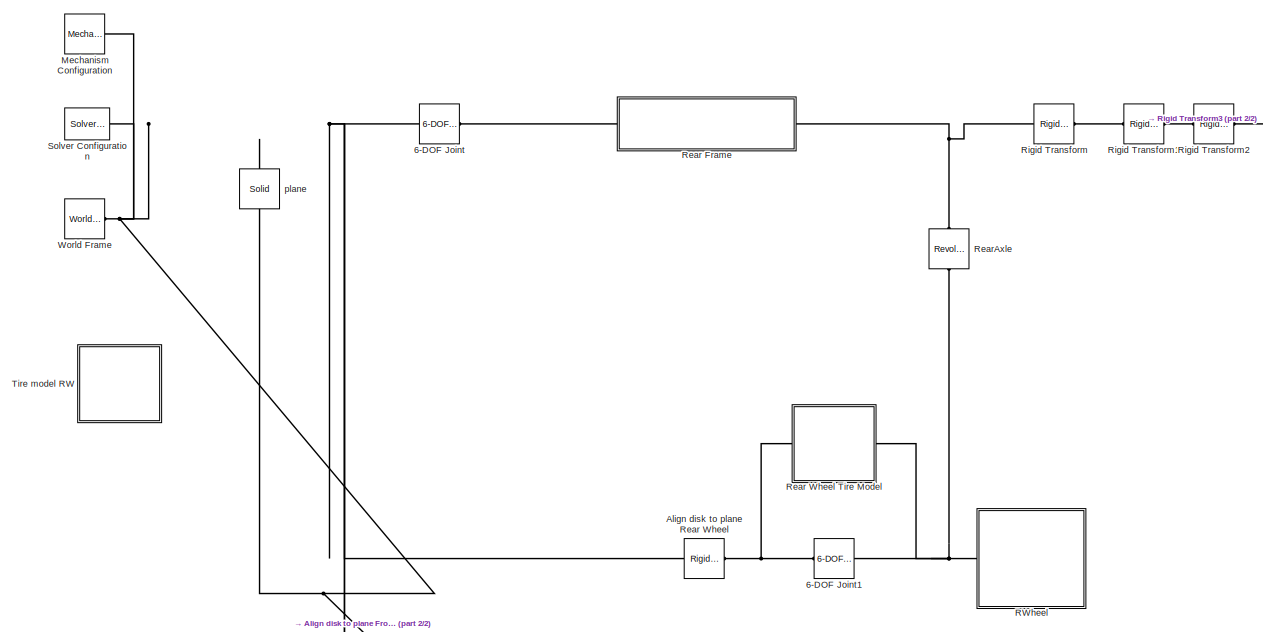
[diagram: root canvas - part 1/2, top center region]
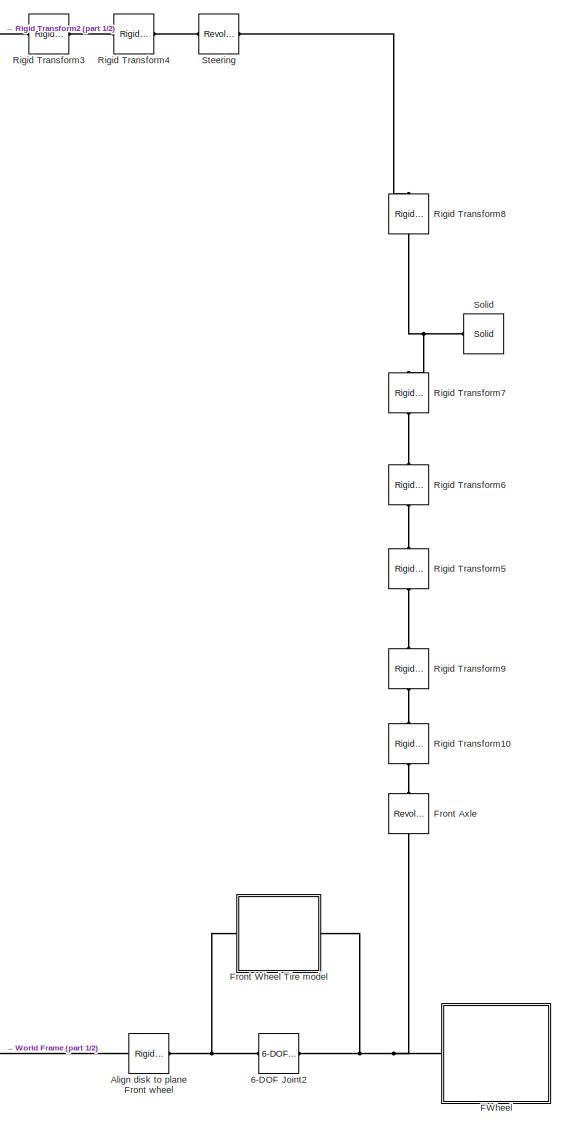
[diagram: root canvas - part 2/2, right side, full height]
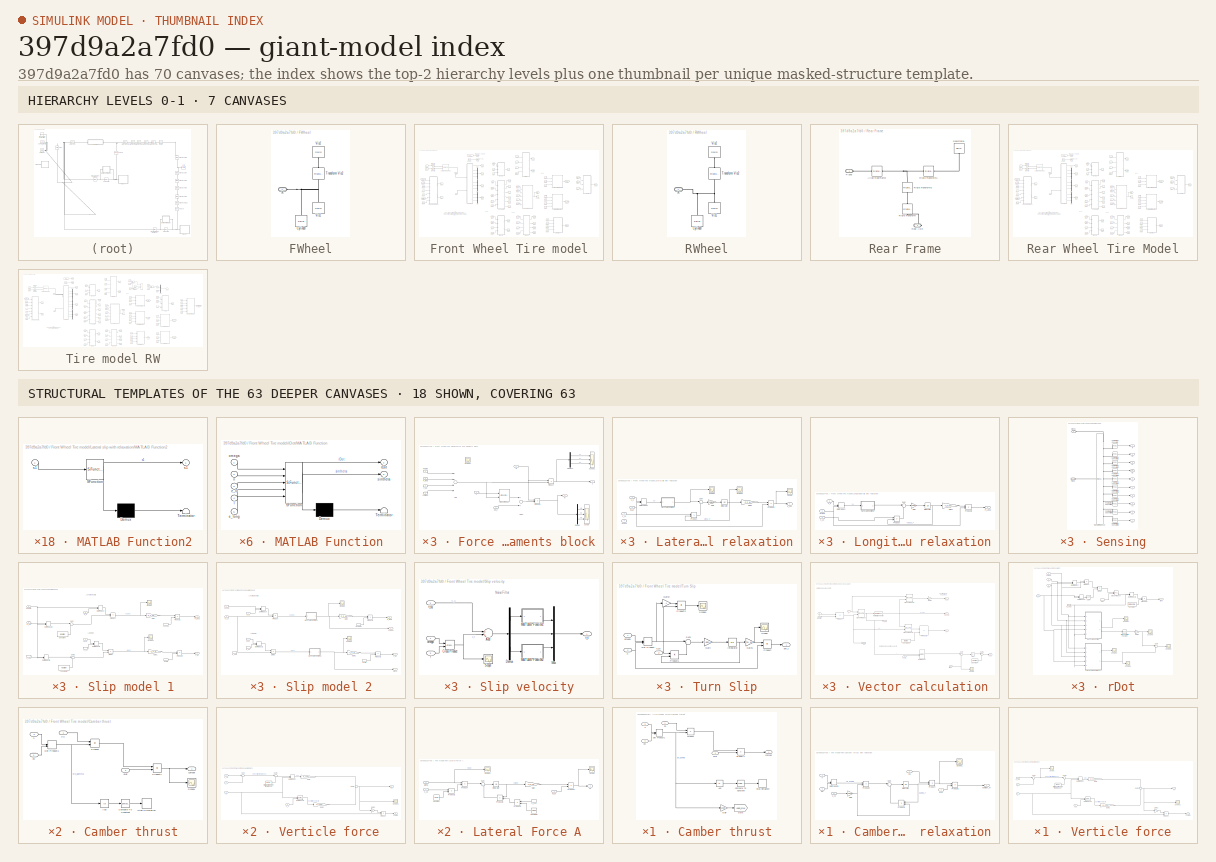
[diagram: thumbnail index - top-2 hierarchy levels (7 canvases) + 18 structural-template representatives of the remaining 63 canvases]
MODEL slx_397d9a2a7fd0
KIND model
CONFIG AbsTol = auto
CONFIG EnableMultiTasking = off
CONFIG FixedStep = auto
CONFIG MaxStep = auto
CONFIG MinStep = auto
CONFIG RelTol = 1e-3
CONFIG SampleTimeConstraint = Unconstrained
CONFIG Solver = VariableStepAuto
CONFIG SolverName = VariableStepAuto
CONFIG StartTime = 0.0
CONFIG StopTime = 10.0
BLOCK [Reference] 6-DOF Joint  REF=sm_lib/Joints/6-DOF Joint
  Ports = [0, 0, 0, 0, 0, 1, 1]
  SourceBlock = sm_lib/Joints/6-DOF Joint
  SourceProductBaseCode = MS
  SourceProductName = Simscape Multibody
  SourceType = 6-DOF Joint
BLOCK [Reference] 6-DOF Joint1  REF=sm_lib/Joints/6-DOF Joint
  Ports = [0, 0, 0, 0, 0, 1, 1]
  SourceBlock = sm_lib/Joints/6-DOF Joint
  SourceProductBaseCode = MS
  SourceProductName = Simscape Multibody
  SourceType = 6-DOF Joint
BLOCK [Reference] 6-DOF Joint2  REF=sm_lib/Joints/6-DOF Joint
  Ports = [0, 0, 0, 0, 0, 1, 1]
  SourceBlock = sm_lib/Joints/6-DOF Joint
  SourceProductBaseCode = MS
  SourceProductName = Simscape Multibody
  SourceType = 6-DOF Joint
BLOCK [Reference] Align disk to plane Front wheel  REF=sm_lib/Frames and
Transforms/Rigid
Transform
  Ports = [0, 0, 0, 0, 0, 1, 1]
  SourceBlock = sm_lib/Frames and\nTransforms/Rigid\nTransform
  SourceProductBaseCode = MS
  SourceProductName = Simscape Multibody
  SourceType = Rigid\nTransform
BLOCK [Reference] Align disk to plane Rear Wheel  REF=sm_lib/Frames and
Transforms/Rigid
Transform
  Ports = [0, 0, 0, 0, 0, 1, 1]
  SourceBlock = sm_lib/Frames and\nTransforms/Rigid\nTransform
  SourceProductBaseCode = MS
  SourceProductName = Simscape Multibody
  SourceType = Rigid\nTransform
BLOCK [SubSystem] FWheel
  AncestorBlock = Parts_Lib/Cylinder
  Ports = [0, 0, 0, 0, 0, 1]
  RequestExecContextInheritance = off
  Tag = CustomStyle
  Variant = off
BLOCK [Reference] FWheel/Cylinder  REF=sm_lib/Body Elements/Solid
  Ports = [0, 0, 0, 0, 0, 0, 1]
  SourceBlock = sm_lib/Body Elements/Solid
  SourceProductBaseCode = MS
  SourceProductName = Simscape Multibody
  SourceType = Solid
BLOCK [PMIOPort] FWheel/R
  Port = 1
  Side = Left
BLOCK [Reference] FWheel/Transform Vis2  REF=sm_lib/Frames and
Transforms/Rigid
Transform
  Ports = [0, 0, 0, 0, 0, 1, 1]
  SourceBlock = sm_lib/Frames and\nTransforms/Rigid\nTransform
  SourceProductBaseCode = MS
  SourceProductName = Simscape Multibody
  SourceType = Rigid\nTransform
BLOCK [Reference] FWheel/Vis1  REF=sm_lib/Body Elements/Solid
  Ports = [0, 0, 0, 0, 0, 0, 1]
  SourceBlock = sm_lib/Body Elements/Solid
  SourceProductBaseCode = MS
  SourceProductName = Simscape Multibody
  SourceType = Solid
BLOCK [Reference] FWheel/Vis2  REF=sm_lib/Body Elements/Solid
  Ports = [0, 0, 0, 0, 0, 0, 1]
  SourceBlock = sm_lib/Body Elements/Solid
  SourceProductBaseCode = MS
  SourceProductName = Simscape Multibody
  SourceType = Solid
BLOCK [Reference] Front Axle  REF=sm_lib/Joints/Revolute Joint
  Ports = [0, 0, 0, 0, 0, 1, 1]
  SourceBlock = sm_lib/Joints/Revolute Joint
  SourceProductBaseCode = MS
  SourceProductName = Simscape Multibody
  SourceType = Revolute Joint
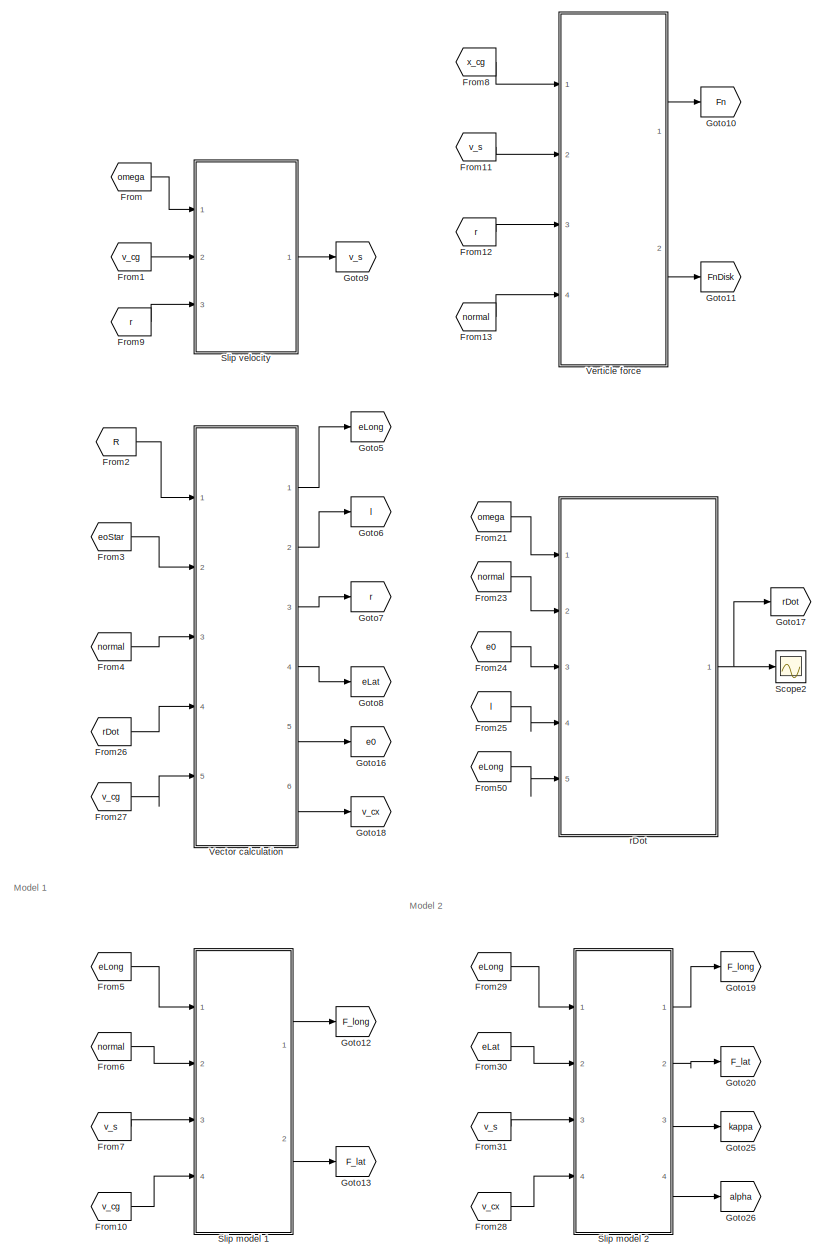
[diagram: Front Wheel Tire model - part 1/3, center side, full height]
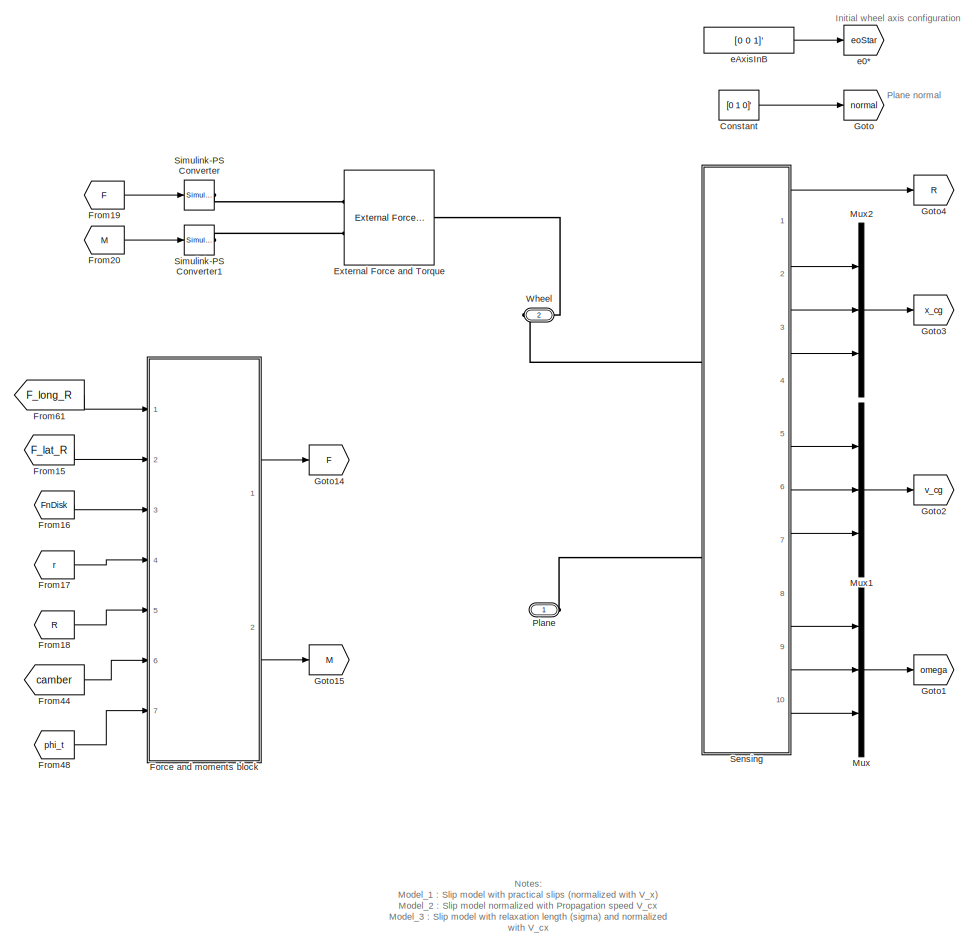
[diagram: Front Wheel Tire model - part 2/3, left side, full height]
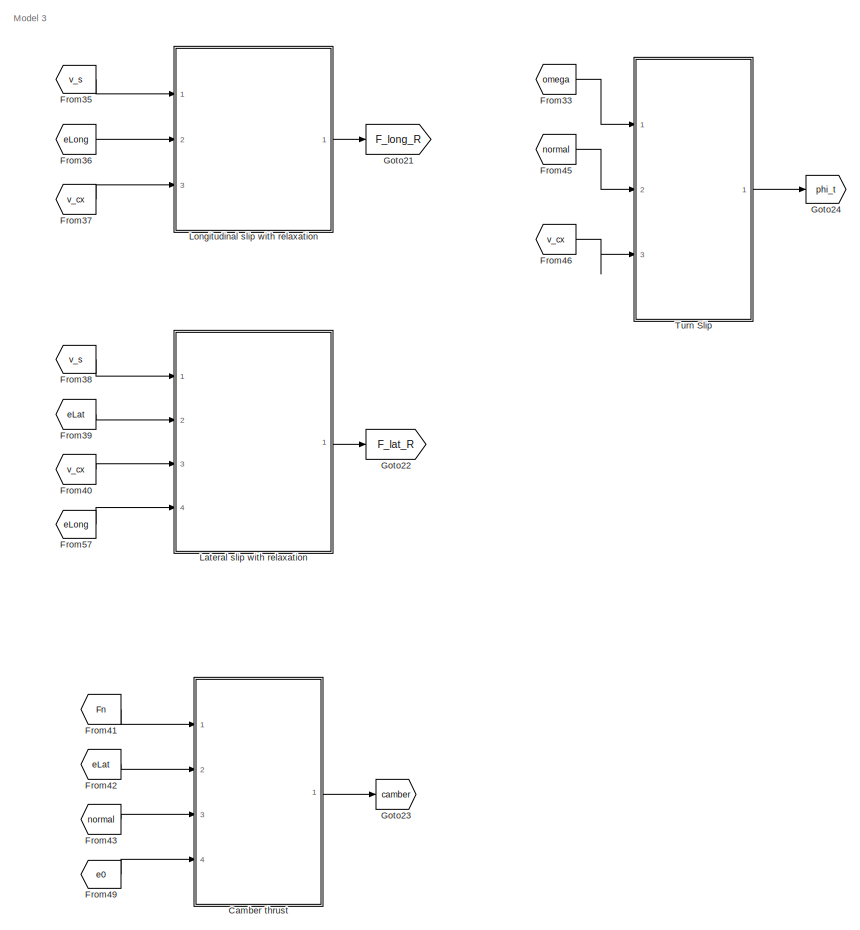
[diagram: Front Wheel Tire model - part 3/3, middle right region]
BLOCK [SubSystem] Front Wheel Tire model
  Ports = [0, 0, 0, 0, 0, 1, 1]
  RequestExecContextInheritance = off
  Variant = off
BLOCK [SubSystem] Front Wheel Tire model/Camber thrust
  Ports = [4, 1]
  RequestExecContextInheritance = off
  Variant = off
BLOCK [Abs] Front Wheel Tire model/Camber thrust/Abs
  SaturateOnIntegerOverflow = off
  ZeroCross = off
BLOCK [Reference] Front Wheel Tire model/Camber thrust/Compare To Constant  REF=simulink/Logic and Bit
Operations/Compare
To Constant
  Ports = [1, 1]
  SourceBlock = simulink/Logic and Bit\nOperations/Compare\nTo Constant
  SourceProductBaseCode = SL
  SourceProductName = Simulink
  SourceType = Compare To Constant
BLOCK [DotProduct] Front Wheel Tire model/Camber thrust/Dot Product1
  OutDataTypeStr = Inherit: Inherit via internal rule
BLOCK [Inport] Front Wheel Tire model/Camber thrust/Fn
  IconDisplay = Port number
BLOCK [Product] Front Wheel Tire model/Camber thrust/Product
  InputSameDT = off
  OutDataTypeStr = Inherit: Inherit via internal rule
  Ports = [2, 1]
  RndMeth = Floor
  SaturateOnIntegerOverflow = off
BLOCK [Product] Front Wheel Tire model/Camber thrust/Product1
  InputSameDT = off
  OutDataTypeStr = Inherit: Inherit via internal rule
  Ports = [2, 1]
  RndMeth = Floor
  SaturateOnIntegerOverflow = off
BLOCK [Scope] Front Wheel Tire model/Camber thrust/Scope1
  NumInputPorts = 1
  Ports = [1]
  ScopeSpecificationString = Simulink.scopes.TimeScopeBlockCfg('CurrentConfiguration', extmgr.ConfigurationSet(extmgr.Configuration('Core','General UI',true),extmgr.Configuration('Core','Source UI',true),extmgr.Configuration('Sources','WiredSimulink',true,'DataLoggingVariableName','ScopeData3'),extmgr.Configuration('Visuals','Time Domain',true,'SerializedDisplays',{struct('MinYLimReal','-25.43511','MaxYLimReal','9.20191','YLa...<+1499ch>
BLOCK [Stop] Front Wheel Tire model/Camber thrust/Stop Simulation
BLOCK [Outport] Front Wheel Tire model/Camber thrust/camber
  IconDisplay = Port number
BLOCK [Inport] Front Wheel Tire model/Camber thrust/e0
  IconDisplay = Port number
  Port = 4
BLOCK [Inport] Front Wheel Tire model/Camber thrust/eLat
  IconDisplay = Port number
  Port = 2
BLOCK [Inport] Front Wheel Tire model/Camber thrust/n
  IconDisplay = Port number
  Port = 3
BLOCK [Constant] Front Wheel Tire model/Constant
  Value = [0 1 0]'
BLOCK [Reference] Front Wheel Tire model/External Force and Torque  REF=sm_lib/Forces and
Torques/External Force
and Torque
  Ports = [0, 0, 0, 0, 0, 2, 1]
  SourceBlock = sm_lib/Forces and\nTorques/External Force\nand Torque
  SourceProductBaseCode = MS
  SourceProductName = Simscape Multibody
  SourceType = External Force\nand Torque
BLOCK [SubSystem] Front Wheel Tire model/Force and moments block
  Ports = [7, 2]
  RequestExecContextInheritance = off
  Variant = off
BLOCK [Sum] Front Wheel Tire model/Force and moments block/Add
  InputSameDT = off
  Inputs = 4
  OutDataTypeStr = Inherit: Inherit via internal rule
  Ports = [4, 1]
  SaturateOnIntegerOverflow = off
BLOCK [Sum] Front Wheel Tire model/Force and moments block/Add1
  InputSameDT = off
  OutDataTypeStr = Inherit: Inherit via internal rule
  Ports = [2, 1]
  SaturateOnIntegerOverflow = off
BLOCK [Reference] Front Wheel Tire model/Force and moments block/Cross Product  REF=vrlib/Utilities/Cross Product
  Ports = [2, 1]
  SourceBlock = vrlib/Utilities/Cross Product
  SourceProductBaseCode = VR
  SourceProductName = Simulink 3D Animation
  SourceType = Cross Product
BLOCK [Demux] Front Wheel Tire model/Force and moments block/Demux
  DisplayOption = bar
  Outputs = 3
  Ports = [1, 3]
BLOCK [Demux] Front Wheel Tire model/Force and moments block/Demux1
  DisplayOption = bar
  Outputs = 3
  Ports = [1, 3]
BLOCK [Outport] Front Wheel Tire model/Force and moments block/F
  IconDisplay = Port number
BLOCK [Inport] Front Wheel Tire model/Force and moments block/F_lat
  IconDisplay = Port number
  Port = 2
BLOCK [Inport] Front Wheel Tire model/Force and moments block/F_long
  IconDisplay = Port number
BLOCK [Inport] Front Wheel Tire model/Force and moments block/FnDisk
  IconDisplay = Port number
  Port = 3
BLOCK [Outport] Front Wheel Tire model/Force and moments block/M
  IconDisplay = Port number
  Port = 2
BLOCK [Product] Front Wheel Tire model/Force and moments block/Product
  InputSameDT = off
  Inputs = /*
  Multiplication = Matrix(*)
  OutDataTypeStr = Inherit: Inherit via internal rule
  Ports = [2, 1]
  RndMeth = Floor
  SaturateOnIntegerOverflow = off
BLOCK [Product] Front Wheel Tire model/Force and moments block/Product1
  InputSameDT = off
  Inputs = /*
  Multiplication = Matrix(*)
  OutDataTypeStr = Inherit: Inherit via internal rule
  Ports = [2, 1]
  RndMeth = Floor
  SaturateOnIntegerOverflow = off
BLOCK [Inport] Front Wheel Tire model/Force and moments block/R
  IconDisplay = Port number
  Port = 5
BLOCK [Scope] Front Wheel Tire model/Force and moments block/Scope
  NumInputPorts = 3
  Ports = [3]
  ScopeSpecificationString = Simulink.scopes.TimeScopeBlockCfg('CurrentConfiguration', extmgr.ConfigurationSet(extmgr.Configuration('Core','General UI',true),extmgr.Configuration('Core','Source UI',true),extmgr.Configuration('Sources','WiredSimulink',true,'DataLoggingVariableName','ScopeData5'),extmgr.Configuration('Visuals','Time Domain',true,'SerializedDisplays',{struct('MinYLimReal','-42.28617','MaxYLimReal','22.96915','YL...<+2808ch>  <repeated x3 — deduplicated; at blocks: Scope>
BLOCK [Scope] Front Wheel Tire model/Force and moments block/Scope1
  NumInputPorts = 3
  Ports = [3]
  ScopeSpecificationString = Simulink.scopes.TimeScopeBlockCfg('CurrentConfiguration', extmgr.ConfigurationSet(extmgr.Configuration('Core','General UI',true),extmgr.Configuration('Core','Source UI',true),extmgr.Configuration('Sources','WiredSimulink',true,'DataLoggingVariableName','ScopeData4'),extmgr.Configuration('Visuals','Time Domain',true,'SerializedDisplays',{struct('MinYLimReal','-1.00000','MaxYLimReal','1.00000','YLab...<+2803ch>
BLOCK [Scope] Front Wheel Tire model/Force and moments block/Scope2
  NumInputPorts = 1
  Ports = [1]
  ScopeSpecificationString = Simulink.scopes.TimeScopeBlockCfg('CurrentConfiguration', extmgr.ConfigurationSet(extmgr.Configuration('Core','General UI',true),extmgr.Configuration('Core','Source UI',true),extmgr.Configuration('Sources','WiredSimulink',true,'DataLoggingVariableName','ScopeData2'),extmgr.Configuration('Visuals','Time Domain',true,'SerializedDisplays',{struct('MinYLimReal','13.13469','MaxYLimReal','27.22852','YLa...<+1474ch>  <repeated x3 — deduplicated; at blocks: Scope2>
BLOCK [Inport] Front Wheel Tire model/Force and moments block/camber
  IconDisplay = Port number
  Port = 6
BLOCK [Inport] Front Wheel Tire model/Force and moments block/phi_t
  IconDisplay = Port number
  Port = 7
BLOCK [Inport] Front Wheel Tire model/Force and moments block/r
  IconDisplay = Port number
  Port = 4
BLOCK [From] Front Wheel Tire model/From
  GotoTag = omega
BLOCK [From] Front Wheel Tire model/From1
  GotoTag = v_cg
BLOCK [From] Front Wheel Tire model/From10
  Commented = on
  GotoTag = v_cg
BLOCK [From] Front Wheel Tire model/From11
  GotoTag = v_s
BLOCK [From] Front Wheel Tire model/From12
  GotoTag = r
BLOCK [From] Front Wheel Tire model/From13
  GotoTag = normal
BLOCK [From] Front Wheel Tire model/From15
  GotoTag = F_lat_R
BLOCK [From] Front Wheel Tire model/From16
  GotoTag = FnDisk
BLOCK [From] Front Wheel Tire model/From17
  GotoTag = r
BLOCK [From] Front Wheel Tire model/From18
  GotoTag = R
BLOCK [From] Front Wheel Tire model/From19
  GotoTag = F
BLOCK [From] Front Wheel Tire model/From2
  GotoTag = R
BLOCK [From] Front Wheel Tire model/From20
  GotoTag = M
BLOCK [From] Front Wheel Tire model/From21
  GotoTag = omega
BLOCK [From] Front Wheel Tire model/From23
  GotoTag = normal
BLOCK [From] Front Wheel Tire model/From24
  GotoTag = e0
BLOCK [From] Front Wheel Tire model/From25
  GotoTag = l
BLOCK [From] Front Wheel Tire model/From26
  GotoTag = rDot
BLOCK [From] Front Wheel Tire model/From27
  GotoTag = v_cg
BLOCK [From] Front Wheel Tire model/From28
  GotoTag = v_cx
BLOCK [From] Front Wheel Tire model/From29
  GotoTag = eLong
BLOCK [From] Front Wheel Tire model/From3
  GotoTag = eoStar
BLOCK [From] Front Wheel Tire model/From30
  GotoTag = eLat
BLOCK [From] Front Wheel Tire model/From31
  GotoTag = v_s
BLOCK [From] Front Wheel Tire model/From33
  GotoTag = omega
BLOCK [From] Front Wheel Tire model/From35
  GotoTag = v_s
BLOCK [From] Front Wheel Tire model/From36
  GotoTag = eLong
BLOCK [From] Front Wheel Tire model/From37
  GotoTag = v_cx
BLOCK [From] Front Wheel Tire model/From38
  GotoTag = v_s
BLOCK [From] Front Wheel Tire model/From39
  GotoTag = eLat
BLOCK [From] Front Wheel Tire model/From4
  GotoTag = normal
BLOCK [From] Front Wheel Tire model/From40
  GotoTag = v_cx
BLOCK [From] Front Wheel Tire model/From41
  GotoTag = Fn
BLOCK [From] Front Wheel Tire model/From42
  GotoTag = eLat
BLOCK [From] Front Wheel Tire model/From43
  GotoTag = normal
BLOCK [From] Front Wheel Tire model/From44
  GotoTag = camber
BLOCK [From] Front Wheel Tire model/From45
  GotoTag = normal
BLOCK [From] Front Wheel Tire model/From46
  GotoTag = v_cx
BLOCK [From] Front Wheel Tire model/From48
  GotoTag = phi_t
BLOCK [From] Front Wheel Tire model/From49
  GotoTag = e0
BLOCK [From] Front Wheel Tire model/From5
  Commented = on
  GotoTag = eLong
BLOCK [From] Front Wheel Tire model/From50
  GotoTag = eLong
BLOCK [From] Front Wheel Tire model/From57
  GotoTag = eLong
BLOCK [From] Front Wheel Tire model/From6
  Commented = on
  GotoTag = normal
BLOCK [From] Front Wheel Tire model/From61
  GotoTag = F_long_R
BLOCK [From] Front Wheel Tire model/From7
  Commented = on
  GotoTag = v_s
BLOCK [From] Front Wheel Tire model/From8
  GotoTag = x_cg
BLOCK [From] Front Wheel Tire model/From9
  GotoTag = r
BLOCK [Goto] Front Wheel Tire model/Goto
  GotoTag = normal
BLOCK [Goto] Front Wheel Tire model/Goto1
  GotoTag = omega
BLOCK [Goto] Front Wheel Tire model/Goto10
  GotoTag = Fn
BLOCK [Goto] Front Wheel Tire model/Goto11
  GotoTag = FnDisk
BLOCK [Goto] Front Wheel Tire model/Goto12
  Commented = on
  GotoTag = F_long
BLOCK [Goto] Front Wheel Tire model/Goto13
  Commented = on
  GotoTag = F_lat
BLOCK [Goto] Front Wheel Tire model/Goto14
  GotoTag = F
BLOCK [Goto] Front Wheel Tire model/Goto15
  GotoTag = M
BLOCK [Goto] Front Wheel Tire model/Goto16
  GotoTag = e0
BLOCK [Goto] Front Wheel Tire model/Goto17
  GotoTag = rDot
BLOCK [Goto] Front Wheel Tire model/Goto18
  GotoTag = v_cx
BLOCK [Goto] Front Wheel Tire model/Goto19
  GotoTag = F_long
BLOCK [Goto] Front Wheel Tire model/Goto2
  GotoTag = v_cg
BLOCK [Goto] Front Wheel Tire model/Goto20
  GotoTag = F_lat
BLOCK [Goto] Front Wheel Tire model/Goto21
  GotoTag = F_long_R
BLOCK [Goto] Front Wheel Tire model/Goto22
  GotoTag = F_lat_R
BLOCK [Goto] Front Wheel Tire model/Goto23
  GotoTag = camber
BLOCK [Goto] Front Wheel Tire model/Goto24
  GotoTag = phi_t
BLOCK [Goto] Front Wheel Tire model/Goto25
  GotoTag = kappa
BLOCK [Goto] Front Wheel Tire model/Goto26
  GotoTag = alpha
BLOCK [Goto] Front Wheel Tire model/Goto3
  GotoTag = x_cg
BLOCK [Goto] Front Wheel Tire model/Goto4
  GotoTag = R
BLOCK [Goto] Front Wheel Tire model/Goto5
  GotoTag = eLong
BLOCK [Goto] Front Wheel Tire model/Goto6
  GotoTag = l
BLOCK [Goto] Front Wheel Tire model/Goto7
  GotoTag = r
BLOCK [Goto] Front Wheel Tire model/Goto8
  GotoTag = eLat
BLOCK [Goto] Front Wheel Tire model/Goto9
  GotoTag = v_s
BLOCK [SubSystem] Front Wheel Tire model/Lateral slip with relaxation
  Ports = [4, 1]
  RequestExecContextInheritance = off
  Variant = off
BLOCK [DotProduct] Front Wheel Tire model/Lateral slip with relaxation/Dot Product
  OutDataTypeStr = Inherit: Inherit via internal rule
BLOCK [Outport] Front Wheel Tire model/Lateral slip with relaxation/F_Lat
  IconDisplay = Port number
BLOCK [Gain] Front Wheel Tire model/Lateral slip with relaxation/Gain
  Gain = 1/sigma
  OutDataTypeStr = Inherit: Inherit via internal rule
  ParamDataTypeStr = Inherit: Inherit via internal rule
  SaturateOnIntegerOverflow = off
BLOCK [Gain] Front Wheel Tire model/Lateral slip with relaxation/Gain1
  Gain = -C_F_alpha
  OutDataTypeStr = Inherit: Inherit via internal rule
  ParamDataTypeStr = Inherit: Inherit via internal rule
  SaturateOnIntegerOverflow = off
BLOCK [Integrator] Front Wheel Tire model/Lateral slip with relaxation/Integrator
  Ports = [1, 1]
BLOCK [SubSystem] Front Wheel Tire model/Lateral slip with relaxation/MATLAB Function2
  Commented = through
  ErrorFcn = Stateflow.Translate.translate
  PermitHierarchicalResolution = ExplicitOnly
  Ports = [1, 1]
  RequestExecContextInheritance = off
  SFBlockType = MATLAB Function
  TreatAsAtomicUnit = on
  Variant = off
BLOCK [Demux] Front Wheel Tire model/Lateral slip with relaxation/MATLAB Function2/ Demux 
  Outputs = 1
  Ports = [1, 1]
BLOCK [S-Function] Front Wheel Tire model/Lateral slip with relaxation/MATLAB Function2/ SFunction 
  EnableBusSupport = on
  FunctionName = sf_sfun
  PortCounts = [1 2]
  Ports = [1, 2]
  SFcnIsStateOwnerBlock = off
  SFunctionDeploymentMode = off
  Tag = Stateflow S-Function UncontrolledBike 1
BLOCK [Terminator] Front Wheel Tire model/Lateral slip with relaxation/MATLAB Function2/ Terminator 
BLOCK [Outport] Front Wheel Tire model/Lateral slip with relaxation/MATLAB Function2/s1
  IconDisplay = Port number
BLOCK [Inport] Front Wheel Tire model/Lateral slip with relaxation/MATLAB Function2/s1 
  IconDisplay = Port number
BLOCK [Product] Front Wheel Tire model/Lateral slip with relaxation/Product
  InputSameDT = off
  OutDataTypeStr = Inherit: Inherit via internal rule
  Ports = [2, 1]
  RndMeth = Floor
  SaturateOnIntegerOverflow = off
BLOCK [Product] Front Wheel Tire model/Lateral slip with relaxation/Product1
  InputSameDT = off
  OutDataTypeStr = Inherit: Inherit via internal rule
  Ports = [2, 1]
  RndMeth = Floor
  SaturateOnIntegerOverflow = off
BLOCK [Scope] Front Wheel Tire model/Lateral slip with relaxation/Scope
  NumInputPorts = 1
  Ports = [1]
  ScopeSpecificationString = Simulink.scopes.TimeScopeBlockCfg('CurrentConfiguration', extmgr.ConfigurationSet(extmgr.Configuration('Core','General UI',true),extmgr.Configuration('Core','Source UI',true),extmgr.Configuration('Sources','WiredSimulink',true,'DataLoggingVariableName','ScopeData4'),extmgr.Configuration('Visuals','Time Domain',true,'SerializedDisplays',{struct('MinYLimReal','-8.38765','MaxYLimReal','7.69064','YLab...<+1493ch>  <repeated x3 — deduplicated; at blocks: Scope>
BLOCK [Scope] Front Wheel Tire model/Lateral slip with relaxation/Scope1
  NumInputPorts = 1
  Ports = [1]
  ScopeSpecificationString = Simulink.scopes.TimeScopeBlockCfg('CurrentConfiguration', extmgr.ConfigurationSet(extmgr.Configuration('Core','General UI',true),extmgr.Configuration('Core','Source UI',true),extmgr.Configuration('Sources','WiredSimulink',true,'DataLoggingVariableName','ScopeData3'),extmgr.Configuration('Visuals','Time Domain',true,'SerializedDisplays',{struct('MinYLimReal','-0.00076','MaxYLimReal','0.00071','YLab...<+1475ch>  <repeated x3 — deduplicated; at blocks: Scope1>
BLOCK [Scope] Front Wheel Tire model/Lateral slip with relaxation/Scope2
  NumInputPorts = 1
  Ports = [1]
  ScopeSpecificationString = Simulink.scopes.TimeScopeBlockCfg('CurrentConfiguration', extmgr.ConfigurationSet(extmgr.Configuration('Core','General UI',true),extmgr.Configuration('Core','Source UI',true),extmgr.Configuration('Sources','WiredSimulink',true,'DataLoggingVariableName','ScopeData2'),extmgr.Configuration('Visuals','Time Domain',true,'SerializedDisplays',{struct('MinYLimReal','-0.00018','MaxYLimReal','0.00002','YLab...<+1419ch>  <repeated x3 — deduplicated; at blocks: Scope2>
BLOCK [Sum] Front Wheel Tire model/Lateral slip with relaxation/Sum
  IconShape = round
  InputSameDT = off
  Inputs = |+-
  OutDataTypeStr = Inherit: Inherit via internal rule
  Ports = [2, 1]
  SaturateOnIntegerOverflow = off
BLOCK [Inport] Front Wheel Tire model/Lateral slip with relaxation/eLat
  IconDisplay = Port number
  Port = 2
BLOCK [Inport] Front Wheel Tire model/Lateral slip with relaxation/eLong
  IconDisplay = Port number
  Port = 4
BLOCK [Inport] Front Wheel Tire model/Lateral slip with relaxation/v_cx
  IconDisplay = Port number
  Port = 3
BLOCK [Inport] Front Wheel Tire model/Lateral slip with relaxation/v_s
  IconDisplay = Port number
BLOCK [SubSystem] Front Wheel Tire model/Longitudinal slip with relaxation
  Ports = [3, 1]
  RequestExecContextInheritance = off
  Variant = off
BLOCK [DotProduct] Front Wheel Tire model/Longitudinal slip with relaxation/Dot Product
  OutDataTypeStr = Inherit: Inherit via internal rule
BLOCK [Outport] Front Wheel Tire model/Longitudinal slip with relaxation/F_Long
  IconDisplay = Port number
BLOCK [Gain] Front Wheel Tire model/Longitudinal slip with relaxation/Gain
  Gain = 1/sigma
  OutDataTypeStr = Inherit: Inherit via internal rule
  ParamDataTypeStr = Inherit: Inherit via internal rule
  SaturateOnIntegerOverflow = off
BLOCK [Gain] Front Wheel Tire model/Longitudinal slip with relaxation/Gain1
  Gain = -C_F_kappa
  OutDataTypeStr = Inherit: Inherit via internal rule
  ParamDataTypeStr = Inherit: Inherit via internal rule
  SaturateOnIntegerOverflow = off
BLOCK [Integrator] Front Wheel Tire model/Longitudinal slip with relaxation/Integrator
  Ports = [1, 1]
BLOCK [SubSystem] Front Wheel Tire model/Longitudinal slip with relaxation/MATLAB Function2
  Commented = through
  ErrorFcn = Stateflow.Translate.translate
  PermitHierarchicalResolution = ExplicitOnly
  Ports = [1, 1]
  RequestExecContextInheritance = off
  SFBlockType = MATLAB Function
  TreatAsAtomicUnit = on
  Variant = off
BLOCK [Demux] Front Wheel Tire model/Longitudinal slip with relaxation/MATLAB Function2/ Demux 
  Outputs = 1
  Ports = [1, 1]
BLOCK [S-Function] Front Wheel Tire model/Longitudinal slip with relaxation/MATLAB Function2/ SFunction 
  EnableBusSupport = on
  FunctionName = sf_sfun
  PortCounts = [1 2]
  Ports = [1, 2]
  SFcnIsStateOwnerBlock = off
  SFunctionDeploymentMode = off
  Tag = Stateflow S-Function UncontrolledBike 2
BLOCK [Terminator] Front Wheel Tire model/Longitudinal slip with relaxation/MATLAB Function2/ Terminator 
BLOCK [Outport] Front Wheel Tire model/Longitudinal slip with relaxation/MATLAB Function2/s1
  IconDisplay = Port number
BLOCK [Inport] Front Wheel Tire model/Longitudinal slip with relaxation/MATLAB Function2/s1 
  IconDisplay = Port number
BLOCK [Product] Front Wheel Tire model/Longitudinal slip with relaxation/Product
  InputSameDT = off
  OutDataTypeStr = Inherit: Inherit via internal rule
  Ports = [2, 1]
  RndMeth = Floor
  SaturateOnIntegerOverflow = off
BLOCK [Product] Front Wheel Tire model/Longitudinal slip with relaxation/Product1
  InputSameDT = off
  OutDataTypeStr = Inherit: Inherit via internal rule
  Ports = [2, 1]
  RndMeth = Floor
  SaturateOnIntegerOverflow = off
BLOCK [Sum] Front Wheel Tire model/Longitudinal slip with relaxation/Sum
  IconShape = round
  InputSameDT = off
  Inputs = |+-
  OutDataTypeStr = Inherit: Inherit via internal rule
  Ports = [2, 1]
  SaturateOnIntegerOverflow = off
BLOCK [Inport] Front Wheel Tire model/Longitudinal slip with relaxation/eLong
  IconDisplay = Port number
  Port = 2
BLOCK [Inport] Front Wheel Tire model/Longitudinal slip with relaxation/v_cx
  IconDisplay = Port number
  Port = 3
BLOCK [Inport] Front Wheel Tire model/Longitudinal slip with relaxation/v_s
  IconDisplay = Port number
BLOCK [Mux] Front Wheel Tire model/Mux
  DisplayOption = bar
  Inputs = 3
  Ports = [3, 1]
BLOCK [Mux] Front Wheel Tire model/Mux1
  DisplayOption = bar
  Inputs = 3
  Ports = [3, 1]
BLOCK [Mux] Front Wheel Tire model/Mux2
  DisplayOption = bar
  Inputs = 3
  Ports = [3, 1]
BLOCK [PMIOPort] Front Wheel Tire model/Plane
  Port = 1
  Side = Left
BLOCK [Scope] Front Wheel Tire model/Scope2
  NumInputPorts = 1
  Ports = [1]
  ScopeSpecificationString = Simulink.scopes.TimeScopeBlockCfg('CurrentConfiguration', extmgr.ConfigurationSet(extmgr.Configuration('Core','General UI',true),extmgr.Configuration('Core','Source UI',true),extmgr.Configuration('Sources','WiredSimulink',true,'DataLoggingVariableName','ScopeData5'),extmgr.Configuration('Visuals','Time Domain',true,'SerializedDisplays',{struct('MinYLimReal','-14.12789','MaxYLimReal','1.56977','YLa...<+1367ch>  <repeated x3 — deduplicated; at blocks: Scope2>
BLOCK [SubSystem] Front Wheel Tire model/Sensing
  Ports = [0, 10, 0, 0, 0, 2]
  RequestExecContextInheritance = off
  Variant = off
BLOCK [Reference] Front Wheel Tire model/Sensing/PS-Simulink Converter  REF=nesl_utility/PS-Simulink
Converter
  Ports = [0, 1, 0, 0, 0, 1]
  SourceBlock = nesl_utility/PS-Simulink\nConverter
  SourceProductBaseCode = SS
  SourceProductName = Simscape
  SourceType = PS-Simulink\nConverter
BLOCK [Reference] Front Wheel Tire model/Sensing/PS-Simulink Converter1  REF=nesl_utility/PS-Simulink
Converter
  Ports = [0, 1, 0, 0, 0, 1]
  SourceBlock = nesl_utility/PS-Simulink\nConverter
  SourceProductBaseCode = SS
  SourceProductName = Simscape
  SourceType = PS-Simulink\nConverter
BLOCK [Reference] Front Wheel Tire model/Sensing/PS-Simulink Converter2  REF=nesl_utility/PS-Simulink
Converter
  Ports = [0, 1, 0, 0, 0, 1]
  SourceBlock = nesl_utility/PS-Simulink\nConverter
  SourceProductBaseCode = SS
  SourceProductName = Simscape
  SourceType = PS-Simulink\nConverter
BLOCK [Reference] Front Wheel Tire model/Sensing/PS-Simulink Converter3  REF=nesl_utility/PS-Simulink
Converter
  Ports = [0, 1, 0, 0, 0, 1]
  SourceBlock = nesl_utility/PS-Simulink\nConverter
  SourceProductBaseCode = SS
  SourceProductName = Simscape
  SourceType = PS-Simulink\nConverter
BLOCK [Reference] Front Wheel Tire model/Sensing/PS-Simulink Converter4  REF=nesl_utility/PS-Simulink
Converter
  Ports = [0, 1, 0, 0, 0, 1]
  SourceBlock = nesl_utility/PS-Simulink\nConverter
  SourceProductBaseCode = SS
  SourceProductName = Simscape
  SourceType = PS-Simulink\nConverter
BLOCK [Reference] Front Wheel Tire model/Sensing/PS-Simulink Converter5  REF=nesl_utility/PS-Simulink
Converter
  Ports = [0, 1, 0, 0, 0, 1]
  SourceBlock = nesl_utility/PS-Simulink\nConverter
  SourceProductBaseCode = SS
  SourceProductName = Simscape
  SourceType = PS-Simulink\nConverter
BLOCK [Reference] Front Wheel Tire model/Sensing/PS-Simulink Converter6  REF=nesl_utility/PS-Simulink
Converter
  Ports = [0, 1, 0, 0, 0, 1]
  SourceBlock = nesl_utility/PS-Simulink\nConverter
  SourceProductBaseCode = SS
  SourceProductName = Simscape
  SourceType = PS-Simulink\nConverter
BLOCK [Reference] Front Wheel Tire model/Sensing/PS-Simulink Converter7  REF=nesl_utility/PS-Simulink
Converter
  Ports = [0, 1, 0, 0, 0, 1]
  SourceBlock = nesl_utility/PS-Simulink\nConverter
  SourceProductBaseCode = SS
  SourceProductName = Simscape
  SourceType = PS-Simulink\nConverter
BLOCK [Reference] Front Wheel Tire model/Sensing/PS-Simulink Converter8  REF=nesl_utility/PS-Simulink
Converter
  Ports = [0, 1, 0, 0, 0, 1]
  SourceBlock = nesl_utility/PS-Simulink\nConverter
  SourceProductBaseCode = SS
  SourceProductName = Simscape
  SourceType = PS-Simulink\nConverter
BLOCK [Reference] Front Wheel Tire model/Sensing/PS-Simulink Converter9  REF=nesl_utility/PS-Simulink
Converter
  Ports = [0, 1, 0, 0, 0, 1]
  SourceBlock = nesl_utility/PS-Simulink\nConverter
  SourceProductBaseCode = SS
  SourceProductName = Simscape
  SourceType = PS-Simulink\nConverter
BLOCK [PMIOPort] Front Wheel Tire model/Sensing/Plane
  Port = 2
  Side = Left
BLOCK [Outport] Front Wheel Tire model/Sensing/R
  IconDisplay = Port number
BLOCK [Reference] Front Wheel Tire model/Sensing/Transform Sensor  REF=sm_lib/Frames and
Transforms/Transform
Sensor
  Ports = [0, 0, 0, 0, 0, 1, 11]
  SourceBlock = sm_lib/Frames and\nTransforms/Transform\nSensor
  SourceProductBaseCode = MS
  SourceProductName = Simscape Multibody
  SourceType = Transform\nSensor
BLOCK [PMIOPort] Front Wheel Tire model/Sensing/Wheel
  Port = 1
  Side = Left
BLOCK [Outport] Front Wheel Tire model/Sensing/vx
  IconDisplay = Port number
  Port = 5
BLOCK [Outport] Front Wheel Tire model/Sensing/vy
  IconDisplay = Port number
  Port = 6
BLOCK [Outport] Front Wheel Tire model/Sensing/vz
  IconDisplay = Port number
  Port = 7
BLOCK [Outport] Front Wheel Tire model/Sensing/wx
  IconDisplay = Port number
  Port = 8
BLOCK [Outport] Front Wheel Tire model/Sensing/wy
  IconDisplay = Port number
  Port = 9
BLOCK [Outport] Front Wheel Tire model/Sensing/wz
  IconDisplay = Port number
  Port = 10
BLOCK [Outport] Front Wheel Tire model/Sensing/x
  IconDisplay = Port number
  Port = 2
BLOCK [Outport] Front Wheel Tire model/Sensing/y
  IconDisplay = Port number
  Port = 3
BLOCK [Outport] Front Wheel Tire model/Sensing/z
  IconDisplay = Port number
  Port = 4
BLOCK [Reference] Front Wheel Tire model/Simulink-PS Converter  REF=nesl_utility/Simulink-PS
Converter
  Ports = [1, 0, 0, 0, 0, 0, 1]
  SourceBlock = nesl_utility/Simulink-PS\nConverter
  SourceProductBaseCode = SS
  SourceProductName = Simscape
  SourceType = Simulink-PS\nConverter
BLOCK [Reference] Front Wheel Tire model/Simulink-PS Converter1  REF=nesl_utility/Simulink-PS
Converter
  Ports = [1, 0, 0, 0, 0, 0, 1]
  SourceBlock = nesl_utility/Simulink-PS\nConverter
  SourceProductBaseCode = SS
  SourceProductName = Simscape
  SourceType = Simulink-PS\nConverter
BLOCK [SubSystem] Front Wheel Tire model/Slip model 1
  Commented = on
  Ports = [4, 2]
  RequestExecContextInheritance = off
  Variant = off
BLOCK [Constant] Front Wheel Tire model/Slip model 1/Constant
  Value = epsilon
BLOCK [Constant] Front Wheel Tire model/Slip model 1/Constant1
  Value = epsilon
BLOCK [Product] Front Wheel Tire model/Slip model 1/Divide
  InputSameDT = off
  Inputs = */
  OutDataTypeStr = Inherit: Inherit via internal rule
  Ports = [2, 1]
  RndMeth = Floor
  SaturateOnIntegerOverflow = off
BLOCK [DotProduct] Front Wheel Tire model/Slip model 1/Dot Product
  OutDataTypeStr = Inherit: Inherit via internal rule
BLOCK [DotProduct] Front Wheel Tire model/Slip model 1/Dot Product1
  OutDataTypeStr = Inherit: Inherit via internal rule
BLOCK [DotProduct] Front Wheel Tire model/Slip model 1/Dot Product2
  OutDataTypeStr = Inherit: Inherit via internal rule
BLOCK [DotProduct] Front Wheel Tire model/Slip model 1/Dot Product3
  OutDataTypeStr = Inherit: Inherit via internal rule
BLOCK [Outport] Front Wheel Tire model/Slip model 1/F_lat
  IconDisplay = Port number
  Port = 2
BLOCK [Outport] Front Wheel Tire model/Slip model 1/F_long
  IconDisplay = Port number
BLOCK [Gain] Front Wheel Tire model/Slip model 1/Gain
  Gain = -C_F_kappa
  OutDataTypeStr = Inherit: Inherit via internal rule
  ParamDataTypeStr = Inherit: Inherit via internal rule
  SaturateOnIntegerOverflow = off
BLOCK [Gain] Front Wheel Tire model/Slip model 1/Gain1
  Gain = -C_F_alpha
  OutDataTypeStr = Inherit: Inherit via internal rule
  ParamDataTypeStr = Inherit: Inherit via internal rule
  SaturateOnIntegerOverflow = off
BLOCK [Product] Front Wheel Tire model/Slip model 1/Product
  InputSameDT = off
  Inputs = */
  OutDataTypeStr = Inherit: Inherit via internal rule
  Ports = [2, 1]
  RndMeth = Floor
  SaturateOnIntegerOverflow = off
BLOCK [Product] Front Wheel Tire model/Slip model 1/Product1
  InputSameDT = off
  OutDataTypeStr = Inherit: Inherit via internal rule
  Ports = [2, 1]
  RndMeth = Floor
  SaturateOnIntegerOverflow = off
BLOCK [Product] Front Wheel Tire model/Slip model 1/Product2
  InputSameDT = off
  OutDataTypeStr = Inherit: Inherit via internal rule
  Ports = [2, 1]
  RndMeth = Floor
  SaturateOnIntegerOverflow = off
BLOCK [Scope] Front Wheel Tire model/Slip model 1/Scope
  NumInputPorts = 1
  Ports = [1]
  ScopeSpecificationString = Simulink.scopes.TimeScopeBlockCfg('CurrentConfiguration', extmgr.ConfigurationSet(extmgr.Configuration('Core','General UI',true),extmgr.Configuration('Core','Source UI',true),extmgr.Configuration('Sources','WiredSimulink',true),extmgr.Configuration('Visuals','Time Domain',true,'SerializedDisplays',{struct('MinYLimReal','-0.00000000000000009','MaxYLimReal','0.00000000000000001','YLabelReal','','Min...<+1476ch>  <repeated x3 — deduplicated; at blocks: Scope>
BLOCK [Scope] Front Wheel Tire model/Slip model 1/Scope1
  NumInputPorts = 1
  Ports = [1]
  ScopeSpecificationString = Simulink.scopes.TimeScopeBlockCfg('CurrentConfiguration', extmgr.ConfigurationSet(extmgr.Configuration('Core','General UI',true),extmgr.Configuration('Core','Source UI',true),extmgr.Configuration('Sources','WiredSimulink',true,'DataLoggingVariableName','ScopeData1'),extmgr.Configuration('Visuals','Time Domain',true,'SerializedDisplays',{struct('MinYLimReal','-0.02013','MaxYLimReal','0.00224','YLab...<+1418ch>  <repeated x3 — deduplicated; at blocks: Scope1>
BLOCK [Sum] Front Wheel Tire model/Slip model 1/Sum
  IconShape = round
  InputSameDT = off
  Inputs = |++
  OutDataTypeStr = Inherit: Inherit via internal rule
  Ports = [2, 1]
  SaturateOnIntegerOverflow = off
BLOCK [Sum] Front Wheel Tire model/Slip model 1/Sum1
  IconShape = round
  InputSameDT = off
  Inputs = |++
  OutDataTypeStr = Inherit: Inherit via internal rule
  Ports = [2, 1]
  SaturateOnIntegerOverflow = off
BLOCK [Inport] Front Wheel Tire model/Slip model 1/eLat
  IconDisplay = Port number
  Port = 2
BLOCK [InportShadow] Front Wheel Tire model/Slip model 1/eLat1
  IconDisplay = Port number
  Port = 2
BLOCK [Inport] Front Wheel Tire model/Slip model 1/eLong
  IconDisplay = Port number
BLOCK [InportShadow] Front Wheel Tire model/Slip model 1/eLong1
  IconDisplay = Port number
BLOCK [Inport] Front Wheel Tire model/Slip model 1/v_cg
  IconDisplay = Port number
  Port = 4
BLOCK [InportShadow] Front Wheel Tire model/Slip model 1/v_cg1
  IconDisplay = Port number
  Port = 4
BLOCK [Inport] Front Wheel Tire model/Slip model 1/v_s
  IconDisplay = Port number
  Port = 3
BLOCK [InportShadow] Front Wheel Tire model/Slip model 1/v_s1
  IconDisplay = Port number
  Port = 3
BLOCK [SubSystem] Front Wheel Tire model/Slip model 2
  Ports = [4, 4]
  RequestExecContextInheritance = off
  Variant = off
BLOCK [Product] Front Wheel Tire model/Slip model 2/Divide
  InputSameDT = off
  Inputs = */
  OutDataTypeStr = Inherit: Inherit via internal rule
  Ports = [2, 1]
  RndMeth = Floor
  SaturateOnIntegerOverflow = off
BLOCK [DotProduct] Front Wheel Tire model/Slip model 2/Dot Product
  OutDataTypeStr = Inherit: Inherit via internal rule
BLOCK [DotProduct] Front Wheel Tire model/Slip model 2/Dot Product1
  OutDataTypeStr = Inherit: Inherit via internal rule
BLOCK [Outport] Front Wheel Tire model/Slip model 2/F_lat
  IconDisplay = Port number
  Port = 2
BLOCK [Outport] Front Wheel Tire model/Slip model 2/F_long
  IconDisplay = Port number
BLOCK [Gain] Front Wheel Tire model/Slip model 2/Gain
  Gain = -C_F_kappa
  OutDataTypeStr = Inherit: Inherit via internal rule
  ParamDataTypeStr = Inherit: Inherit via internal rule
  SaturateOnIntegerOverflow = off
BLOCK [Gain] Front Wheel Tire model/Slip model 2/Gain1
  Gain = -C_F_alpha
  OutDataTypeStr = Inherit: Inherit via internal rule
  ParamDataTypeStr = Inherit: Inherit via internal rule
  SaturateOnIntegerOverflow = off
BLOCK [SubSystem] Front Wheel Tire model/Slip model 2/MATLAB Function1
  Commented = through
  ErrorFcn = Stateflow.Translate.translate
  PermitHierarchicalResolution = ExplicitOnly
  Ports = [1, 1]
  RequestExecContextInheritance = off
  SFBlockType = MATLAB Function
  TreatAsAtomicUnit = on
  Variant = off
BLOCK [Demux] Front Wheel Tire model/Slip model 2/MATLAB Function1/ Demux 
  Outputs = 1
  Ports = [1, 1]
BLOCK [S-Function] Front Wheel Tire model/Slip model 2/MATLAB Function1/ SFunction 
  EnableBusSupport = on
  FunctionName = sf_sfun
  PortCounts = [1 2]
  Ports = [1, 2]
  SFcnIsStateOwnerBlock = off
  SFunctionDeploymentMode = off
  Tag = Stateflow S-Function UncontrolledBike 3
BLOCK [Terminator] Front Wheel Tire model/Slip model 2/MATLAB Function1/ Terminator 
BLOCK [Outport] Front Wheel Tire model/Slip model 2/MATLAB Function1/s1
  IconDisplay = Port number
BLOCK [Inport] Front Wheel Tire model/Slip model 2/MATLAB Function1/s1 
  IconDisplay = Port number
BLOCK [SubSystem] Front Wheel Tire model/Slip model 2/MATLAB Function2
  Commented = through
  ErrorFcn = Stateflow.Translate.translate
  PermitHierarchicalResolution = ExplicitOnly
  Ports = [1, 1]
  RequestExecContextInheritance = off
  SFBlockType = MATLAB Function
  TreatAsAtomicUnit = on
  Variant = off
BLOCK [Demux] Front Wheel Tire model/Slip model 2/MATLAB Function2/ Demux 
  Outputs = 1
  Ports = [1, 1]
BLOCK [S-Function] Front Wheel Tire model/Slip model 2/MATLAB Function2/ SFunction 
  EnableBusSupport = on
  FunctionName = sf_sfun
  PortCounts = [1 2]
  Ports = [1, 2]
  SFcnIsStateOwnerBlock = off
  SFunctionDeploymentMode = off
  Tag = Stateflow S-Function UncontrolledBike 4
BLOCK [Terminator] Front Wheel Tire model/Slip model 2/MATLAB Function2/ Terminator 
BLOCK [Outport] Front Wheel Tire model/Slip model 2/MATLAB Function2/s1
  IconDisplay = Port number
BLOCK [Inport] Front Wheel Tire model/Slip model 2/MATLAB Function2/s1 
  IconDisplay = Port number
BLOCK [Product] Front Wheel Tire model/Slip model 2/Product
  InputSameDT = off
  Inputs = */
  OutDataTypeStr = Inherit: Inherit via internal rule
  Ports = [2, 1]
  RndMeth = Floor
  SaturateOnIntegerOverflow = off
BLOCK [Product] Front Wheel Tire model/Slip model 2/Product1
  InputSameDT = off
  OutDataTypeStr = Inherit: Inherit via internal rule
  Ports = [2, 1]
  RndMeth = Floor
  SaturateOnIntegerOverflow = off
BLOCK [Product] Front Wheel Tire model/Slip model 2/Product2
  InputSameDT = off
  OutDataTypeStr = Inherit: Inherit via internal rule
  Ports = [2, 1]
  RndMeth = Floor
  SaturateOnIntegerOverflow = off
BLOCK [Scope] Front Wheel Tire model/Slip model 2/Scope
  NumInputPorts = 1
  Ports = [1]
  ScopeSpecificationString = Simulink.scopes.TimeScopeBlockCfg('CurrentConfiguration', extmgr.ConfigurationSet(extmgr.Configuration('Core','General UI',true),extmgr.Configuration('Core','Source UI',true),extmgr.Configuration('Sources','WiredSimulink',true),extmgr.Configuration('Visuals','Time Domain',true,'SerializedDisplays',{struct('MinYLimReal','-0.00224','MaxYLimReal','0.00455','YLabelReal','','MinYLimMag','0.00000','MaxY...<+1436ch>  <repeated x3 — deduplicated; at blocks: Scope>
BLOCK [Scope] Front Wheel Tire model/Slip model 2/Scope1
  NumInputPorts = 1
  Ports = [1]
  ScopeSpecificationString = Simulink.scopes.TimeScopeBlockCfg('CurrentConfiguration', extmgr.ConfigurationSet(extmgr.Configuration('Core','General UI',true),extmgr.Configuration('Core','Source UI',true),extmgr.Configuration('Sources','WiredSimulink',true,'DataLoggingVariableName','ScopeData1'),extmgr.Configuration('Visuals','Time Domain',true,'SerializedDisplays',{struct('MinYLimReal','-0.01851','MaxYLimReal','0.0104','YLabe...<+1427ch>  <repeated x3 — deduplicated; at blocks: Scope1>
BLOCK [Outport] Front Wheel Tire model/Slip model 2/alpha
  IconDisplay = Port number
  Port = 4
BLOCK [Inport] Front Wheel Tire model/Slip model 2/eLat
  IconDisplay = Port number
  Port = 2
BLOCK [InportShadow] Front Wheel Tire model/Slip model 2/eLat1
  IconDisplay = Port number
  Port = 2
BLOCK [Inport] Front Wheel Tire model/Slip model 2/eLong
  IconDisplay = Port number
BLOCK [InportShadow] Front Wheel Tire model/Slip model 2/eLong1
  IconDisplay = Port number
BLOCK [Outport] Front Wheel Tire model/Slip model 2/kappa
  IconDisplay = Port number
  Port = 3
BLOCK [Inport] Front Wheel Tire model/Slip model 2/v_cx
  IconDisplay = Port number
  Port = 4
BLOCK [InportShadow] Front Wheel Tire model/Slip model 2/v_cx1
  IconDisplay = Port number
  Port = 4
BLOCK [Inport] Front Wheel Tire model/Slip model 2/v_s
  IconDisplay = Port number
  Port = 3
BLOCK [InportShadow] Front Wheel Tire model/Slip model 2/v_s1
  IconDisplay = Port number
  Port = 3
BLOCK [SubSystem] Front Wheel Tire model/Slip velocity
  Ports = [3, 1]
  RequestExecContextInheritance = off
  Variant = off
BLOCK [Sum] Front Wheel Tire model/Slip velocity/Add
  InputSameDT = off
  OutDataTypeStr = Inherit: Inherit via internal rule
  Ports = [2, 1]
  SaturateOnIntegerOverflow = off
BLOCK [Reference] Front Wheel Tire model/Slip velocity/Cross Product  REF=vrlib/Utilities/Cross Product
  Ports = [2, 1]
  SourceBlock = vrlib/Utilities/Cross Product
  SourceProductBaseCode = VR
  SourceProductName = Simulink 3D Animation
  SourceType = Cross Product
BLOCK [Demux] Front Wheel Tire model/Slip velocity/Demux
  DisplayOption = bar
  Outputs = 3
  Ports = [1, 3]
BLOCK [SubSystem] Front Wheel Tire model/Slip velocity/MATLAB Function1
  ErrorFcn = Stateflow.Translate.translate
  PermitHierarchicalResolution = ExplicitOnly
  Ports = [1, 1]
  RequestExecContextInheritance = off
  SFBlockType = MATLAB Function
  TreatAsAtomicUnit = on
  Variant = off
BLOCK [Demux] Front Wheel Tire model/Slip velocity/MATLAB Function1/ Demux 
  Outputs = 1
  Ports = [1, 1]
BLOCK [S-Function] Front Wheel Tire model/Slip velocity/MATLAB Function1/ SFunction 
  EnableBusSupport = on
  FunctionName = sf_sfun
  PortCounts = [1 2]
  Ports = [1, 2]
  SFcnIsStateOwnerBlock = off
  SFunctionDeploymentMode = off
  Tag = Stateflow S-Function UncontrolledBike 11
BLOCK [Terminator] Front Wheel Tire model/Slip velocity/MATLAB Function1/ Terminator 
BLOCK [Outport] Front Wheel Tire model/Slip velocity/MATLAB Function1/s1
  IconDisplay = Port number
BLOCK [Inport] Front Wheel Tire model/Slip velocity/MATLAB Function1/s1 
  IconDisplay = Port number
BLOCK [SubSystem] Front Wheel Tire model/Slip velocity/MATLAB Function2
  ErrorFcn = Stateflow.Translate.translate
  PermitHierarchicalResolution = ExplicitOnly
  Ports = [1, 1]
  RequestExecContextInheritance = off
  SFBlockType = MATLAB Function
  TreatAsAtomicUnit = on
  Variant = off
BLOCK [Demux] Front Wheel Tire model/Slip velocity/MATLAB Function2/ Demux 
  Outputs = 1
  Ports = [1, 1]
BLOCK [S-Function] Front Wheel Tire model/Slip velocity/MATLAB Function2/ SFunction 
  EnableBusSupport = on
  FunctionName = sf_sfun
  PortCounts = [1 2]
  Ports = [1, 2]
  SFcnIsStateOwnerBlock = off
  SFunctionDeploymentMode = off
  Tag = Stateflow S-Function UncontrolledBike 12
BLOCK [Terminator] Front Wheel Tire model/Slip velocity/MATLAB Function2/ Terminator 
BLOCK [Outport] Front Wheel Tire model/Slip velocity/MATLAB Function2/s1
  IconDisplay = Port number
BLOCK [Inport] Front Wheel Tire model/Slip velocity/MATLAB Function2/s1 
  IconDisplay = Port number
BLOCK [Mux] Front Wheel Tire model/Slip velocity/Mux
  DisplayOption = bar
  Inputs = 3
  Ports = [3, 1]
BLOCK [Scope] Front Wheel Tire model/Slip velocity/Scope
  NumInputPorts = 1
  Ports = [1]
  ScopeSpecificationString = Simulink.scopes.TimeScopeBlockCfg('CurrentConfiguration', extmgr.ConfigurationSet(extmgr.Configuration('Core','General UI',true),extmgr.Configuration('Core','Source UI',true),extmgr.Configuration('Sources','WiredSimulink',true,'DataLoggingVariableName','ScopeData6'),extmgr.Configuration('Visuals','Time Domain',true,'SerializedDisplays',{struct('MinYLimReal','-0.6975','MaxYLimReal','0.0775','YLabel...<+1472ch>  <repeated x3 — deduplicated; at blocks: Scope>
BLOCK [Inport] Front Wheel Tire model/Slip velocity/omega
  IconDisplay = Port number
BLOCK [Inport] Front Wheel Tire model/Slip velocity/r
  IconDisplay = Port number
  Port = 3
BLOCK [Inport] Front Wheel Tire model/Slip velocity/v_cg
  IconDisplay = Port number
  Port = 2
BLOCK [Outport] Front Wheel Tire model/Slip velocity/v_s
  IconDisplay = Port number
BLOCK [SubSystem] Front Wheel Tire model/Turn Slip
  Ports = [3, 1]
  RequestExecContextInheritance = off
  Variant = off
BLOCK [DotProduct] Front Wheel Tire model/Turn Slip/Dot Product
  OutDataTypeStr = Inherit: Inherit via internal rule
BLOCK [Gain] Front Wheel Tire model/Turn Slip/Gain
  Gain = 1/sigma
  OutDataTypeStr = Inherit: Inherit via internal rule
  ParamDataTypeStr = Inherit: Inherit via internal rule
  SaturateOnIntegerOverflow = off
BLOCK [Gain] Front Wheel Tire model/Turn Slip/Gain1
  Gain = -CM_phi
  OutDataTypeStr = Inherit: Inherit via internal rule
  ParamDataTypeStr = Inherit: Inherit via internal rule
  SaturateOnIntegerOverflow = off
BLOCK [Gain] Front Wheel Tire model/Turn Slip/Gain2
  Gain = -1
  OutDataTypeStr = Inherit: Inherit via internal rule
  ParamDataTypeStr = Inherit: Inherit via internal rule
  SaturateOnIntegerOverflow = off
BLOCK [Integrator] Front Wheel Tire model/Turn Slip/Integrator
  Ports = [1, 1]
BLOCK [Product] Front Wheel Tire model/Turn Slip/Product
  InputSameDT = off
  OutDataTypeStr = Inherit: Inherit via internal rule
  Ports = [2, 1]
  RndMeth = Floor
  SaturateOnIntegerOverflow = off
BLOCK [Product] Front Wheel Tire model/Turn Slip/Product1
  InputSameDT = off
  OutDataTypeStr = Inherit: Inherit via internal rule
  Ports = [2, 1]
  RndMeth = Floor
  SaturateOnIntegerOverflow = off
BLOCK [Product] Front Wheel Tire model/Turn Slip/Product2
  InputSameDT = off
  Inputs = */
  OutDataTypeStr = Inherit: Inherit via internal rule
  Ports = [2, 1]
  RndMeth = Floor
  SaturateOnIntegerOverflow = off
BLOCK [Scope] Front Wheel Tire model/Turn Slip/Scope
  NumInputPorts = 1
  Ports = [1]
  ScopeSpecificationString = Simulink.scopes.TimeScopeBlockCfg('CurrentConfiguration', extmgr.ConfigurationSet(extmgr.Configuration('Core','General UI',true),extmgr.Configuration('Core','Source UI',true),extmgr.Configuration('Sources','WiredSimulink',true,'DataLoggingVariableName','ScopeData1'),extmgr.Configuration('Visuals','Time Domain',true,'SerializedDisplays',{struct('MinYLimReal','-0.01262','MaxYLimReal','0.00696','YLab...<+1418ch>  <repeated x3 — deduplicated; at blocks: Scope>
BLOCK [Scope] Front Wheel Tire model/Turn Slip/Scope1
  NumInputPorts = 1
  Ports = [1]
  ScopeSpecificationString = Simulink.scopes.TimeScopeBlockCfg('CurrentConfiguration', extmgr.ConfigurationSet(extmgr.Configuration('Core','General UI',true),extmgr.Configuration('Core','Source UI',true),extmgr.Configuration('Sources','WiredSimulink',true,'DataLoggingVariableName','ScopeData2'),extmgr.Configuration('Visuals','Time Domain',true,'SerializedDisplays',{struct('MinYLimReal','-107.54508','MaxYLimReal','42.56786','Y...<+1434ch>  <repeated x3 — deduplicated; at blocks: Scope1>
BLOCK [Sum] Front Wheel Tire model/Turn Slip/Sum
  IconShape = round
  InputSameDT = off
  Inputs = |+-
  OutDataTypeStr = Inherit: Inherit via internal rule
  Ports = [2, 1]
  SaturateOnIntegerOverflow = off
BLOCK [Inport] Front Wheel Tire model/Turn Slip/n
  IconDisplay = Port number
  Port = 2
BLOCK [Inport] Front Wheel Tire model/Turn Slip/omega
  IconDisplay = Port number
BLOCK [Outport] Front Wheel Tire model/Turn Slip/phi_t
  IconDisplay = Port number
BLOCK [Inport] Front Wheel Tire model/Turn Slip/v_cx
  IconDisplay = Port number
  Port = 3
BLOCK [SubSystem] Front Wheel Tire model/Vector calculation
  Ports = [5, 6]
  RequestExecContextInheritance = off
  Variant = off
BLOCK [Abs] Front Wheel Tire model/Vector calculation/Abs
  SaturateOnIntegerOverflow = off
  ZeroCross = off
BLOCK [Constant] Front Wheel Tire model/Vector calculation/Constant
  Value = epsilon
BLOCK [Constant] Front Wheel Tire model/Vector calculation/Constant1
  Value = radius
BLOCK [Reference] Front Wheel Tire model/Vector calculation/Cross Product  REF=vrlib/Utilities/Cross Product
  Ports = [2, 1]
  SourceBlock = vrlib/Utilities/Cross Product
  SourceProductBaseCode = VR
  SourceProductName = Simulink 3D Animation
  SourceType = Cross Product
BLOCK [Reference] Front Wheel Tire model/Vector calculation/Cross Product1  REF=vrlib/Utilities/Cross Product
  Ports = [2, 1]
  SourceBlock = vrlib/Utilities/Cross Product
  SourceProductBaseCode = VR
  SourceProductName = Simulink 3D Animation
  SourceType = Cross Product
BLOCK [Reference] Front Wheel Tire model/Vector calculation/Cross Product2  REF=vrlib/Utilities/Cross Product
  Ports = [2, 1]
  SourceBlock = vrlib/Utilities/Cross Product
  SourceProductBaseCode = VR
  SourceProductName = Simulink 3D Animation
  SourceType = Cross Product
BLOCK [DotProduct] Front Wheel Tire model/Vector calculation/Dot Product
  OutDataTypeStr = Inherit: Inherit via internal rule
BLOCK [Gain] Front Wheel Tire model/Vector calculation/Gain1
  Commented = through
  Gain = -1
  OutDataTypeStr = Inherit: Inherit via internal rule
  ParamDataTypeStr = Inherit: Inherit via internal rule
  SaturateOnIntegerOverflow = off
BLOCK [Reference] Front Wheel Tire model/Vector calculation/Normalize Vector  REF=vrlib/Utilities/Normalize Vector
  Ports = [1, 1]
  SourceBlock = vrlib/Utilities/Normalize Vector
  SourceProductBaseCode = VR
  SourceProductName = Simulink 3D Animation
  SourceType = Normalize Vector
BLOCK [Product] Front Wheel Tire model/Vector calculation/Product
  InputSameDT = off
  Multiplication = Matrix(*)
  OutDataTypeStr = Inherit: Inherit via internal rule
  Ports = [2, 1]
  RndMeth = Floor
  SaturateOnIntegerOverflow = off
BLOCK [Product] Front Wheel Tire model/Vector calculation/Product1
  InputSameDT = off
  OutDataTypeStr = Inherit: Inherit via internal rule
  Ports = [2, 1]
  RndMeth = Floor
  SaturateOnIntegerOverflow = off
BLOCK [Inport] Front Wheel Tire model/Vector calculation/R
  IconDisplay = Port number
BLOCK [Scope] Front Wheel Tire model/Vector calculation/Scope
  NumInputPorts = 1
  Ports = [1]
  ScopeSpecificationString = Simulink.scopes.TimeScopeBlockCfg('CurrentConfiguration', extmgr.ConfigurationSet(extmgr.Configuration('Core','General UI',true),extmgr.Configuration('Core','Source UI',true),extmgr.Configuration('Sources','WiredSimulink',true,'DataLoggingVariableName','ScopeData3'),extmgr.Configuration('Visuals','Time Domain',true,'SerializedDisplays',{struct('MinYLimReal','-0.0000000000000000000002','MaxYLimReal...<+1552ch>  <repeated x3 — deduplicated; at blocks: Scope>
BLOCK [Sum] Front Wheel Tire model/Vector calculation/Sum
  IconShape = round
  InputSameDT = off
  Inputs = |+-
  OutDataTypeStr = Inherit: Inherit via internal rule
  Ports = [2, 1]
  SaturateOnIntegerOverflow = off
BLOCK [Sum] Front Wheel Tire model/Vector calculation/Sum1
  IconShape = round
  InputSameDT = off
  Inputs = |++
  OutDataTypeStr = Inherit: Inherit via internal rule
  Ports = [2, 1]
  SaturateOnIntegerOverflow = off
BLOCK [Outport] Front Wheel Tire model/Vector calculation/e0
  IconDisplay = Port number
  Port = 5
BLOCK [Inport] Front Wheel Tire model/Vector calculation/e0star
  IconDisplay = Port number
  Port = 2
BLOCK [Outport] Front Wheel Tire model/Vector calculation/eLat
  IconDisplay = Port number
  Port = 4
BLOCK [Outport] Front Wheel Tire model/Vector calculation/eLong
  IconDisplay = Port number
BLOCK [Outport] Front Wheel Tire model/Vector calculation/l
  IconDisplay = Port number
  Port = 2
BLOCK [Inport] Front Wheel Tire model/Vector calculation/n
  IconDisplay = Port number
  Port = 3
BLOCK [Outport] Front Wheel Tire model/Vector calculation/r
  IconDisplay = Port number
  Port = 3
BLOCK [Inport] Front Wheel Tire model/Vector calculation/rDot
  IconDisplay = Port number
  Port = 4
BLOCK [Inport] Front Wheel Tire model/Vector calculation/v_cg
  IconDisplay = Port number
  Port = 5
BLOCK [Outport] Front Wheel Tire model/Vector calculation/v_cx
  IconDisplay = Port number
  Port = 6
BLOCK [SubSystem] Front Wheel Tire model/Verticle force
  Ports = [4, 2]
  RequestExecContextInheritance = off
  Variant = off
BLOCK [DotProduct] Front Wheel Tire model/Verticle force/Dot Product
  OutDataTypeStr = Inherit: Inherit via internal rule
BLOCK [DotProduct] Front Wheel Tire model/Verticle force/Dot Product1
  OutDataTypeStr = Inherit: Inherit via internal rule
BLOCK [Outport] Front Wheel Tire model/Verticle force/Fn
  IconDisplay = Port number
BLOCK [Outport] Front Wheel Tire model/Verticle force/FnDisk
  IconDisplay = Port number
  Port = 2
BLOCK [Gain] Front Wheel Tire model/Verticle force/Gain
  Gain = -k_contact
  OutDataTypeStr = Inherit: Inherit via internal rule
  ParamDataTypeStr = Inherit: Inherit via internal rule
  SaturateOnIntegerOverflow = off
BLOCK [Gain] Front Wheel Tire model/Verticle force/Gain1
  Gain = -b_contact
  OutDataTypeStr = Inherit: Inherit via internal rule
  ParamDataTypeStr = Inherit: Inherit via internal rule
  SaturateOnIntegerOverflow = off
BLOCK [Gain] Front Wheel Tire model/Verticle force/Gain2
  Commented = through
  Gain = -1
  OutDataTypeStr = Inherit: Inherit via internal rule
  ParamDataTypeStr = Inherit: Inherit via internal rule
  SaturateOnIntegerOverflow = off
BLOCK [Constant] Front Wheel Tire model/Verticle force/Initial position of CP from ground
  Value = [0 0 0]'
BLOCK [Product] Front Wheel Tire model/Verticle force/Product
  InputSameDT = off
  OutDataTypeStr = Inherit: Inherit via internal rule
  Ports = [2, 1]
  RndMeth = Floor
  SaturateOnIntegerOverflow = off
BLOCK [Scope] Front Wheel Tire model/Verticle force/Scope1
  NumInputPorts = 1
  Ports = [1]
  ScopeSpecificationString = Simulink.scopes.TimeScopeBlockCfg('CurrentConfiguration', extmgr.ConfigurationSet(extmgr.Configuration('Core','General UI',true),extmgr.Configuration('Core','Source UI',true),extmgr.Configuration('Sources','WiredSimulink',true,'DataLoggingVariableName','ScopeData1'),extmgr.Configuration('Visuals','Time Domain',true,'SerializedDisplays',{struct('MinYLimReal','-3.77479','MaxYLimReal','33.9731','YLab...<+1463ch>
BLOCK [Sum] Front Wheel Tire model/Verticle force/Sum
  IconShape = round
  InputSameDT = off
  Inputs = |++
  OutDataTypeStr = Inherit: Inherit via internal rule
  Ports = [2, 1]
  SaturateOnIntegerOverflow = off
BLOCK [Sum] Front Wheel Tire model/Verticle force/Sum1
  IconShape = round
  InputSameDT = off
  Inputs = |+-
  OutDataTypeStr = Inherit: Inherit via internal rule
  Ports = [2, 1]
  SaturateOnIntegerOverflow = off
BLOCK [Sum] Front Wheel Tire model/Verticle force/Sum2
  IconShape = round
  InputSameDT = off
  OutDataTypeStr = Inherit: Inherit via internal rule
  Ports = [2, 1]
  SaturateOnIntegerOverflow = off
BLOCK [Inport] Front Wheel Tire model/Verticle force/n
  IconDisplay = Port number
  Port = 4
BLOCK [Inport] Front Wheel Tire model/Verticle force/r
  IconDisplay = Port number
  Port = 3
BLOCK [Inport] Front Wheel Tire model/Verticle force/v_s
  IconDisplay = Port number
  Port = 2
BLOCK [Inport] Front Wheel Tire model/Verticle force/x_cg
  IconDisplay = Port number
BLOCK [PMIOPort] Front Wheel Tire model/Wheel
  Port = 2
  Side = Right
BLOCK [Goto] Front Wheel Tire model/e0*
  GotoTag = eoStar
BLOCK [Constant] Front Wheel Tire model/eAxisInB
  Value = [0 0 1]'
BLOCK [SubSystem] Front Wheel Tire model/rDot
  Ports = [5, 1]
  RequestExecContextInheritance = off
  Variant = off
BLOCK [Constant] Front Wheel Tire model/rDot/Constant
  Value = radiusRW
BLOCK [Reference] Front Wheel Tire model/rDot/Cross Product  REF=vrlib/Utilities/Cross Product
  Ports = [2, 1]
  SourceBlock = vrlib/Utilities/Cross Product
  SourceProductBaseCode = VR
  SourceProductName = Simulink 3D Animation
  SourceType = Cross Product
BLOCK [Product] Front Wheel Tire model/rDot/Divide
  InputSameDT = off
  Inputs = */
  OutDataTypeStr = Inherit: Inherit via internal rule
  Ports = [2, 1]
  RndMeth = Floor
  SaturateOnIntegerOverflow = off
BLOCK [DotProduct] Front Wheel Tire model/rDot/Dot Product
  OutDataTypeStr = Inherit: Inherit via internal rule
BLOCK [DotProduct] Front Wheel Tire model/rDot/Dot Product1
  OutDataTypeStr = Inherit: Inherit via internal rule
BLOCK [DotProduct] Front Wheel Tire model/rDot/Dot Product2
  OutDataTypeStr = Inherit: Inherit via internal rule
BLOCK [Gain] Front Wheel Tire model/rDot/Gain1
  Commented = on
  Gain = 180/pi
  OutDataTypeStr = Inherit: Inherit via internal rule
  ParamDataTypeStr = Inherit: Inherit via internal rule
  SaturateOnIntegerOverflow = off
BLOCK [SubSystem] Front Wheel Tire model/rDot/MATLAB Function
  Commented = on
  ErrorFcn = Stateflow.Translate.translate
  PermitHierarchicalResolution = ExplicitOnly
  Ports = [5, 2]
  RequestExecContextInheritance = off
  SFBlockType = MATLAB Function
  TreatAsAtomicUnit = on
  Variant = off
BLOCK [Demux] Front Wheel Tire model/rDot/MATLAB Function/ Demux 
  Outputs = 1
  Ports = [1, 1]
BLOCK [S-Function] Front Wheel Tire model/rDot/MATLAB Function/ SFunction 
  EnableBusSupport = on
  FunctionName = sf_sfun
  Parameters = radiusRW
  PortCounts = [5 3]
  Ports = [5, 3]
  SFcnIsStateOwnerBlock = off
  SFunctionDeploymentMode = off
  Tag = Stateflow S-Function UncontrolledBike 13
BLOCK [Terminator] Front Wheel Tire model/rDot/MATLAB Function/ Terminator 
BLOCK [Inport] Front Wheel Tire model/rDot/MATLAB Function/e_0
  IconDisplay = Port number
  Port = 3
BLOCK [Inport] Front Wheel Tire model/rDot/MATLAB Function/e_long
  IconDisplay = Port number
  Port = 5
BLOCK [Inport] Front Wheel Tire model/rDot/MATLAB Function/l
  IconDisplay = Port number
  Port = 4
BLOCK [Inport] Front Wheel Tire model/rDot/MATLAB Function/n
  IconDisplay = Port number
  Port = 2
BLOCK [Inport] Front Wheel Tire model/rDot/MATLAB Function/omega
  IconDisplay = Port number
BLOCK [Outport] Front Wheel Tire model/rDot/MATLAB Function/rDot
  IconDisplay = Port number
BLOCK [Outport] Front Wheel Tire model/rDot/MATLAB Function/sintheta
  IconDisplay = Port number
  Port = 2
BLOCK [SubSystem] Front Wheel Tire model/rDot/MATLAB Function1
  Commented = on
  ErrorFcn = Stateflow.Translate.translate
  PermitHierarchicalResolution = ExplicitOnly
  Ports = [5, 2]
  RequestExecContextInheritance = off
  SFBlockType = MATLAB Function
  TreatAsAtomicUnit = on
  Variant = off
BLOCK [Demux] Front Wheel Tire model/rDot/MATLAB Function1/ Demux 
  Outputs = 1
  Ports = [1, 1]
BLOCK [S-Function] Front Wheel Tire model/rDot/MATLAB Function1/ SFunction 
  EnableBusSupport = on
  FunctionName = sf_sfun
  PortCounts = [5 3]
  Ports = [5, 3]
  SFcnIsStateOwnerBlock = off
  SFunctionDeploymentMode = off
  Tag = Stateflow S-Function UncontrolledBike 14
BLOCK [Terminator] Front Wheel Tire model/rDot/MATLAB Function1/ Terminator 
BLOCK [Inport] Front Wheel Tire model/rDot/MATLAB Function1/e_0
  IconDisplay = Port number
  Port = 3
BLOCK [Inport] Front Wheel Tire model/rDot/MATLAB Function1/e_long
  IconDisplay = Port number
  Port = 5
BLOCK [Outport] Front Wheel Tire model/rDot/MATLAB Function1/gamma
  IconDisplay = Port number
  Port = 2
BLOCK [Inport] Front Wheel Tire model/rDot/MATLAB Function1/l
  IconDisplay = Port number
  Port = 4
BLOCK [Inport] Front Wheel Tire model/rDot/MATLAB Function1/n
  IconDisplay = Port number
  Port = 2
BLOCK [Inport] Front Wheel Tire model/rDot/MATLAB Function1/omega
  IconDisplay = Port number
BLOCK [Outport] Front Wheel Tire model/rDot/MATLAB Function1/rDot
  IconDisplay = Port number
BLOCK [Product] Front Wheel Tire model/rDot/Product
  InputSameDT = off
  OutDataTypeStr = Inherit: Inherit via internal rule
  Ports = [2, 1]
  RndMeth = Floor
  SaturateOnIntegerOverflow = off
BLOCK [Product] Front Wheel Tire model/rDot/Product1
  InputSameDT = off
  OutDataTypeStr = Inherit: Inherit via internal rule
  Ports = [2, 1]
  RndMeth = Floor
  SaturateOnIntegerOverflow = off
BLOCK [Scope] Front Wheel Tire model/rDot/Scope1
  Commented = on
  NumInputPorts = 1
  Ports = [1]
  ScopeSpecificationString = Simulink.scopes.TimeScopeBlockCfg('CurrentConfiguration', extmgr.ConfigurationSet(extmgr.Configuration('Core','General UI',true),extmgr.Configuration('Core','Source UI',true),extmgr.Configuration('Sources','WiredSimulink',true,'DataLoggingVariableName','ScopeData5'),extmgr.Configuration('Visuals','Time Domain',true,'SerializedDisplays',{struct('MinYLimReal','-0.00151','MaxYLimReal','0.01347','YLab...<+1408ch>  <repeated x3 — deduplicated; at blocks: Scope1>
BLOCK [Scope] Front Wheel Tire model/rDot/Scope2
  Commented = on
  NumInputPorts = 1
  Ports = [1]
  ScopeSpecificationString = Simulink.scopes.TimeScopeBlockCfg('CurrentConfiguration', extmgr.ConfigurationSet(extmgr.Configuration('Core','General UI',true),extmgr.Configuration('Core','Source UI',true),extmgr.Configuration('Sources','WiredSimulink',true,'DataLoggingVariableName','ScopeData4'),extmgr.Configuration('Visuals','Time Domain',true,'SerializedDisplays',{struct('MinYLimReal','-0.00504','MaxYLimReal','0.04489','YLab...<+1410ch>  <repeated x3 — deduplicated; at blocks: Scope2>
BLOCK [Scope] Front Wheel Tire model/rDot/Scope4
  Commented = on
  NumInputPorts = 1
  Ports = [1]
  ScopeSpecificationString = Simulink.scopes.TimeScopeBlockCfg('CurrentConfiguration', extmgr.ConfigurationSet(extmgr.Configuration('Core','General UI',true),extmgr.Configuration('Core','Source UI',true),extmgr.Configuration('Sources','WiredSimulink',true,'DataLoggingVariableName','ScopeData7'),extmgr.Configuration('Visuals','Time Domain',true,'SerializedDisplays',{struct('MinYLimReal','-0.05773','MaxYLimReal','0.51433','YLab...<+1393ch>  <repeated x3 — deduplicated; at blocks: Scope4>
BLOCK [Scope] Front Wheel Tire model/rDot/Scope5
  Commented = on
  NumInputPorts = 1
  Ports = [1]
  ScopeSpecificationString = Simulink.scopes.TimeScopeBlockCfg('CurrentConfiguration', extmgr.ConfigurationSet(extmgr.Configuration('Core','General UI',true),extmgr.Configuration('Core','Source UI',true),extmgr.Configuration('Sources','WiredSimulink',true,'DataLoggingVariableName','ScopeData8'),extmgr.Configuration('Visuals','Time Domain',true,'SerializedDisplays',{struct('MinYLimReal','89.48574','MaxYLimReal','90.05714','YLa...<+1399ch>  <repeated x3 — deduplicated; at blocks: Scope5>
BLOCK [Scope] Front Wheel Tire model/rDot/Scope6
  Commented = on
  NumInputPorts = 1
  Ports = [1]
  ScopeSpecificationString = Simulink.scopes.TimeScopeBlockCfg('CurrentConfiguration', extmgr.ConfigurationSet(extmgr.Configuration('Core','General UI',true),extmgr.Configuration('Core','Source UI',true),extmgr.Configuration('Sources','WiredSimulink',true,'DataLoggingVariableName','ScopeData9'),extmgr.Configuration('Visuals','Time Domain',true,'SerializedDisplays',{struct('MinYLimReal','89.99881','MaxYLimReal','90.00013','YLa...<+1397ch>  <repeated x3 — deduplicated; at blocks: Scope6>
BLOCK [Sqrt] Front Wheel Tire model/rDot/Sqrt
BLOCK [Sum] Front Wheel Tire model/rDot/Sum
  Commented = on
  IconShape = round
  InputSameDT = off
  Inputs = |++
  OutDataTypeStr = Inherit: Inherit via internal rule
  Ports = [2, 1]
  SaturateOnIntegerOverflow = off
BLOCK [Trigonometry] Front Wheel Tire model/rDot/Trigonometric Function
  Commented = on
  Operator = asin
  Ports = [1, 1]
BLOCK [Inport] Front Wheel Tire model/rDot/e0
  IconDisplay = Port number
  Port = 3
BLOCK [InportShadow] Front Wheel Tire model/rDot/e01
  IconDisplay = Port number
  Port = 3
BLOCK [Inport] Front Wheel Tire model/rDot/eLong
  IconDisplay = Port number
  Port = 5
BLOCK [Inport] Front Wheel Tire model/rDot/l
  IconDisplay = Port number
  Port = 4
BLOCK [Inport] Front Wheel Tire model/rDot/n
  IconDisplay = Port number
  Port = 2
BLOCK [Inport] Front Wheel Tire model/rDot/omega
  IconDisplay = Port number
BLOCK [Outport] Front Wheel Tire model/rDot/rDot
  IconDisplay = Port number
BLOCK [Reference] Mechanism Configuration  REF=sm_lib/Utilities/Mechanism
Configuration
  Ports = [0, 0, 0, 0, 0, 0, 1]
  SourceBlock = sm_lib/Utilities/Mechanism\nConfiguration
  SourceProductBaseCode = MS
  SourceProductName = Simscape Multibody
  SourceType = Mechanism\nConfiguration
BLOCK [SubSystem] RWheel
  AncestorBlock = Parts_Lib/Cylinder
  Ports = [0, 0, 0, 0, 0, 1]
  RequestExecContextInheritance = off
  Tag = CustomStyle
  Variant = off
BLOCK [Reference] RWheel/Cylinder  REF=sm_lib/Body Elements/Solid
  Ports = [0, 0, 0, 0, 0, 0, 1]
  SourceBlock = sm_lib/Body Elements/Solid
  SourceProductBaseCode = MS
  SourceProductName = Simscape Multibody
  SourceType = Solid
BLOCK [PMIOPort] RWheel/R
  Port = 1
  Side = Left
BLOCK [Reference] RWheel/Transform Vis2  REF=sm_lib/Frames and
Transforms/Rigid
Transform
  Ports = [0, 0, 0, 0, 0, 1, 1]
  SourceBlock = sm_lib/Frames and\nTransforms/Rigid\nTransform
  SourceProductBaseCode = MS
  SourceProductName = Simscape Multibody
  SourceType = Rigid\nTransform
BLOCK [Reference] RWheel/Vis1  REF=sm_lib/Body Elements/Solid
  Ports = [0, 0, 0, 0, 0, 0, 1]
  SourceBlock = sm_lib/Body Elements/Solid
  SourceProductBaseCode = MS
  SourceProductName = Simscape Multibody
  SourceType = Solid
BLOCK [Reference] RWheel/Vis2  REF=sm_lib/Body Elements/Solid
  Ports = [0, 0, 0, 0, 0, 0, 1]
  SourceBlock = sm_lib/Body Elements/Solid
  SourceProductBaseCode = MS
  SourceProductName = Simscape Multibody
  SourceType = Solid
BLOCK [SubSystem] Rear Frame
  Ports = [0, 0, 0, 0, 0, 1, 1]
  RequestExecContextInheritance = off
  Variant = off
BLOCK [Reference] Rear Frame/Align RearFrame  REF=sm_lib/Frames and
Transforms/Rigid
Transform
  Ports = [0, 0, 0, 0, 0, 1, 1]
  SourceBlock = sm_lib/Frames and\nTransforms/Rigid\nTransform
  SourceProductBaseCode = MS
  SourceProductName = Simscape Multibody
  SourceType = Rigid\nTransform
BLOCK [PMIOPort] Rear Frame/Plane
  Port = 1
  Side = Left
BLOCK [PMIOPort] Rear Frame/Rear Axle
  Port = 2
  Side = Right
BLOCK [Reference] Rear Frame/RearFrame  REF=sm_lib/Body Elements/Solid
  Ports = [0, 0, 0, 0, 0, 0, 1]
  SourceBlock = sm_lib/Body Elements/Solid
  SourceProductBaseCode = MS
  SourceProductName = Simscape Multibody
  SourceType = Solid
BLOCK [Reference] Rear Frame/Rigid Transform  REF=sm_lib/Frames and
Transforms/Rigid
Transform
  Ports = [0, 0, 0, 0, 0, 1, 1]
  SourceBlock = sm_lib/Frames and\nTransforms/Rigid\nTransform
  SourceProductBaseCode = MS
  SourceProductName = Simscape Multibody
  SourceType = Rigid\nTransform
BLOCK [Reference] Rear Frame/Rigid Transform1  REF=sm_lib/Frames and
Transforms/Rigid
Transform
  Ports = [0, 0, 0, 0, 0, 1, 1]
  SourceBlock = sm_lib/Frames and\nTransforms/Rigid\nTransform
  SourceProductBaseCode = MS
  SourceProductName = Simscape Multibody
  SourceType = Rigid\nTransform
BLOCK [Reference] Rear Frame/Rigid Transform2  REF=sm_lib/Frames and
Transforms/Rigid
Transform
  Ports = [0, 0, 0, 0, 0, 1, 1]
  SourceBlock = sm_lib/Frames and\nTransforms/Rigid\nTransform
  SourceProductBaseCode = MS
  SourceProductName = Simscape Multibody
  SourceType = Rigid\nTransform
BLOCK [SubSystem] Rear Wheel Tire Model
  Ports = [0, 0, 0, 0, 0, 1, 1]
  RequestExecContextInheritance = off
  Variant = off
BLOCK [SubSystem] Rear Wheel Tire Model/Camber thrust
  Ports = [4, 1]
  RequestExecContextInheritance = off
  Variant = off
BLOCK [Abs] Rear Wheel Tire Model/Camber thrust/Abs
  SaturateOnIntegerOverflow = off
BLOCK [Reference] Rear Wheel Tire Model/Camber thrust/Compare To Constant  REF=simulink/Logic and Bit
Operations/Compare
To Constant
  Ports = [1, 1]
  SourceBlock = simulink/Logic and Bit\nOperations/Compare\nTo Constant
  SourceProductBaseCode = SL
  SourceProductName = Simulink
  SourceType = Compare To Constant
BLOCK [DotProduct] Rear Wheel Tire Model/Camber thrust/Dot Product1
  OutDataTypeStr = Inherit: Inherit via internal rule
BLOCK [Inport] Rear Wheel Tire Model/Camber thrust/Fn
  IconDisplay = Port number
BLOCK [Product] Rear Wheel Tire Model/Camber thrust/Product
  InputSameDT = off
  OutDataTypeStr = Inherit: Inherit via internal rule
  Ports = [2, 1]
  RndMeth = Floor
  SaturateOnIntegerOverflow = off
BLOCK [Product] Rear Wheel Tire Model/Camber thrust/Product1
  InputSameDT = off
  OutDataTypeStr = Inherit: Inherit via internal rule
  Ports = [2, 1]
  RndMeth = Floor
  SaturateOnIntegerOverflow = off
BLOCK [Scope] Rear Wheel Tire Model/Camber thrust/Scope1
  NumInputPorts = 1
  Ports = [1]
  ScopeSpecificationString = Simulink.scopes.TimeScopeBlockCfg('CurrentConfiguration', extmgr.ConfigurationSet(extmgr.Configuration('Core','General UI',true),extmgr.Configuration('Core','Source UI',true),extmgr.Configuration('Sources','WiredSimulink',true,'DataLoggingVariableName','ScopeData3'),extmgr.Configuration('Visuals','Time Domain',true,'SerializedDisplays',{struct('MinYLimReal','-25.43511','MaxYLimReal','9.20191','YLa...<+1499ch>
BLOCK [Stop] Rear Wheel Tire Model/Camber thrust/Stop Simulation
BLOCK [Outport] Rear Wheel Tire Model/Camber thrust/camber
  IconDisplay = Port number
BLOCK [Inport] Rear Wheel Tire Model/Camber thrust/e0
  IconDisplay = Port number
  Port = 4
BLOCK [Inport] Rear Wheel Tire Model/Camber thrust/eLat
  IconDisplay = Port number
  Port = 2
BLOCK [Inport] Rear Wheel Tire Model/Camber thrust/n
  IconDisplay = Port number
  Port = 3
BLOCK [Constant] Rear Wheel Tire Model/Constant
  Value = [0 1 0]'
BLOCK [Reference] Rear Wheel Tire Model/External Force and Torque  REF=sm_lib/Forces and
Torques/External Force
and Torque
  Ports = [0, 0, 0, 0, 0, 2, 1]
  SourceBlock = sm_lib/Forces and\nTorques/External Force\nand Torque
  SourceProductBaseCode = MS
  SourceProductName = Simscape Multibody
  SourceType = External Force\nand Torque
BLOCK [SubSystem] Rear Wheel Tire Model/Force and moments block
  Ports = [7, 2]
  RequestExecContextInheritance = off
  Variant = off
BLOCK [Sum] Rear Wheel Tire Model/Force and moments block/Add
  InputSameDT = off
  Inputs = 4
  OutDataTypeStr = Inherit: Inherit via internal rule
  Ports = [4, 1]
  SaturateOnIntegerOverflow = off
BLOCK [Sum] Rear Wheel Tire Model/Force and moments block/Add1
  InputSameDT = off
  OutDataTypeStr = Inherit: Inherit via internal rule
  Ports = [2, 1]
  SaturateOnIntegerOverflow = off
BLOCK [Reference] Rear Wheel Tire Model/Force and moments block/Cross Product  REF=vrlib/Utilities/Cross Product
  Ports = [2, 1]
  SourceBlock = vrlib/Utilities/Cross Product
  SourceProductBaseCode = VR
  SourceProductName = Simulink 3D Animation
  SourceType = Cross Product
BLOCK [Demux] Rear Wheel Tire Model/Force and moments block/Demux
  DisplayOption = bar
  Outputs = 3
  Ports = [1, 3]
BLOCK [Demux] Rear Wheel Tire Model/Force and moments block/Demux1
  DisplayOption = bar
  Outputs = 3
  Ports = [1, 3]
BLOCK [Outport] Rear Wheel Tire Model/Force and moments block/F
  IconDisplay = Port number
BLOCK [Inport] Rear Wheel Tire Model/Force and moments block/F_lat
  IconDisplay = Port number
  Port = 2
BLOCK [Inport] Rear Wheel Tire Model/Force and moments block/F_long
  IconDisplay = Port number
BLOCK [Inport] Rear Wheel Tire Model/Force and moments block/FnDisk
  IconDisplay = Port number
  Port = 3
BLOCK [Outport] Rear Wheel Tire Model/Force and moments block/M
  IconDisplay = Port number
  Port = 2
BLOCK [Product] Rear Wheel Tire Model/Force and moments block/Product
  InputSameDT = off
  Inputs = /*
  Multiplication = Matrix(*)
  OutDataTypeStr = Inherit: Inherit via internal rule
  Ports = [2, 1]
  RndMeth = Floor
  SaturateOnIntegerOverflow = off
BLOCK [Product] Rear Wheel Tire Model/Force and moments block/Product1
  InputSameDT = off
  Inputs = /*
  Multiplication = Matrix(*)
  OutDataTypeStr = Inherit: Inherit via internal rule
  Ports = [2, 1]
  RndMeth = Floor
  SaturateOnIntegerOverflow = off
BLOCK [Inport] Rear Wheel Tire Model/Force and moments block/R
  IconDisplay = Port number
  Port = 5
BLOCK [Scope] Rear Wheel Tire Model/Force and moments block/Scope
  NumInputPorts = 3
  Ports = [3]
BLOCK [Scope] Rear Wheel Tire Model/Force and moments block/Scope1
  NumInputPorts = 3
  Ports = [3]
  ScopeSpecificationString = Simulink.scopes.TimeScopeBlockCfg('CurrentConfiguration', extmgr.ConfigurationSet(extmgr.Configuration('Core','General UI',true),extmgr.Configuration('Core','Source UI',true),extmgr.Configuration('Sources','WiredSimulink',true,'DataLoggingVariableName','ScopeData4'),extmgr.Configuration('Visuals','Time Domain',true,'SerializedDisplays',{struct('MinYLimReal','-1.00000','MaxYLimReal','1.00000','YLab...<+2803ch>
BLOCK [Scope] Rear Wheel Tire Model/Force and moments block/Scope2
  NumInputPorts = 1
  Ports = [1]
BLOCK [Inport] Rear Wheel Tire Model/Force and moments block/camber
  IconDisplay = Port number
  Port = 6
BLOCK [Inport] Rear Wheel Tire Model/Force and moments block/phi_t
  IconDisplay = Port number
  Port = 7
BLOCK [Inport] Rear Wheel Tire Model/Force and moments block/r
  IconDisplay = Port number
  Port = 4
BLOCK [From] Rear Wheel Tire Model/From
  GotoTag = omega
BLOCK [From] Rear Wheel Tire Model/From1
  GotoTag = v_cg
BLOCK [From] Rear Wheel Tire Model/From10
  Commented = on
  GotoTag = v_cg
BLOCK [From] Rear Wheel Tire Model/From11
  GotoTag = v_s
BLOCK [From] Rear Wheel Tire Model/From12
  GotoTag = r
BLOCK [From] Rear Wheel Tire Model/From13
  GotoTag = normal
BLOCK [From] Rear Wheel Tire Model/From15
  GotoTag = F_lat_R
BLOCK [From] Rear Wheel Tire Model/From16
  GotoTag = FnDisk
BLOCK [From] Rear Wheel Tire Model/From17
  GotoTag = r
BLOCK [From] Rear Wheel Tire Model/From18
  GotoTag = R
BLOCK [From] Rear Wheel Tire Model/From19
  GotoTag = F
BLOCK [From] Rear Wheel Tire Model/From2
  GotoTag = R
BLOCK [From] Rear Wheel Tire Model/From20
  GotoTag = M
BLOCK [From] Rear Wheel Tire Model/From21
  GotoTag = omega
BLOCK [From] Rear Wheel Tire Model/From23
  GotoTag = normal
BLOCK [From] Rear Wheel Tire Model/From24
  GotoTag = e0
BLOCK [From] Rear Wheel Tire Model/From25
  GotoTag = l
BLOCK [From] Rear Wheel Tire Model/From26
  GotoTag = rDot
BLOCK [From] Rear Wheel Tire Model/From27
  GotoTag = v_cg
BLOCK [From] Rear Wheel Tire Model/From28
  GotoTag = v_cx
BLOCK [From] Rear Wheel Tire Model/From29
  GotoTag = eLong
BLOCK [From] Rear Wheel Tire Model/From3
  GotoTag = eoStar
BLOCK [From] Rear Wheel Tire Model/From30
  GotoTag = eLat
BLOCK [From] Rear Wheel Tire Model/From31
  GotoTag = v_s
BLOCK [From] Rear Wheel Tire Model/From33
  GotoTag = omega
BLOCK [From] Rear Wheel Tire Model/From35
  GotoTag = v_s
BLOCK [From] Rear Wheel Tire Model/From36
  GotoTag = eLong
BLOCK [From] Rear Wheel Tire Model/From37
  GotoTag = v_cx
BLOCK [From] Rear Wheel Tire Model/From38
  GotoTag = v_s
BLOCK [From] Rear Wheel Tire Model/From39
  GotoTag = eLat
BLOCK [From] Rear Wheel Tire Model/From4
  GotoTag = normal
BLOCK [From] Rear Wheel Tire Model/From40
  GotoTag = v_cx
BLOCK [From] Rear Wheel Tire Model/From41
  GotoTag = Fn
BLOCK [From] Rear Wheel Tire Model/From42
  GotoTag = eLat
BLOCK [From] Rear Wheel Tire Model/From43
  GotoTag = normal
BLOCK [From] Rear Wheel Tire Model/From44
  GotoTag = camber
BLOCK [From] Rear Wheel Tire Model/From45
  GotoTag = normal
BLOCK [From] Rear Wheel Tire Model/From46
  GotoTag = v_cx
BLOCK [From] Rear Wheel Tire Model/From48
  GotoTag = phi_t
BLOCK [From] Rear Wheel Tire Model/From49
  GotoTag = e0
BLOCK [From] Rear Wheel Tire Model/From5
  Commented = on
  GotoTag = eLong
BLOCK [From] Rear Wheel Tire Model/From50
  GotoTag = eLong
BLOCK [From] Rear Wheel Tire Model/From57
  GotoTag = eLong
BLOCK [From] Rear Wheel Tire Model/From6
  Commented = on
  GotoTag = normal
BLOCK [From] Rear Wheel Tire Model/From61
  GotoTag = F_long_R
BLOCK [From] Rear Wheel Tire Model/From7
  Commented = on
  GotoTag = v_s
BLOCK [From] Rear Wheel Tire Model/From8
  GotoTag = x_cg
BLOCK [From] Rear Wheel Tire Model/From9
  GotoTag = r
BLOCK [Goto] Rear Wheel Tire Model/Goto
  GotoTag = normal
BLOCK [Goto] Rear Wheel Tire Model/Goto1
  GotoTag = omega
BLOCK [Goto] Rear Wheel Tire Model/Goto10
  GotoTag = Fn
BLOCK [Goto] Rear Wheel Tire Model/Goto11
  GotoTag = FnDisk
BLOCK [Goto] Rear Wheel Tire Model/Goto12
  Commented = on
  GotoTag = F_long
BLOCK [Goto] Rear Wheel Tire Model/Goto13
  Commented = on
  GotoTag = F_lat
BLOCK [Goto] Rear Wheel Tire Model/Goto14
  GotoTag = F
BLOCK [Goto] Rear Wheel Tire Model/Goto15
  GotoTag = M
BLOCK [Goto] Rear Wheel Tire Model/Goto16
  GotoTag = e0
BLOCK [Goto] Rear Wheel Tire Model/Goto17
  GotoTag = rDot
BLOCK [Goto] Rear Wheel Tire Model/Goto18
  GotoTag = v_cx
BLOCK [Goto] Rear Wheel Tire Model/Goto19
  GotoTag = F_long
BLOCK [Goto] Rear Wheel Tire Model/Goto2
  GotoTag = v_cg
BLOCK [Goto] Rear Wheel Tire Model/Goto20
  GotoTag = F_lat
BLOCK [Goto] Rear Wheel Tire Model/Goto21
  GotoTag = F_long_R
BLOCK [Goto] Rear Wheel Tire Model/Goto22
  GotoTag = F_lat_R
BLOCK [Goto] Rear Wheel Tire Model/Goto23
  GotoTag = camber
BLOCK [Goto] Rear Wheel Tire Model/Goto24
  GotoTag = phi_t
BLOCK [Goto] Rear Wheel Tire Model/Goto25
  GotoTag = kappa
BLOCK [Goto] Rear Wheel Tire Model/Goto26
  GotoTag = alpha
BLOCK [Goto] Rear Wheel Tire Model/Goto3
  GotoTag = x_cg
BLOCK [Goto] Rear Wheel Tire Model/Goto4
  GotoTag = R
BLOCK [Goto] Rear Wheel Tire Model/Goto5
  GotoTag = eLong
BLOCK [Goto] Rear Wheel Tire Model/Goto6
  GotoTag = l
BLOCK [Goto] Rear Wheel Tire Model/Goto7
  GotoTag = r
BLOCK [Goto] Rear Wheel Tire Model/Goto8
  GotoTag = eLat
BLOCK [Goto] Rear Wheel Tire Model/Goto9
  GotoTag = v_s
BLOCK [SubSystem] Rear Wheel Tire Model/Lateral slip with relaxation
  Ports = [4, 1]
  RequestExecContextInheritance = off
  Variant = off
BLOCK [DotProduct] Rear Wheel Tire Model/Lateral slip with relaxation/Dot Product
  OutDataTypeStr = Inherit: Inherit via internal rule
BLOCK [Outport] Rear Wheel Tire Model/Lateral slip with relaxation/F_Lat
  IconDisplay = Port number
BLOCK [Gain] Rear Wheel Tire Model/Lateral slip with relaxation/Gain
  Gain = 1/sigma
  OutDataTypeStr = Inherit: Inherit via internal rule
  ParamDataTypeStr = Inherit: Inherit via internal rule
  SaturateOnIntegerOverflow = off
BLOCK [Gain] Rear Wheel Tire Model/Lateral slip with relaxation/Gain1
  Gain = -C_F_alpha
  OutDataTypeStr = Inherit: Inherit via internal rule
  ParamDataTypeStr = Inherit: Inherit via internal rule
  SaturateOnIntegerOverflow = off
BLOCK [Integrator] Rear Wheel Tire Model/Lateral slip with relaxation/Integrator
  Ports = [1, 1]
BLOCK [SubSystem] Rear Wheel Tire Model/Lateral slip with relaxation/MATLAB Function2
  Commented = through
  ErrorFcn = Stateflow.Translate.translate
  PermitHierarchicalResolution = ExplicitOnly
  Ports = [1, 1]
  RequestExecContextInheritance = off
  SFBlockType = MATLAB Function
  TreatAsAtomicUnit = on
  Variant = off
BLOCK [Demux] Rear Wheel Tire Model/Lateral slip with relaxation/MATLAB Function2/ Demux 
  Outputs = 1
  Ports = [1, 1]
BLOCK [S-Function] Rear Wheel Tire Model/Lateral slip with relaxation/MATLAB Function2/ SFunction 
  EnableBusSupport = on
  FunctionName = sf_sfun
  PortCounts = [1 2]
  Ports = [1, 2]
  SFcnIsStateOwnerBlock = off
  SFunctionDeploymentMode = off
  Tag = Stateflow S-Function UncontrolledBike 17
BLOCK [Terminator] Rear Wheel Tire Model/Lateral slip with relaxation/MATLAB Function2/ Terminator 
BLOCK [Outport] Rear Wheel Tire Model/Lateral slip with relaxation/MATLAB Function2/s1
  IconDisplay = Port number
BLOCK [Inport] Rear Wheel Tire Model/Lateral slip with relaxation/MATLAB Function2/s1 
  IconDisplay = Port number
BLOCK [Product] Rear Wheel Tire Model/Lateral slip with relaxation/Product
  InputSameDT = off
  OutDataTypeStr = Inherit: Inherit via internal rule
  Ports = [2, 1]
  RndMeth = Floor
  SaturateOnIntegerOverflow = off
BLOCK [Product] Rear Wheel Tire Model/Lateral slip with relaxation/Product1
  InputSameDT = off
  OutDataTypeStr = Inherit: Inherit via internal rule
  Ports = [2, 1]
  RndMeth = Floor
  SaturateOnIntegerOverflow = off
BLOCK [Scope] Rear Wheel Tire Model/Lateral slip with relaxation/Scope
  NumInputPorts = 1
  Ports = [1]
BLOCK [Scope] Rear Wheel Tire Model/Lateral slip with relaxation/Scope1
  NumInputPorts = 1
  Ports = [1]
BLOCK [Scope] Rear Wheel Tire Model/Lateral slip with relaxation/Scope2
  NumInputPorts = 1
  Ports = [1]
BLOCK [Sum] Rear Wheel Tire Model/Lateral slip with relaxation/Sum
  IconShape = round
  InputSameDT = off
  Inputs = |+-
  OutDataTypeStr = Inherit: Inherit via internal rule
  Ports = [2, 1]
  SaturateOnIntegerOverflow = off
BLOCK [Inport] Rear Wheel Tire Model/Lateral slip with relaxation/eLat
  IconDisplay = Port number
  Port = 2
BLOCK [Inport] Rear Wheel Tire Model/Lateral slip with relaxation/eLong
  IconDisplay = Port number
  Port = 4
BLOCK [Inport] Rear Wheel Tire Model/Lateral slip with relaxation/v_cx
  IconDisplay = Port number
  Port = 3
BLOCK [Inport] Rear Wheel Tire Model/Lateral slip with relaxation/v_s
  IconDisplay = Port number
BLOCK [SubSystem] Rear Wheel Tire Model/Longitudinal slip with relaxation
  Ports = [3, 1]
  RequestExecContextInheritance = off
  Variant = off
BLOCK [DotProduct] Rear Wheel Tire Model/Longitudinal slip with relaxation/Dot Product
  OutDataTypeStr = Inherit: Inherit via internal rule
BLOCK [Outport] Rear Wheel Tire Model/Longitudinal slip with relaxation/F_Long
  IconDisplay = Port number
BLOCK [Gain] Rear Wheel Tire Model/Longitudinal slip with relaxation/Gain
  Gain = 1/sigma
  OutDataTypeStr = Inherit: Inherit via internal rule
  ParamDataTypeStr = Inherit: Inherit via internal rule
  SaturateOnIntegerOverflow = off
BLOCK [Gain] Rear Wheel Tire Model/Longitudinal slip with relaxation/Gain1
  Gain = -C_F_kappa
  OutDataTypeStr = Inherit: Inherit via internal rule
  ParamDataTypeStr = Inherit: Inherit via internal rule
  SaturateOnIntegerOverflow = off
BLOCK [Integrator] Rear Wheel Tire Model/Longitudinal slip with relaxation/Integrator
  Ports = [1, 1]
BLOCK [SubSystem] Rear Wheel Tire Model/Longitudinal slip with relaxation/MATLAB Function2
  Commented = through
  ErrorFcn = Stateflow.Translate.translate
  PermitHierarchicalResolution = ExplicitOnly
  Ports = [1, 1]
  RequestExecContextInheritance = off
  SFBlockType = MATLAB Function
  TreatAsAtomicUnit = on
  Variant = off
BLOCK [Demux] Rear Wheel Tire Model/Longitudinal slip with relaxation/MATLAB Function2/ Demux 
  Outputs = 1
  Ports = [1, 1]
BLOCK [S-Function] Rear Wheel Tire Model/Longitudinal slip with relaxation/MATLAB Function2/ SFunction 
  EnableBusSupport = on
  FunctionName = sf_sfun
  PortCounts = [1 2]
  Ports = [1, 2]
  SFcnIsStateOwnerBlock = off
  SFunctionDeploymentMode = off
  Tag = Stateflow S-Function UncontrolledBike 18
BLOCK [Terminator] Rear Wheel Tire Model/Longitudinal slip with relaxation/MATLAB Function2/ Terminator 
BLOCK [Outport] Rear Wheel Tire Model/Longitudinal slip with relaxation/MATLAB Function2/s1
  IconDisplay = Port number
BLOCK [Inport] Rear Wheel Tire Model/Longitudinal slip with relaxation/MATLAB Function2/s1 
  IconDisplay = Port number
BLOCK [Product] Rear Wheel Tire Model/Longitudinal slip with relaxation/Product
  InputSameDT = off
  OutDataTypeStr = Inherit: Inherit via internal rule
  Ports = [2, 1]
  RndMeth = Floor
  SaturateOnIntegerOverflow = off
BLOCK [Product] Rear Wheel Tire Model/Longitudinal slip with relaxation/Product1
  InputSameDT = off
  OutDataTypeStr = Inherit: Inherit via internal rule
  Ports = [2, 1]
  RndMeth = Floor
  SaturateOnIntegerOverflow = off
BLOCK [Sum] Rear Wheel Tire Model/Longitudinal slip with relaxation/Sum
  IconShape = round
  InputSameDT = off
  Inputs = |+-
  OutDataTypeStr = Inherit: Inherit via internal rule
  Ports = [2, 1]
  SaturateOnIntegerOverflow = off
BLOCK [Inport] Rear Wheel Tire Model/Longitudinal slip with relaxation/eLong
  IconDisplay = Port number
  Port = 2
BLOCK [Inport] Rear Wheel Tire Model/Longitudinal slip with relaxation/v_cx
  IconDisplay = Port number
  Port = 3
BLOCK [Inport] Rear Wheel Tire Model/Longitudinal slip with relaxation/v_s
  IconDisplay = Port number
BLOCK [Mux] Rear Wheel Tire Model/Mux
  DisplayOption = bar
  Inputs = 3
  Ports = [3, 1]
BLOCK [Mux] Rear Wheel Tire Model/Mux1
  DisplayOption = bar
  Inputs = 3
  Ports = [3, 1]
BLOCK [Mux] Rear Wheel Tire Model/Mux2
  DisplayOption = bar
  Inputs = 3
  Ports = [3, 1]
BLOCK [PMIOPort] Rear Wheel Tire Model/Plane
  Port = 1
  Side = Left
BLOCK [Scope] Rear Wheel Tire Model/Scope2
  NumInputPorts = 1
  Ports = [1]
BLOCK [SubSystem] Rear Wheel Tire Model/Sensing
  Ports = [0, 10, 0, 0, 0, 2]
  RequestExecContextInheritance = off
  Variant = off
BLOCK [Reference] Rear Wheel Tire Model/Sensing/PS-Simulink Converter  REF=nesl_utility/PS-Simulink
Converter
  Ports = [0, 1, 0, 0, 0, 1]
  SourceBlock = nesl_utility/PS-Simulink\nConverter
  SourceProductBaseCode = SS
  SourceProductName = Simscape
  SourceType = PS-Simulink\nConverter
BLOCK [Reference] Rear Wheel Tire Model/Sensing/PS-Simulink Converter1  REF=nesl_utility/PS-Simulink
Converter
  Ports = [0, 1, 0, 0, 0, 1]
  SourceBlock = nesl_utility/PS-Simulink\nConverter
  SourceProductBaseCode = SS
  SourceProductName = Simscape
  SourceType = PS-Simulink\nConverter
BLOCK [Reference] Rear Wheel Tire Model/Sensing/PS-Simulink Converter2  REF=nesl_utility/PS-Simulink
Converter
  Ports = [0, 1, 0, 0, 0, 1]
  SourceBlock = nesl_utility/PS-Simulink\nConverter
  SourceProductBaseCode = SS
  SourceProductName = Simscape
  SourceType = PS-Simulink\nConverter
BLOCK [Reference] Rear Wheel Tire Model/Sensing/PS-Simulink Converter3  REF=nesl_utility/PS-Simulink
Converter
  Ports = [0, 1, 0, 0, 0, 1]
  SourceBlock = nesl_utility/PS-Simulink\nConverter
  SourceProductBaseCode = SS
  SourceProductName = Simscape
  SourceType = PS-Simulink\nConverter
BLOCK [Reference] Rear Wheel Tire Model/Sensing/PS-Simulink Converter4  REF=nesl_utility/PS-Simulink
Converter
  Ports = [0, 1, 0, 0, 0, 1]
  SourceBlock = nesl_utility/PS-Simulink\nConverter
  SourceProductBaseCode = SS
  SourceProductName = Simscape
  SourceType = PS-Simulink\nConverter
BLOCK [Reference] Rear Wheel Tire Model/Sensing/PS-Simulink Converter5  REF=nesl_utility/PS-Simulink
Converter
  Ports = [0, 1, 0, 0, 0, 1]
  SourceBlock = nesl_utility/PS-Simulink\nConverter
  SourceProductBaseCode = SS
  SourceProductName = Simscape
  SourceType = PS-Simulink\nConverter
BLOCK [Reference] Rear Wheel Tire Model/Sensing/PS-Simulink Converter6  REF=nesl_utility/PS-Simulink
Converter
  Ports = [0, 1, 0, 0, 0, 1]
  SourceBlock = nesl_utility/PS-Simulink\nConverter
  SourceProductBaseCode = SS
  SourceProductName = Simscape
  SourceType = PS-Simulink\nConverter
BLOCK [Reference] Rear Wheel Tire Model/Sensing/PS-Simulink Converter7  REF=nesl_utility/PS-Simulink
Converter
  Ports = [0, 1, 0, 0, 0, 1]
  SourceBlock = nesl_utility/PS-Simulink\nConverter
  SourceProductBaseCode = SS
  SourceProductName = Simscape
  SourceType = PS-Simulink\nConverter
BLOCK [Reference] Rear Wheel Tire Model/Sensing/PS-Simulink Converter8  REF=nesl_utility/PS-Simulink
Converter
  Ports = [0, 1, 0, 0, 0, 1]
  SourceBlock = nesl_utility/PS-Simulink\nConverter
  SourceProductBaseCode = SS
  SourceProductName = Simscape
  SourceType = PS-Simulink\nConverter
BLOCK [Reference] Rear Wheel Tire Model/Sensing/PS-Simulink Converter9  REF=nesl_utility/PS-Simulink
Converter
  Ports = [0, 1, 0, 0, 0, 1]
  SourceBlock = nesl_utility/PS-Simulink\nConverter
  SourceProductBaseCode = SS
  SourceProductName = Simscape
  SourceType = PS-Simulink\nConverter
BLOCK [PMIOPort] Rear Wheel Tire Model/Sensing/Plane
  Port = 2
  Side = Left
BLOCK [Outport] Rear Wheel Tire Model/Sensing/R
  IconDisplay = Port number
BLOCK [Reference] Rear Wheel Tire Model/Sensing/Transform Sensor  REF=sm_lib/Frames and
Transforms/Transform
Sensor
  Ports = [0, 0, 0, 0, 0, 1, 11]
  SourceBlock = sm_lib/Frames and\nTransforms/Transform\nSensor
  SourceProductBaseCode = MS
  SourceProductName = Simscape Multibody
  SourceType = Transform\nSensor
BLOCK [PMIOPort] Rear Wheel Tire Model/Sensing/Wheel
  Port = 1
  Side = Left
BLOCK [Outport] Rear Wheel Tire Model/Sensing/vx
  IconDisplay = Port number
  Port = 5
BLOCK [Outport] Rear Wheel Tire Model/Sensing/vy
  IconDisplay = Port number
  Port = 6
BLOCK [Outport] Rear Wheel Tire Model/Sensing/vz
  IconDisplay = Port number
  Port = 7
BLOCK [Outport] Rear Wheel Tire Model/Sensing/wx
  IconDisplay = Port number
  Port = 8
BLOCK [Outport] Rear Wheel Tire Model/Sensing/wy
  IconDisplay = Port number
  Port = 9
BLOCK [Outport] Rear Wheel Tire Model/Sensing/wz
  IconDisplay = Port number
  Port = 10
BLOCK [Outport] Rear Wheel Tire Model/Sensing/x
  IconDisplay = Port number
  Port = 2
BLOCK [Outport] Rear Wheel Tire Model/Sensing/y
  IconDisplay = Port number
  Port = 3
BLOCK [Outport] Rear Wheel Tire Model/Sensing/z
  IconDisplay = Port number
  Port = 4
BLOCK [Reference] Rear Wheel Tire Model/Simulink-PS Converter  REF=nesl_utility/Simulink-PS
Converter
  Ports = [1, 0, 0, 0, 0, 0, 1]
  SourceBlock = nesl_utility/Simulink-PS\nConverter
  SourceProductBaseCode = SS
  SourceProductName = Simscape
  SourceType = Simulink-PS\nConverter
BLOCK [Reference] Rear Wheel Tire Model/Simulink-PS Converter1  REF=nesl_utility/Simulink-PS
Converter
  Ports = [1, 0, 0, 0, 0, 0, 1]
  SourceBlock = nesl_utility/Simulink-PS\nConverter
  SourceProductBaseCode = SS
  SourceProductName = Simscape
  SourceType = Simulink-PS\nConverter
BLOCK [SubSystem] Rear Wheel Tire Model/Slip model 1
  Commented = on
  Ports = [4, 2]
  RequestExecContextInheritance = off
  Variant = off
BLOCK [Constant] Rear Wheel Tire Model/Slip model 1/Constant
  Value = epsilon
BLOCK [Constant] Rear Wheel Tire Model/Slip model 1/Constant1
  Value = epsilon
BLOCK [Product] Rear Wheel Tire Model/Slip model 1/Divide
  InputSameDT = off
  Inputs = */
  OutDataTypeStr = Inherit: Inherit via internal rule
  Ports = [2, 1]
  RndMeth = Floor
  SaturateOnIntegerOverflow = off
BLOCK [DotProduct] Rear Wheel Tire Model/Slip model 1/Dot Product
  OutDataTypeStr = Inherit: Inherit via internal rule
BLOCK [DotProduct] Rear Wheel Tire Model/Slip model 1/Dot Product1
  OutDataTypeStr = Inherit: Inherit via internal rule
BLOCK [DotProduct] Rear Wheel Tire Model/Slip model 1/Dot Product2
  OutDataTypeStr = Inherit: Inherit via internal rule
BLOCK [DotProduct] Rear Wheel Tire Model/Slip model 1/Dot Product3
  OutDataTypeStr = Inherit: Inherit via internal rule
BLOCK [Outport] Rear Wheel Tire Model/Slip model 1/F_lat
  IconDisplay = Port number
  Port = 2
BLOCK [Outport] Rear Wheel Tire Model/Slip model 1/F_long
  IconDisplay = Port number
BLOCK [Gain] Rear Wheel Tire Model/Slip model 1/Gain
  Gain = -C_F_kappa
  OutDataTypeStr = Inherit: Inherit via internal rule
  ParamDataTypeStr = Inherit: Inherit via internal rule
  SaturateOnIntegerOverflow = off
BLOCK [Gain] Rear Wheel Tire Model/Slip model 1/Gain1
  Gain = -C_F_alpha
  OutDataTypeStr = Inherit: Inherit via internal rule
  ParamDataTypeStr = Inherit: Inherit via internal rule
  SaturateOnIntegerOverflow = off
BLOCK [Product] Rear Wheel Tire Model/Slip model 1/Product
  InputSameDT = off
  Inputs = */
  OutDataTypeStr = Inherit: Inherit via internal rule
  Ports = [2, 1]
  RndMeth = Floor
  SaturateOnIntegerOverflow = off
BLOCK [Product] Rear Wheel Tire Model/Slip model 1/Product1
  InputSameDT = off
  OutDataTypeStr = Inherit: Inherit via internal rule
  Ports = [2, 1]
  RndMeth = Floor
  SaturateOnIntegerOverflow = off
BLOCK [Product] Rear Wheel Tire Model/Slip model 1/Product2
  InputSameDT = off
  OutDataTypeStr = Inherit: Inherit via internal rule
  Ports = [2, 1]
  RndMeth = Floor
  SaturateOnIntegerOverflow = off
BLOCK [Scope] Rear Wheel Tire Model/Slip model 1/Scope
  NumInputPorts = 1
  Ports = [1]
BLOCK [Scope] Rear Wheel Tire Model/Slip model 1/Scope1
  NumInputPorts = 1
  Ports = [1]
BLOCK [Sum] Rear Wheel Tire Model/Slip model 1/Sum
  IconShape = round
  InputSameDT = off
  Inputs = |++
  OutDataTypeStr = Inherit: Inherit via internal rule
  Ports = [2, 1]
  SaturateOnIntegerOverflow = off
BLOCK [Sum] Rear Wheel Tire Model/Slip model 1/Sum1
  IconShape = round
  InputSameDT = off
  Inputs = |++
  OutDataTypeStr = Inherit: Inherit via internal rule
  Ports = [2, 1]
  SaturateOnIntegerOverflow = off
BLOCK [Inport] Rear Wheel Tire Model/Slip model 1/eLat
  IconDisplay = Port number
  Port = 2
BLOCK [InportShadow] Rear Wheel Tire Model/Slip model 1/eLat1
  IconDisplay = Port number
  Port = 2
BLOCK [Inport] Rear Wheel Tire Model/Slip model 1/eLong
  IconDisplay = Port number
BLOCK [InportShadow] Rear Wheel Tire Model/Slip model 1/eLong1
  IconDisplay = Port number
BLOCK [Inport] Rear Wheel Tire Model/Slip model 1/v_cg
  IconDisplay = Port number
  Port = 4
BLOCK [InportShadow] Rear Wheel Tire Model/Slip model 1/v_cg1
  IconDisplay = Port number
  Port = 4
BLOCK [Inport] Rear Wheel Tire Model/Slip model 1/v_s
  IconDisplay = Port number
  Port = 3
BLOCK [InportShadow] Rear Wheel Tire Model/Slip model 1/v_s1
  IconDisplay = Port number
  Port = 3
BLOCK [SubSystem] Rear Wheel Tire Model/Slip model 2
  Ports = [4, 4]
  RequestExecContextInheritance = off
  Variant = off
BLOCK [Product] Rear Wheel Tire Model/Slip model 2/Divide
  InputSameDT = off
  Inputs = */
  OutDataTypeStr = Inherit: Inherit via internal rule
  Ports = [2, 1]
  RndMeth = Floor
  SaturateOnIntegerOverflow = off
BLOCK [DotProduct] Rear Wheel Tire Model/Slip model 2/Dot Product
  OutDataTypeStr = Inherit: Inherit via internal rule
BLOCK [DotProduct] Rear Wheel Tire Model/Slip model 2/Dot Product1
  OutDataTypeStr = Inherit: Inherit via internal rule
BLOCK [Outport] Rear Wheel Tire Model/Slip model 2/F_lat
  IconDisplay = Port number
  Port = 2
BLOCK [Outport] Rear Wheel Tire Model/Slip model 2/F_long
  IconDisplay = Port number
BLOCK [Gain] Rear Wheel Tire Model/Slip model 2/Gain
  Gain = -C_F_kappa
  OutDataTypeStr = Inherit: Inherit via internal rule
  ParamDataTypeStr = Inherit: Inherit via internal rule
  SaturateOnIntegerOverflow = off
BLOCK [Gain] Rear Wheel Tire Model/Slip model 2/Gain1
  Gain = -C_F_alpha
  OutDataTypeStr = Inherit: Inherit via internal rule
  ParamDataTypeStr = Inherit: Inherit via internal rule
  SaturateOnIntegerOverflow = off
BLOCK [SubSystem] Rear Wheel Tire Model/Slip model 2/MATLAB Function1
  Commented = through
  ErrorFcn = Stateflow.Translate.translate
  PermitHierarchicalResolution = ExplicitOnly
  Ports = [1, 1]
  RequestExecContextInheritance = off
  SFBlockType = MATLAB Function
  TreatAsAtomicUnit = on
  Variant = off
BLOCK [Demux] Rear Wheel Tire Model/Slip model 2/MATLAB Function1/ Demux 
  Outputs = 1
  Ports = [1, 1]
BLOCK [S-Function] Rear Wheel Tire Model/Slip model 2/MATLAB Function1/ SFunction 
  EnableBusSupport = on
  FunctionName = sf_sfun
  PortCounts = [1 2]
  Ports = [1, 2]
  SFcnIsStateOwnerBlock = off
  SFunctionDeploymentMode = off
  Tag = Stateflow S-Function UncontrolledBike 19
BLOCK [Terminator] Rear Wheel Tire Model/Slip model 2/MATLAB Function1/ Terminator 
BLOCK [Outport] Rear Wheel Tire Model/Slip model 2/MATLAB Function1/s1
  IconDisplay = Port number
BLOCK [Inport] Rear Wheel Tire Model/Slip model 2/MATLAB Function1/s1 
  IconDisplay = Port number
BLOCK [SubSystem] Rear Wheel Tire Model/Slip model 2/MATLAB Function2
  Commented = through
  ErrorFcn = Stateflow.Translate.translate
  PermitHierarchicalResolution = ExplicitOnly
  Ports = [1, 1]
  RequestExecContextInheritance = off
  SFBlockType = MATLAB Function
  TreatAsAtomicUnit = on
  Variant = off
BLOCK [Demux] Rear Wheel Tire Model/Slip model 2/MATLAB Function2/ Demux 
  Outputs = 1
  Ports = [1, 1]
BLOCK [S-Function] Rear Wheel Tire Model/Slip model 2/MATLAB Function2/ SFunction 
  EnableBusSupport = on
  FunctionName = sf_sfun
  PortCounts = [1 2]
  Ports = [1, 2]
  SFcnIsStateOwnerBlock = off
  SFunctionDeploymentMode = off
  Tag = Stateflow S-Function UncontrolledBike 20
BLOCK [Terminator] Rear Wheel Tire Model/Slip model 2/MATLAB Function2/ Terminator 
BLOCK [Outport] Rear Wheel Tire Model/Slip model 2/MATLAB Function2/s1
  IconDisplay = Port number
BLOCK [Inport] Rear Wheel Tire Model/Slip model 2/MATLAB Function2/s1 
  IconDisplay = Port number
BLOCK [Product] Rear Wheel Tire Model/Slip model 2/Product
  InputSameDT = off
  Inputs = */
  OutDataTypeStr = Inherit: Inherit via internal rule
  Ports = [2, 1]
  RndMeth = Floor
  SaturateOnIntegerOverflow = off
BLOCK [Product] Rear Wheel Tire Model/Slip model 2/Product1
  InputSameDT = off
  OutDataTypeStr = Inherit: Inherit via internal rule
  Ports = [2, 1]
  RndMeth = Floor
  SaturateOnIntegerOverflow = off
BLOCK [Product] Rear Wheel Tire Model/Slip model 2/Product2
  InputSameDT = off
  OutDataTypeStr = Inherit: Inherit via internal rule
  Ports = [2, 1]
  RndMeth = Floor
  SaturateOnIntegerOverflow = off
BLOCK [Scope] Rear Wheel Tire Model/Slip model 2/Scope
  NumInputPorts = 1
  Ports = [1]
BLOCK [Scope] Rear Wheel Tire Model/Slip model 2/Scope1
  NumInputPorts = 1
  Ports = [1]
BLOCK [Outport] Rear Wheel Tire Model/Slip model 2/alpha
  IconDisplay = Port number
  Port = 4
BLOCK [Inport] Rear Wheel Tire Model/Slip model 2/eLat
  IconDisplay = Port number
  Port = 2
BLOCK [InportShadow] Rear Wheel Tire Model/Slip model 2/eLat1
  IconDisplay = Port number
  Port = 2
BLOCK [Inport] Rear Wheel Tire Model/Slip model 2/eLong
  IconDisplay = Port number
BLOCK [InportShadow] Rear Wheel Tire Model/Slip model 2/eLong1
  IconDisplay = Port number
BLOCK [Outport] Rear Wheel Tire Model/Slip model 2/kappa
  IconDisplay = Port number
  Port = 3
BLOCK [Inport] Rear Wheel Tire Model/Slip model 2/v_cx
  IconDisplay = Port number
  Port = 4
BLOCK [InportShadow] Rear Wheel Tire Model/Slip model 2/v_cx1
  IconDisplay = Port number
  Port = 4
BLOCK [Inport] Rear Wheel Tire Model/Slip model 2/v_s
  IconDisplay = Port number
  Port = 3
BLOCK [InportShadow] Rear Wheel Tire Model/Slip model 2/v_s1
  IconDisplay = Port number
  Port = 3
BLOCK [SubSystem] Rear Wheel Tire Model/Slip velocity
  Ports = [3, 1]
  RequestExecContextInheritance = off
  Variant = off
BLOCK [Sum] Rear Wheel Tire Model/Slip velocity/Add
  InputSameDT = off
  OutDataTypeStr = Inherit: Inherit via internal rule
  Ports = [2, 1]
  SaturateOnIntegerOverflow = off
BLOCK [Reference] Rear Wheel Tire Model/Slip velocity/Cross Product  REF=vrlib/Utilities/Cross Product
  Ports = [2, 1]
  SourceBlock = vrlib/Utilities/Cross Product
  SourceProductBaseCode = VR
  SourceProductName = Simulink 3D Animation
  SourceType = Cross Product
BLOCK [Demux] Rear Wheel Tire Model/Slip velocity/Demux
  DisplayOption = bar
  Outputs = 3
  Ports = [1, 3]
BLOCK [SubSystem] Rear Wheel Tire Model/Slip velocity/MATLAB Function1
  ErrorFcn = Stateflow.Translate.translate
  PermitHierarchicalResolution = ExplicitOnly
  Ports = [1, 1]
  RequestExecContextInheritance = off
  SFBlockType = MATLAB Function
  TreatAsAtomicUnit = on
  Variant = off
BLOCK [Demux] Rear Wheel Tire Model/Slip velocity/MATLAB Function1/ Demux 
  Outputs = 1
  Ports = [1, 1]
BLOCK [S-Function] Rear Wheel Tire Model/Slip velocity/MATLAB Function1/ SFunction 
  EnableBusSupport = on
  FunctionName = sf_sfun
  PortCounts = [1 2]
  Ports = [1, 2]
  SFcnIsStateOwnerBlock = off
  SFunctionDeploymentMode = off
  Tag = Stateflow S-Function UncontrolledBike 21
BLOCK [Terminator] Rear Wheel Tire Model/Slip velocity/MATLAB Function1/ Terminator 
BLOCK [Outport] Rear Wheel Tire Model/Slip velocity/MATLAB Function1/s1
  IconDisplay = Port number
BLOCK [Inport] Rear Wheel Tire Model/Slip velocity/MATLAB Function1/s1 
  IconDisplay = Port number
BLOCK [SubSystem] Rear Wheel Tire Model/Slip velocity/MATLAB Function2
  ErrorFcn = Stateflow.Translate.translate
  PermitHierarchicalResolution = ExplicitOnly
  Ports = [1, 1]
  RequestExecContextInheritance = off
  SFBlockType = MATLAB Function
  TreatAsAtomicUnit = on
  Variant = off
BLOCK [Demux] Rear Wheel Tire Model/Slip velocity/MATLAB Function2/ Demux 
  Outputs = 1
  Ports = [1, 1]
BLOCK [S-Function] Rear Wheel Tire Model/Slip velocity/MATLAB Function2/ SFunction 
  EnableBusSupport = on
  FunctionName = sf_sfun
  PortCounts = [1 2]
  Ports = [1, 2]
  SFcnIsStateOwnerBlock = off
  SFunctionDeploymentMode = off
  Tag = Stateflow S-Function UncontrolledBike 22
BLOCK [Terminator] Rear Wheel Tire Model/Slip velocity/MATLAB Function2/ Terminator 
BLOCK [Outport] Rear Wheel Tire Model/Slip velocity/MATLAB Function2/s1
  IconDisplay = Port number
BLOCK [Inport] Rear Wheel Tire Model/Slip velocity/MATLAB Function2/s1 
  IconDisplay = Port number
BLOCK [Mux] Rear Wheel Tire Model/Slip velocity/Mux
  DisplayOption = bar
  Inputs = 3
  Ports = [3, 1]
BLOCK [Scope] Rear Wheel Tire Model/Slip velocity/Scope
  NumInputPorts = 1
  Ports = [1]
BLOCK [Inport] Rear Wheel Tire Model/Slip velocity/omega
  IconDisplay = Port number
BLOCK [Inport] Rear Wheel Tire Model/Slip velocity/r
  IconDisplay = Port number
  Port = 3
BLOCK [Inport] Rear Wheel Tire Model/Slip velocity/v_cg
  IconDisplay = Port number
  Port = 2
BLOCK [Outport] Rear Wheel Tire Model/Slip velocity/v_s
  IconDisplay = Port number
BLOCK [SubSystem] Rear Wheel Tire Model/Turn Slip
  Ports = [3, 1]
  RequestExecContextInheritance = off
  Variant = off
BLOCK [DotProduct] Rear Wheel Tire Model/Turn Slip/Dot Product
  OutDataTypeStr = Inherit: Inherit via internal rule
BLOCK [Gain] Rear Wheel Tire Model/Turn Slip/Gain
  Gain = 1/sigma
  OutDataTypeStr = Inherit: Inherit via internal rule
  ParamDataTypeStr = Inherit: Inherit via internal rule
  SaturateOnIntegerOverflow = off
BLOCK [Gain] Rear Wheel Tire Model/Turn Slip/Gain1
  Gain = -CM_phi
  OutDataTypeStr = Inherit: Inherit via internal rule
  ParamDataTypeStr = Inherit: Inherit via internal rule
  SaturateOnIntegerOverflow = off
BLOCK [Gain] Rear Wheel Tire Model/Turn Slip/Gain2
  Gain = -1
  OutDataTypeStr = Inherit: Inherit via internal rule
  ParamDataTypeStr = Inherit: Inherit via internal rule
  SaturateOnIntegerOverflow = off
BLOCK [Integrator] Rear Wheel Tire Model/Turn Slip/Integrator
  Ports = [1, 1]
BLOCK [Product] Rear Wheel Tire Model/Turn Slip/Product
  InputSameDT = off
  OutDataTypeStr = Inherit: Inherit via internal rule
  Ports = [2, 1]
  RndMeth = Floor
  SaturateOnIntegerOverflow = off
BLOCK [Product] Rear Wheel Tire Model/Turn Slip/Product1
  InputSameDT = off
  OutDataTypeStr = Inherit: Inherit via internal rule
  Ports = [2, 1]
  RndMeth = Floor
  SaturateOnIntegerOverflow = off
BLOCK [Product] Rear Wheel Tire Model/Turn Slip/Product2
  InputSameDT = off
  Inputs = */
  OutDataTypeStr = Inherit: Inherit via internal rule
  Ports = [2, 1]
  RndMeth = Floor
  SaturateOnIntegerOverflow = off
BLOCK [Scope] Rear Wheel Tire Model/Turn Slip/Scope
  NumInputPorts = 1
  Ports = [1]
BLOCK [Scope] Rear Wheel Tire Model/Turn Slip/Scope1
  NumInputPorts = 1
  Ports = [1]
BLOCK [Sum] Rear Wheel Tire Model/Turn Slip/Sum
  IconShape = round
  InputSameDT = off
  Inputs = |+-
  OutDataTypeStr = Inherit: Inherit via internal rule
  Ports = [2, 1]
  SaturateOnIntegerOverflow = off
BLOCK [Inport] Rear Wheel Tire Model/Turn Slip/n
  IconDisplay = Port number
  Port = 2
BLOCK [Inport] Rear Wheel Tire Model/Turn Slip/omega
  IconDisplay = Port number
BLOCK [Outport] Rear Wheel Tire Model/Turn Slip/phi_t
  IconDisplay = Port number
BLOCK [Inport] Rear Wheel Tire Model/Turn Slip/v_cx
  IconDisplay = Port number
  Port = 3
BLOCK [SubSystem] Rear Wheel Tire Model/Vector calculation
  Ports = [5, 6]
  RequestExecContextInheritance = off
  Variant = off
BLOCK [Abs] Rear Wheel Tire Model/Vector calculation/Abs
  SaturateOnIntegerOverflow = off
  ZeroCross = off
BLOCK [Constant] Rear Wheel Tire Model/Vector calculation/Constant
  Value = epsilon
BLOCK [Constant] Rear Wheel Tire Model/Vector calculation/Constant1
  Value = radius
BLOCK [Reference] Rear Wheel Tire Model/Vector calculation/Cross Product  REF=vrlib/Utilities/Cross Product
  Ports = [2, 1]
  SourceBlock = vrlib/Utilities/Cross Product
  SourceProductBaseCode = VR
  SourceProductName = Simulink 3D Animation
  SourceType = Cross Product
BLOCK [Reference] Rear Wheel Tire Model/Vector calculation/Cross Product1  REF=vrlib/Utilities/Cross Product
  Ports = [2, 1]
  SourceBlock = vrlib/Utilities/Cross Product
  SourceProductBaseCode = VR
  SourceProductName = Simulink 3D Animation
  SourceType = Cross Product
BLOCK [Reference] Rear Wheel Tire Model/Vector calculation/Cross Product2  REF=vrlib/Utilities/Cross Product
  Ports = [2, 1]
  SourceBlock = vrlib/Utilities/Cross Product
  SourceProductBaseCode = VR
  SourceProductName = Simulink 3D Animation
  SourceType = Cross Product
BLOCK [DotProduct] Rear Wheel Tire Model/Vector calculation/Dot Product
  OutDataTypeStr = Inherit: Inherit via internal rule
BLOCK [Gain] Rear Wheel Tire Model/Vector calculation/Gain1
  Commented = through
  Gain = -1
  OutDataTypeStr = Inherit: Inherit via internal rule
  ParamDataTypeStr = Inherit: Inherit via internal rule
  SaturateOnIntegerOverflow = off
BLOCK [Reference] Rear Wheel Tire Model/Vector calculation/Normalize Vector  REF=vrlib/Utilities/Normalize Vector
  Ports = [1, 1]
  SourceBlock = vrlib/Utilities/Normalize Vector
  SourceProductBaseCode = VR
  SourceProductName = Simulink 3D Animation
  SourceType = Normalize Vector
BLOCK [Product] Rear Wheel Tire Model/Vector calculation/Product
  InputSameDT = off
  Multiplication = Matrix(*)
  OutDataTypeStr = Inherit: Inherit via internal rule
  Ports = [2, 1]
  RndMeth = Floor
  SaturateOnIntegerOverflow = off
BLOCK [Product] Rear Wheel Tire Model/Vector calculation/Product1
  InputSameDT = off
  OutDataTypeStr = Inherit: Inherit via internal rule
  Ports = [2, 1]
  RndMeth = Floor
  SaturateOnIntegerOverflow = off
BLOCK [Inport] Rear Wheel Tire Model/Vector calculation/R
  IconDisplay = Port number
BLOCK [Scope] Rear Wheel Tire Model/Vector calculation/Scope
  NumInputPorts = 1
  Ports = [1]
BLOCK [Sum] Rear Wheel Tire Model/Vector calculation/Sum
  IconShape = round
  InputSameDT = off
  Inputs = |+-
  OutDataTypeStr = Inherit: Inherit via internal rule
  Ports = [2, 1]
  SaturateOnIntegerOverflow = off
BLOCK [Sum] Rear Wheel Tire Model/Vector calculation/Sum1
  IconShape = round
  InputSameDT = off
  Inputs = |++
  OutDataTypeStr = Inherit: Inherit via internal rule
  Ports = [2, 1]
  SaturateOnIntegerOverflow = off
BLOCK [Outport] Rear Wheel Tire Model/Vector calculation/e0
  IconDisplay = Port number
  Port = 5
BLOCK [Inport] Rear Wheel Tire Model/Vector calculation/e0star
  IconDisplay = Port number
  Port = 2
BLOCK [Outport] Rear Wheel Tire Model/Vector calculation/eLat
  IconDisplay = Port number
  Port = 4
BLOCK [Outport] Rear Wheel Tire Model/Vector calculation/eLong
  IconDisplay = Port number
BLOCK [Outport] Rear Wheel Tire Model/Vector calculation/l
  IconDisplay = Port number
  Port = 2
BLOCK [Inport] Rear Wheel Tire Model/Vector calculation/n
  IconDisplay = Port number
  Port = 3
BLOCK [Outport] Rear Wheel Tire Model/Vector calculation/r
  IconDisplay = Port number
  Port = 3
BLOCK [Inport] Rear Wheel Tire Model/Vector calculation/rDot
  IconDisplay = Port number
  Port = 4
BLOCK [Inport] Rear Wheel Tire Model/Vector calculation/v_cg
  IconDisplay = Port number
  Port = 5
BLOCK [Outport] Rear Wheel Tire Model/Vector calculation/v_cx
  IconDisplay = Port number
  Port = 6
BLOCK [SubSystem] Rear Wheel Tire Model/Verticle force
  Ports = [4, 2]
  RequestExecContextInheritance = off
  Variant = off
BLOCK [DotProduct] Rear Wheel Tire Model/Verticle force/Dot Product
  OutDataTypeStr = Inherit: Inherit via internal rule
BLOCK [DotProduct] Rear Wheel Tire Model/Verticle force/Dot Product1
  OutDataTypeStr = Inherit: Inherit via internal rule
BLOCK [Outport] Rear Wheel Tire Model/Verticle force/Fn
  IconDisplay = Port number
BLOCK [Outport] Rear Wheel Tire Model/Verticle force/FnDisk
  IconDisplay = Port number
  Port = 2
BLOCK [Gain] Rear Wheel Tire Model/Verticle force/Gain
  Gain = -k_contact
  OutDataTypeStr = Inherit: Inherit via internal rule
  ParamDataTypeStr = Inherit: Inherit via internal rule
  SaturateOnIntegerOverflow = off
BLOCK [Gain] Rear Wheel Tire Model/Verticle force/Gain1
  Gain = -b_contact
  OutDataTypeStr = Inherit: Inherit via internal rule
  ParamDataTypeStr = Inherit: Inherit via internal rule
  SaturateOnIntegerOverflow = off
BLOCK [Gain] Rear Wheel Tire Model/Verticle force/Gain2
  Commented = through
  Gain = -1
  OutDataTypeStr = Inherit: Inherit via internal rule
  ParamDataTypeStr = Inherit: Inherit via internal rule
  SaturateOnIntegerOverflow = off
BLOCK [Constant] Rear Wheel Tire Model/Verticle force/Initial position of CP from ground
  Value = [0 0 0]'
BLOCK [Product] Rear Wheel Tire Model/Verticle force/Product
  InputSameDT = off
  OutDataTypeStr = Inherit: Inherit via internal rule
  Ports = [2, 1]
  RndMeth = Floor
  SaturateOnIntegerOverflow = off
BLOCK [Scope] Rear Wheel Tire Model/Verticle force/Scope1
  NumInputPorts = 1
  Ports = [1]
  ScopeSpecificationString = Simulink.scopes.TimeScopeBlockCfg('CurrentConfiguration', extmgr.ConfigurationSet(extmgr.Configuration('Core','General UI',true),extmgr.Configuration('Core','Source UI',true),extmgr.Configuration('Sources','WiredSimulink',true,'DataLoggingVariableName','ScopeData1'),extmgr.Configuration('Visuals','Time Domain',true,'SerializedDisplays',{struct('MinYLimReal','-3.77479','MaxYLimReal','33.9731','YLab...<+1463ch>
BLOCK [Sum] Rear Wheel Tire Model/Verticle force/Sum
  IconShape = round
  InputSameDT = off
  Inputs = |++
  OutDataTypeStr = Inherit: Inherit via internal rule
  Ports = [2, 1]
  SaturateOnIntegerOverflow = off
BLOCK [Sum] Rear Wheel Tire Model/Verticle force/Sum1
  IconShape = round
  InputSameDT = off
  Inputs = |+-
  OutDataTypeStr = Inherit: Inherit via internal rule
  Ports = [2, 1]
  SaturateOnIntegerOverflow = off
BLOCK [Sum] Rear Wheel Tire Model/Verticle force/Sum2
  IconShape = round
  InputSameDT = off
  OutDataTypeStr = Inherit: Inherit via internal rule
  Ports = [2, 1]
  SaturateOnIntegerOverflow = off
BLOCK [Inport] Rear Wheel Tire Model/Verticle force/n
  IconDisplay = Port number
  Port = 4
BLOCK [Inport] Rear Wheel Tire Model/Verticle force/r
  IconDisplay = Port number
  Port = 3
BLOCK [Inport] Rear Wheel Tire Model/Verticle force/v_s
  IconDisplay = Port number
  Port = 2
BLOCK [Inport] Rear Wheel Tire Model/Verticle force/x_cg
  IconDisplay = Port number
BLOCK [PMIOPort] Rear Wheel Tire Model/Wheel
  Port = 2
  Side = Right
BLOCK [Goto] Rear Wheel Tire Model/e0*
  GotoTag = eoStar
BLOCK [Constant] Rear Wheel Tire Model/eAxisInB
  Value = [0 0 1]'
BLOCK [SubSystem] Rear Wheel Tire Model/rDot
  Ports = [5, 1]
  RequestExecContextInheritance = off
  Variant = off
BLOCK [Constant] Rear Wheel Tire Model/rDot/Constant
  Value = radiusRW
BLOCK [Reference] Rear Wheel Tire Model/rDot/Cross Product  REF=vrlib/Utilities/Cross Product
  Ports = [2, 1]
  SourceBlock = vrlib/Utilities/Cross Product
  SourceProductBaseCode = VR
  SourceProductName = Simulink 3D Animation
  SourceType = Cross Product
BLOCK [Product] Rear Wheel Tire Model/rDot/Divide
  InputSameDT = off
  Inputs = */
  OutDataTypeStr = Inherit: Inherit via internal rule
  Ports = [2, 1]
  RndMeth = Floor
  SaturateOnIntegerOverflow = off
BLOCK [DotProduct] Rear Wheel Tire Model/rDot/Dot Product
  OutDataTypeStr = Inherit: Inherit via internal rule
BLOCK [DotProduct] Rear Wheel Tire Model/rDot/Dot Product1
  OutDataTypeStr = Inherit: Inherit via internal rule
BLOCK [DotProduct] Rear Wheel Tire Model/rDot/Dot Product2
  OutDataTypeStr = Inherit: Inherit via internal rule
BLOCK [Gain] Rear Wheel Tire Model/rDot/Gain1
  Commented = on
  Gain = 180/pi
  OutDataTypeStr = Inherit: Inherit via internal rule
  ParamDataTypeStr = Inherit: Inherit via internal rule
  SaturateOnIntegerOverflow = off
BLOCK [SubSystem] Rear Wheel Tire Model/rDot/MATLAB Function
  Commented = on
  ErrorFcn = Stateflow.Translate.translate
  PermitHierarchicalResolution = ExplicitOnly
  Ports = [5, 2]
  RequestExecContextInheritance = off
  SFBlockType = MATLAB Function
  TreatAsAtomicUnit = on
  Variant = off
BLOCK [Demux] Rear Wheel Tire Model/rDot/MATLAB Function/ Demux 
  Outputs = 1
  Ports = [1, 1]
BLOCK [S-Function] Rear Wheel Tire Model/rDot/MATLAB Function/ SFunction 
  EnableBusSupport = on
  FunctionName = sf_sfun
  Parameters = radiusRW
  PortCounts = [5 3]
  Ports = [5, 3]
  SFcnIsStateOwnerBlock = off
  SFunctionDeploymentMode = off
  Tag = Stateflow S-Function UncontrolledBike 23
BLOCK [Terminator] Rear Wheel Tire Model/rDot/MATLAB Function/ Terminator 
BLOCK [Inport] Rear Wheel Tire Model/rDot/MATLAB Function/e_0
  IconDisplay = Port number
  Port = 3
BLOCK [Inport] Rear Wheel Tire Model/rDot/MATLAB Function/e_long
  IconDisplay = Port number
  Port = 5
BLOCK [Inport] Rear Wheel Tire Model/rDot/MATLAB Function/l
  IconDisplay = Port number
  Port = 4
BLOCK [Inport] Rear Wheel Tire Model/rDot/MATLAB Function/n
  IconDisplay = Port number
  Port = 2
BLOCK [Inport] Rear Wheel Tire Model/rDot/MATLAB Function/omega
  IconDisplay = Port number
BLOCK [Outport] Rear Wheel Tire Model/rDot/MATLAB Function/rDot
  IconDisplay = Port number
BLOCK [Outport] Rear Wheel Tire Model/rDot/MATLAB Function/sintheta
  IconDisplay = Port number
  Port = 2
BLOCK [SubSystem] Rear Wheel Tire Model/rDot/MATLAB Function1
  Commented = on
  ErrorFcn = Stateflow.Translate.translate
  PermitHierarchicalResolution = ExplicitOnly
  Ports = [5, 2]
  RequestExecContextInheritance = off
  SFBlockType = MATLAB Function
  TreatAsAtomicUnit = on
  Variant = off
BLOCK [Demux] Rear Wheel Tire Model/rDot/MATLAB Function1/ Demux 
  Outputs = 1
  Ports = [1, 1]
BLOCK [S-Function] Rear Wheel Tire Model/rDot/MATLAB Function1/ SFunction 
  EnableBusSupport = on
  FunctionName = sf_sfun
  PortCounts = [5 3]
  Ports = [5, 3]
  SFcnIsStateOwnerBlock = off
  SFunctionDeploymentMode = off
  Tag = Stateflow S-Function UncontrolledBike 24
BLOCK [Terminator] Rear Wheel Tire Model/rDot/MATLAB Function1/ Terminator 
BLOCK [Inport] Rear Wheel Tire Model/rDot/MATLAB Function1/e_0
  IconDisplay = Port number
  Port = 3
BLOCK [Inport] Rear Wheel Tire Model/rDot/MATLAB Function1/e_long
  IconDisplay = Port number
  Port = 5
BLOCK [Outport] Rear Wheel Tire Model/rDot/MATLAB Function1/gamma
  IconDisplay = Port number
  Port = 2
BLOCK [Inport] Rear Wheel Tire Model/rDot/MATLAB Function1/l
  IconDisplay = Port number
  Port = 4
BLOCK [Inport] Rear Wheel Tire Model/rDot/MATLAB Function1/n
  IconDisplay = Port number
  Port = 2
BLOCK [Inport] Rear Wheel Tire Model/rDot/MATLAB Function1/omega
  IconDisplay = Port number
BLOCK [Outport] Rear Wheel Tire Model/rDot/MATLAB Function1/rDot
  IconDisplay = Port number
BLOCK [Product] Rear Wheel Tire Model/rDot/Product
  InputSameDT = off
  OutDataTypeStr = Inherit: Inherit via internal rule
  Ports = [2, 1]
  RndMeth = Floor
  SaturateOnIntegerOverflow = off
BLOCK [Product] Rear Wheel Tire Model/rDot/Product1
  InputSameDT = off
  OutDataTypeStr = Inherit: Inherit via internal rule
  Ports = [2, 1]
  RndMeth = Floor
  SaturateOnIntegerOverflow = off
BLOCK [Scope] Rear Wheel Tire Model/rDot/Scope1
  Commented = on
  NumInputPorts = 1
  Ports = [1]
BLOCK [Scope] Rear Wheel Tire Model/rDot/Scope2
  Commented = on
  NumInputPorts = 1
  Ports = [1]
BLOCK [Scope] Rear Wheel Tire Model/rDot/Scope4
  Commented = on
  NumInputPorts = 1
  Ports = [1]
BLOCK [Scope] Rear Wheel Tire Model/rDot/Scope5
  Commented = on
  NumInputPorts = 1
  Ports = [1]
BLOCK [Scope] Rear Wheel Tire Model/rDot/Scope6
  Commented = on
  NumInputPorts = 1
  Ports = [1]
BLOCK [Sqrt] Rear Wheel Tire Model/rDot/Sqrt
BLOCK [Sum] Rear Wheel Tire Model/rDot/Sum
  Commented = on
  IconShape = round
  InputSameDT = off
  Inputs = |++
  OutDataTypeStr = Inherit: Inherit via internal rule
  Ports = [2, 1]
  SaturateOnIntegerOverflow = off
BLOCK [Trigonometry] Rear Wheel Tire Model/rDot/Trigonometric Function
  Commented = on
  Operator = asin
  Ports = [1, 1]
BLOCK [Inport] Rear Wheel Tire Model/rDot/e0
  IconDisplay = Port number
  Port = 3
BLOCK [InportShadow] Rear Wheel Tire Model/rDot/e01
  IconDisplay = Port number
  Port = 3
BLOCK [Inport] Rear Wheel Tire Model/rDot/eLong
  IconDisplay = Port number
  Port = 5
BLOCK [Inport] Rear Wheel Tire Model/rDot/l
  IconDisplay = Port number
  Port = 4
BLOCK [Inport] Rear Wheel Tire Model/rDot/n
  IconDisplay = Port number
  Port = 2
BLOCK [Inport] Rear Wheel Tire Model/rDot/omega
  IconDisplay = Port number
BLOCK [Outport] Rear Wheel Tire Model/rDot/rDot
  IconDisplay = Port number
BLOCK [Reference] RearAxle  REF=sm_lib/Joints/Revolute Joint
  Ports = [0, 0, 0, 0, 0, 1, 1]
  SourceBlock = sm_lib/Joints/Revolute Joint
  SourceProductBaseCode = MS
  SourceProductName = Simscape Multibody
  SourceType = Revolute Joint
BLOCK [Reference] Rigid Transform  REF=sm_lib/Frames and
Transforms/Rigid
Transform
  Ports = [0, 0, 0, 0, 0, 1, 1]
  SourceBlock = sm_lib/Frames and\nTransforms/Rigid\nTransform
  SourceProductBaseCode = MS
  SourceProductName = Simscape Multibody
  SourceType = Rigid\nTransform
BLOCK [Reference] Rigid Transform1  REF=sm_lib/Frames and
Transforms/Rigid
Transform
  Ports = [0, 0, 0, 0, 0, 1, 1]
  SourceBlock = sm_lib/Frames and\nTransforms/Rigid\nTransform
  SourceProductBaseCode = MS
  SourceProductName = Simscape Multibody
  SourceType = Rigid\nTransform
BLOCK [Reference] Rigid Transform10  REF=sm_lib/Frames and
Transforms/Rigid
Transform
  Ports = [0, 0, 0, 0, 0, 1, 1]
  SourceBlock = sm_lib/Frames and\nTransforms/Rigid\nTransform
  SourceProductBaseCode = MS
  SourceProductName = Simscape Multibody
  SourceType = Rigid\nTransform
BLOCK [Reference] Rigid Transform2  REF=sm_lib/Frames and
Transforms/Rigid
Transform
  Ports = [0, 0, 0, 0, 0, 1, 1]
  SourceBlock = sm_lib/Frames and\nTransforms/Rigid\nTransform
  SourceProductBaseCode = MS
  SourceProductName = Simscape Multibody
  SourceType = Rigid\nTransform
BLOCK [Reference] Rigid Transform3  REF=sm_lib/Frames and
Transforms/Rigid
Transform
  Ports = [0, 0, 0, 0, 0, 1, 1]
  SourceBlock = sm_lib/Frames and\nTransforms/Rigid\nTransform
  SourceProductBaseCode = MS
  SourceProductName = Simscape Multibody
  SourceType = Rigid\nTransform
BLOCK [Reference] Rigid Transform4  REF=sm_lib/Frames and
Transforms/Rigid
Transform
  Ports = [0, 0, 0, 0, 0, 1, 1]
  SourceBlock = sm_lib/Frames and\nTransforms/Rigid\nTransform
  SourceProductBaseCode = MS
  SourceProductName = Simscape Multibody
  SourceType = Rigid\nTransform
BLOCK [Reference] Rigid Transform5  REF=sm_lib/Frames and
Transforms/Rigid
Transform
  Ports = [0, 0, 0, 0, 0, 1, 1]
  SourceBlock = sm_lib/Frames and\nTransforms/Rigid\nTransform
  SourceProductBaseCode = MS
  SourceProductName = Simscape Multibody
  SourceType = Rigid\nTransform
BLOCK [Reference] Rigid Transform6  REF=sm_lib/Frames and
Transforms/Rigid
Transform
  Ports = [0, 0, 0, 0, 0, 1, 1]
  SourceBlock = sm_lib/Frames and\nTransforms/Rigid\nTransform
  SourceProductBaseCode = MS
  SourceProductName = Simscape Multibody
  SourceType = Rigid\nTransform
BLOCK [Reference] Rigid Transform7  REF=sm_lib/Frames and
Transforms/Rigid
Transform
  Ports = [0, 0, 0, 0, 0, 1, 1]
  SourceBlock = sm_lib/Frames and\nTransforms/Rigid\nTransform
  SourceProductBaseCode = MS
  SourceProductName = Simscape Multibody
  SourceType = Rigid\nTransform
BLOCK [Reference] Rigid Transform8  REF=sm_lib/Frames and
Transforms/Rigid
Transform
  Ports = [0, 0, 0, 0, 0, 1, 1]
  SourceBlock = sm_lib/Frames and\nTransforms/Rigid\nTransform
  SourceProductBaseCode = MS
  SourceProductName = Simscape Multibody
  SourceType = Rigid\nTransform
BLOCK [Reference] Rigid Transform9  REF=sm_lib/Frames and
Transforms/Rigid
Transform
  Ports = [0, 0, 0, 0, 0, 1, 1]
  SourceBlock = sm_lib/Frames and\nTransforms/Rigid\nTransform
  SourceProductBaseCode = MS
  SourceProductName = Simscape Multibody
  SourceType = Rigid\nTransform
BLOCK [Reference] Solid  REF=sm_lib/Body Elements/Solid
  Ports = [0, 0, 0, 0, 0, 0, 1]
  SourceBlock = sm_lib/Body Elements/Solid
  SourceProductBaseCode = MS
  SourceProductName = Simscape Multibody
  SourceType = Solid
BLOCK [Reference] Solver Configuration  REF=nesl_utility/Solver
Configuration
  Ports = [0, 0, 0, 0, 0, 0, 1]
  SourceBlock = nesl_utility/Solver\nConfiguration
  SourceProductBaseCode = SS
  SourceProductName = Simscape
  SourceType = Solver\nConfiguration
BLOCK [Reference] Steering  REF=sm_lib/Joints/Revolute Joint
  Ports = [0, 0, 0, 0, 0, 1, 1]
  SourceBlock = sm_lib/Joints/Revolute Joint
  SourceProductBaseCode = MS
  SourceProductName = Simscape Multibody
  SourceType = Revolute Joint
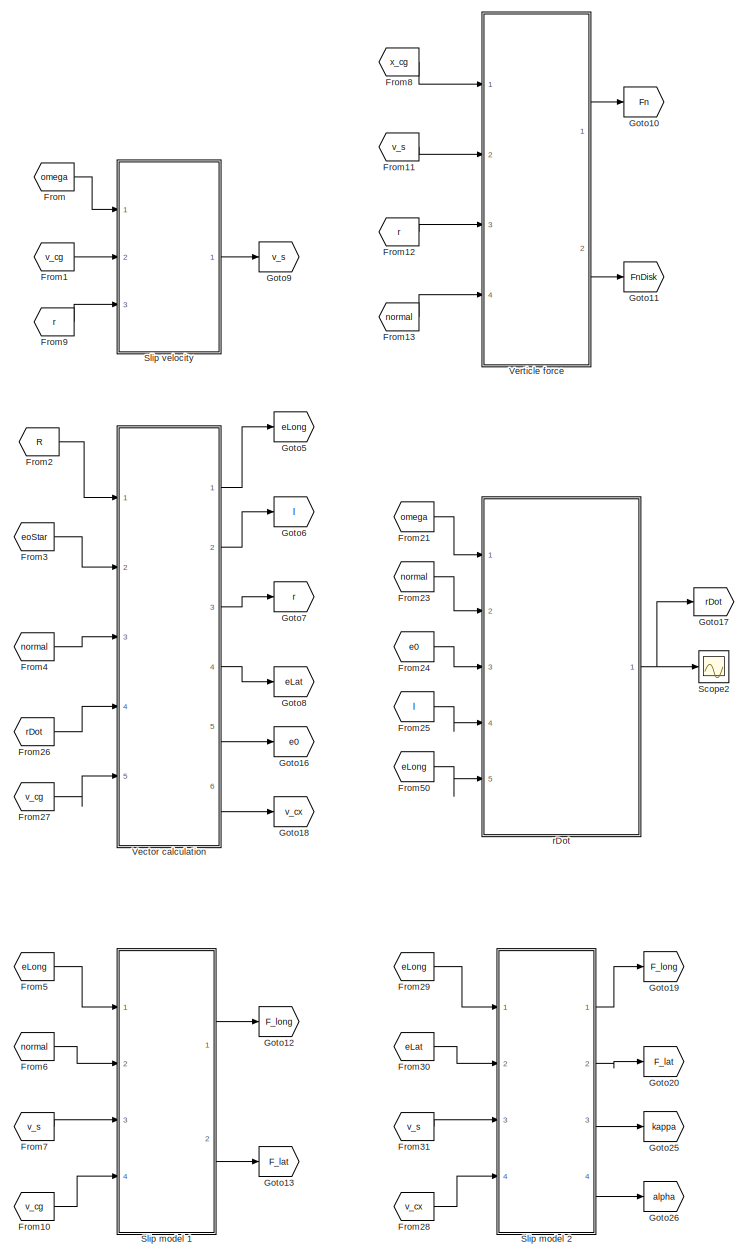
[diagram: Tire model RW - part 1/4, center side, full height]
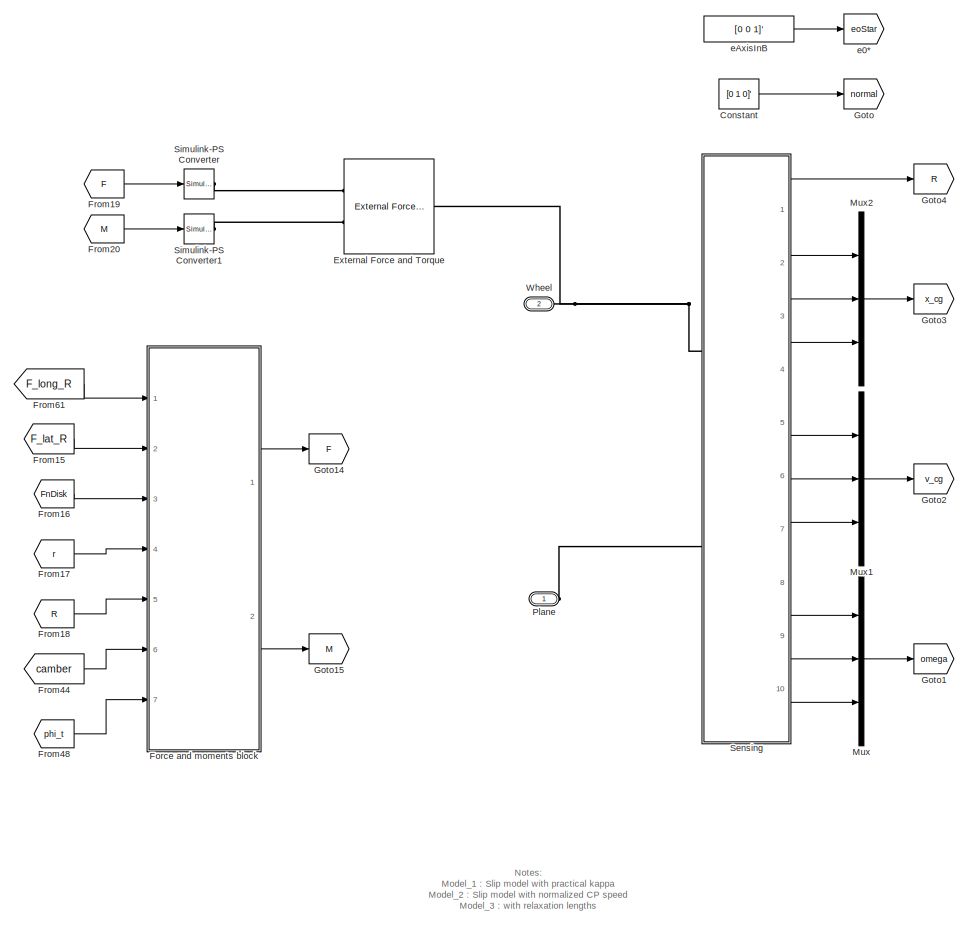
[diagram: Tire model RW - part 2/4, middle left region]
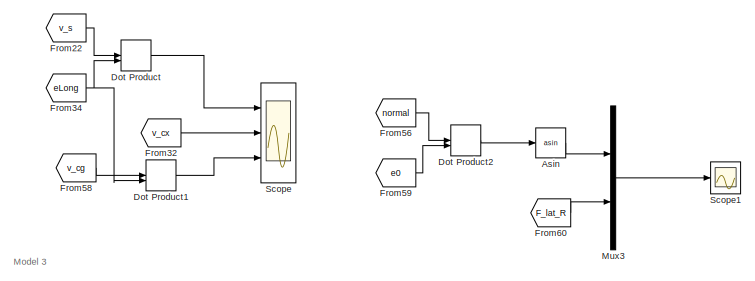
[diagram: Tire model RW - part 3/4, top right region]
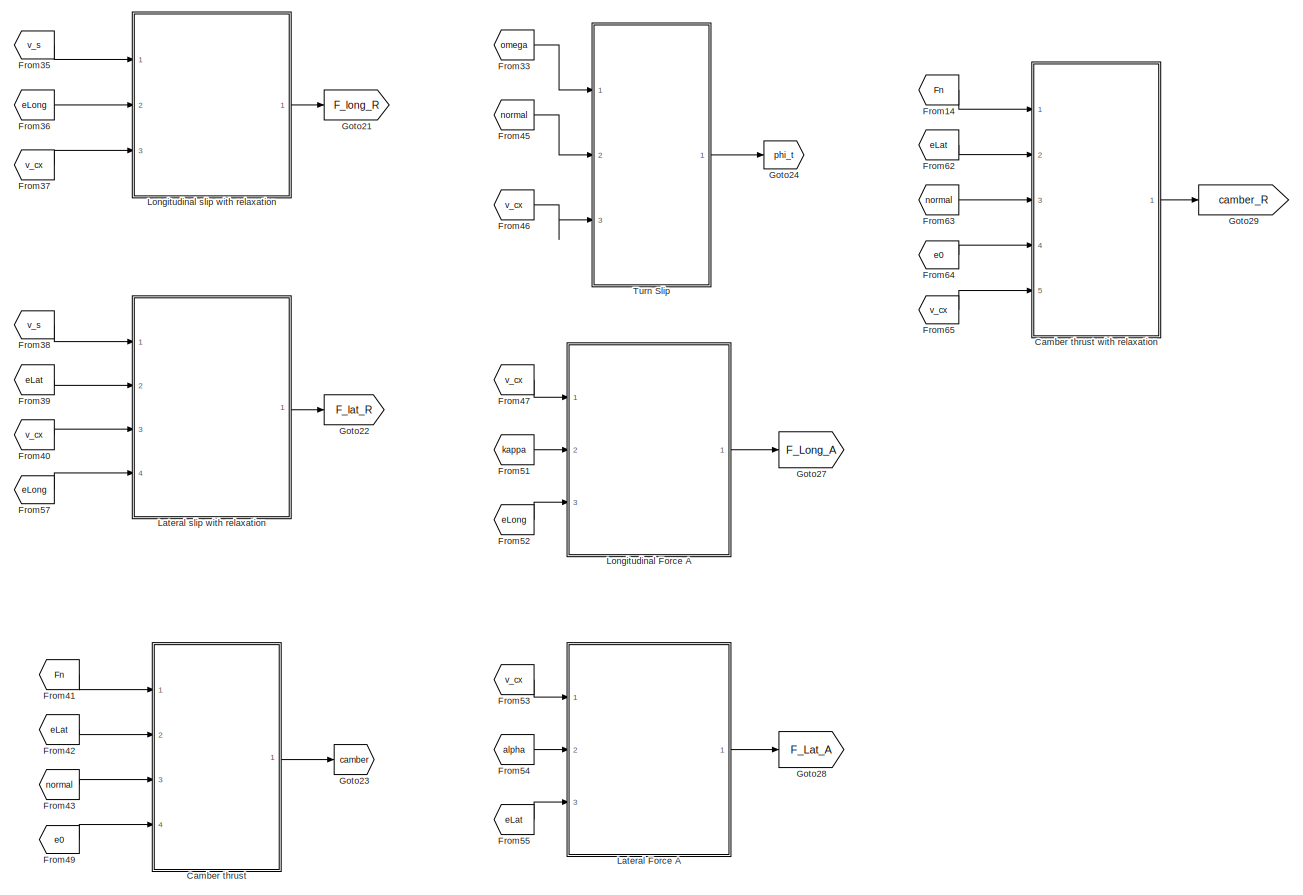
[diagram: Tire model RW - part 4/4, middle right region]
BLOCK [SubSystem] Tire model RW
  Commented = on
  Ports = [0, 0, 0, 0, 0, 1, 1]
  RequestExecContextInheritance = off
  Variant = off
BLOCK [Trigonometry] Tire model RW/Asin
  Operator = asin
  Ports = [1, 1]
BLOCK [SubSystem] Tire model RW/Camber thrust
  Ports = [4, 1]
  RequestExecContextInheritance = off
  Variant = off
BLOCK [SubSystem] Tire model RW/Camber thrust with relaxation
  Commented = on
  Ports = [5, 1]
  RequestExecContextInheritance = off
  Variant = off
BLOCK [DotProduct] Tire model RW/Camber thrust with relaxation/Dot Product1
  OutDataTypeStr = Inherit: Inherit via internal rule
BLOCK [Inport] Tire model RW/Camber thrust with relaxation/Fn
  IconDisplay = Port number
BLOCK [Gain] Tire model RW/Camber thrust with relaxation/Gain
  Gain = 1/sigma
  OutDataTypeStr = Inherit: Inherit via internal rule
  ParamDataTypeStr = Inherit: Inherit via internal rule
  SaturateOnIntegerOverflow = off
BLOCK [Integrator] Tire model RW/Camber thrust with relaxation/Integrator
  Ports = [1, 1]
BLOCK [Product] Tire model RW/Camber thrust with relaxation/Product
  InputSameDT = off
  OutDataTypeStr = Inherit: Inherit via internal rule
  Ports = [2, 1]
  RndMeth = Floor
  SaturateOnIntegerOverflow = off
BLOCK [Product] Tire model RW/Camber thrust with relaxation/Product1
  InputSameDT = off
  OutDataTypeStr = Inherit: Inherit via internal rule
  Ports = [2, 1]
  RndMeth = Floor
  SaturateOnIntegerOverflow = off
BLOCK [Product] Tire model RW/Camber thrust with relaxation/Product2
  InputSameDT = off
  OutDataTypeStr = Inherit: Inherit via internal rule
  Ports = [2, 1]
  RndMeth = Floor
  SaturateOnIntegerOverflow = off
BLOCK [Product] Tire model RW/Camber thrust with relaxation/Product3
  InputSameDT = off
  OutDataTypeStr = Inherit: Inherit via internal rule
  Ports = [2, 1]
  RndMeth = Floor
  SaturateOnIntegerOverflow = off
BLOCK [Scope] Tire model RW/Camber thrust with relaxation/Scope1
  NumInputPorts = 1
  Ports = [1]
  ScopeSpecificationString = Simulink.scopes.TimeScopeBlockCfg('CurrentConfiguration', extmgr.ConfigurationSet(extmgr.Configuration('Core','General UI',true),extmgr.Configuration('Core','Source UI',true),extmgr.Configuration('Sources','WiredSimulink',true,'DataLoggingVariableName','ScopeData3'),extmgr.Configuration('Visuals','Time Domain',true,'SerializedDisplays',{struct('MinYLimReal','-25.43511','MaxYLimReal','9.20191','YLa...<+1470ch>
BLOCK [Sum] Tire model RW/Camber thrust with relaxation/Sum
  IconShape = round
  InputSameDT = off
  Inputs = |+-
  OutDataTypeStr = Inherit: Inherit via internal rule
  Ports = [2, 1]
  SaturateOnIntegerOverflow = off
BLOCK [Inport] Tire model RW/Camber thrust with relaxation/V_cx
  IconDisplay = Port number
  Port = 5
BLOCK [Outport] Tire model RW/Camber thrust with relaxation/camber_R
  IconDisplay = Port number
BLOCK [Inport] Tire model RW/Camber thrust with relaxation/e0
  IconDisplay = Port number
  Port = 4
BLOCK [Inport] Tire model RW/Camber thrust with relaxation/eLat
  IconDisplay = Port number
  Port = 2
BLOCK [Inport] Tire model RW/Camber thrust with relaxation/n
  IconDisplay = Port number
  Port = 3
BLOCK [Abs] Tire model RW/Camber thrust/Abs
  SaturateOnIntegerOverflow = off
BLOCK [Reference] Tire model RW/Camber thrust/Compare To Constant  REF=simulink/Logic and Bit
Operations/Compare
To Constant
  Ports = [1, 1]
  SourceBlock = simulink/Logic and Bit\nOperations/Compare\nTo Constant
  SourceProductBaseCode = SL
  SourceProductName = Simulink
  SourceType = Compare To Constant
BLOCK [DotProduct] Tire model RW/Camber thrust/Dot Product1
  OutDataTypeStr = Inherit: Inherit via internal rule
BLOCK [Inport] Tire model RW/Camber thrust/Fn
  IconDisplay = Port number
BLOCK [Gain] Tire model RW/Camber thrust/Gain
  Gain = 180/pi
  OutDataTypeStr = Inherit: Inherit via internal rule
  ParamDataTypeStr = Inherit: Inherit via internal rule
  SaturateOnIntegerOverflow = off
BLOCK [Goto] Tire model RW/Camber thrust/Goto
  GotoTag = lean_RW
  TagVisibility = global
BLOCK [Product] Tire model RW/Camber thrust/Product
  InputSameDT = off
  OutDataTypeStr = Inherit: Inherit via internal rule
  Ports = [2, 1]
  RndMeth = Floor
  SaturateOnIntegerOverflow = off
BLOCK [Product] Tire model RW/Camber thrust/Product1
  InputSameDT = off
  OutDataTypeStr = Inherit: Inherit via internal rule
  Ports = [2, 1]
  RndMeth = Floor
  SaturateOnIntegerOverflow = off
BLOCK [Stop] Tire model RW/Camber thrust/Stop Simulation
BLOCK [Outport] Tire model RW/Camber thrust/camber
  IconDisplay = Port number
BLOCK [Inport] Tire model RW/Camber thrust/e0
  IconDisplay = Port number
  Port = 4
BLOCK [Inport] Tire model RW/Camber thrust/eLat
  IconDisplay = Port number
  Port = 2
BLOCK [Inport] Tire model RW/Camber thrust/n
  IconDisplay = Port number
  Port = 3
BLOCK [Constant] Tire model RW/Constant
  Value = [0 1 0]'
BLOCK [DotProduct] Tire model RW/Dot Product
  Commented = on
  OutDataTypeStr = Inherit: Inherit via internal rule
BLOCK [DotProduct] Tire model RW/Dot Product1
  Commented = on
  OutDataTypeStr = Inherit: Inherit via internal rule
BLOCK [DotProduct] Tire model RW/Dot Product2
  OutDataTypeStr = Inherit: Inherit via internal rule
BLOCK [Reference] Tire model RW/External Force and Torque  REF=sm_lib/Forces and
Torques/External Force
and Torque
  Ports = [0, 0, 0, 0, 0, 2, 1]
  SourceBlock = sm_lib/Forces and\nTorques/External Force\nand Torque
  SourceProductBaseCode = MS
  SourceProductName = Simscape Multibody
  SourceType = External Force\nand Torque
BLOCK [SubSystem] Tire model RW/Force and moments block
  Ports = [7, 2]
  RequestExecContextInheritance = off
  Variant = off
BLOCK [Sum] Tire model RW/Force and moments block/Add
  InputSameDT = off
  Inputs = 4
  OutDataTypeStr = Inherit: Inherit via internal rule
  Ports = [4, 1]
  SaturateOnIntegerOverflow = off
BLOCK [Sum] Tire model RW/Force and moments block/Add1
  InputSameDT = off
  OutDataTypeStr = Inherit: Inherit via internal rule
  Ports = [2, 1]
  SaturateOnIntegerOverflow = off
BLOCK [Reference] Tire model RW/Force and moments block/Cross Product  REF=vrlib/Utilities/Cross Product
  Ports = [2, 1]
  SourceBlock = vrlib/Utilities/Cross Product
  SourceProductBaseCode = VR
  SourceProductName = Simulink 3D Animation
  SourceType = Cross Product
BLOCK [Demux] Tire model RW/Force and moments block/Demux
  DisplayOption = bar
  Outputs = 3
  Ports = [1, 3]
BLOCK [Demux] Tire model RW/Force and moments block/Demux1
  DisplayOption = bar
  Outputs = 3
  Ports = [1, 3]
BLOCK [Outport] Tire model RW/Force and moments block/F
  IconDisplay = Port number
BLOCK [Inport] Tire model RW/Force and moments block/F_lat
  IconDisplay = Port number
  Port = 2
BLOCK [Inport] Tire model RW/Force and moments block/F_long
  IconDisplay = Port number
BLOCK [Inport] Tire model RW/Force and moments block/FnDisk
  IconDisplay = Port number
  Port = 3
BLOCK [Outport] Tire model RW/Force and moments block/M
  IconDisplay = Port number
  Port = 2
BLOCK [Product] Tire model RW/Force and moments block/Product
  InputSameDT = off
  Inputs = /*
  Multiplication = Matrix(*)
  OutDataTypeStr = Inherit: Inherit via internal rule
  Ports = [2, 1]
  RndMeth = Floor
  SaturateOnIntegerOverflow = off
BLOCK [Product] Tire model RW/Force and moments block/Product1
  InputSameDT = off
  Inputs = /*
  Multiplication = Matrix(*)
  OutDataTypeStr = Inherit: Inherit via internal rule
  Ports = [2, 1]
  RndMeth = Floor
  SaturateOnIntegerOverflow = off
BLOCK [Inport] Tire model RW/Force and moments block/R
  IconDisplay = Port number
  Port = 5
BLOCK [Scope] Tire model RW/Force and moments block/Scope
  NumInputPorts = 3
  Ports = [3]
BLOCK [Scope] Tire model RW/Force and moments block/Scope1
  NumInputPorts = 3
  Ports = [3]
  ScopeSpecificationString = Simulink.scopes.TimeScopeBlockCfg('CurrentConfiguration', extmgr.ConfigurationSet(extmgr.Configuration('Core','General UI',true),extmgr.Configuration('Core','Source UI',true),extmgr.Configuration('Sources','WiredSimulink',true,'DataLoggingVariableName','ScopeData4'),extmgr.Configuration('Visuals','Time Domain',true,'SerializedDisplays',{struct('MinYLimReal','-24.5245','MaxYLimReal','24.5245','YLab...<+2810ch>
BLOCK [Scope] Tire model RW/Force and moments block/Scope2
  NumInputPorts = 1
  Ports = [1]
BLOCK [Inport] Tire model RW/Force and moments block/camber
  IconDisplay = Port number
  Port = 6
BLOCK [Inport] Tire model RW/Force and moments block/phi_t
  IconDisplay = Port number
  Port = 7
BLOCK [Inport] Tire model RW/Force and moments block/r
  IconDisplay = Port number
  Port = 4
BLOCK [From] Tire model RW/From
  GotoTag = omega
BLOCK [From] Tire model RW/From1
  GotoTag = v_cg
BLOCK [From] Tire model RW/From10
  Commented = on
  GotoTag = v_cg
BLOCK [From] Tire model RW/From11
  GotoTag = v_s
BLOCK [From] Tire model RW/From12
  GotoTag = r
BLOCK [From] Tire model RW/From13
  GotoTag = normal
BLOCK [From] Tire model RW/From14
  Commented = on
  GotoTag = Fn
BLOCK [From] Tire model RW/From15
  GotoTag = F_lat_R
BLOCK [From] Tire model RW/From16
  GotoTag = FnDisk
BLOCK [From] Tire model RW/From17
  GotoTag = r
BLOCK [From] Tire model RW/From18
  GotoTag = R
BLOCK [From] Tire model RW/From19
  GotoTag = F
BLOCK [From] Tire model RW/From2
  GotoTag = R
BLOCK [From] Tire model RW/From20
  GotoTag = M
BLOCK [From] Tire model RW/From21
  GotoTag = omega
BLOCK [From] Tire model RW/From22
  Commented = on
  GotoTag = v_s
BLOCK [From] Tire model RW/From23
  GotoTag = normal
BLOCK [From] Tire model RW/From24
  GotoTag = e0
BLOCK [From] Tire model RW/From25
  GotoTag = l
BLOCK [From] Tire model RW/From26
  GotoTag = rDot
BLOCK [From] Tire model RW/From27
  GotoTag = v_cg
BLOCK [From] Tire model RW/From28
  GotoTag = v_cx
BLOCK [From] Tire model RW/From29
  GotoTag = eLong
BLOCK [From] Tire model RW/From3
  GotoTag = eoStar
BLOCK [From] Tire model RW/From30
  GotoTag = eLat
BLOCK [From] Tire model RW/From31
  GotoTag = v_s
BLOCK [From] Tire model RW/From32
  Commented = on
  GotoTag = v_cx
BLOCK [From] Tire model RW/From33
  GotoTag = omega
BLOCK [From] Tire model RW/From34
  Commented = on
  GotoTag = eLong
BLOCK [From] Tire model RW/From35
  GotoTag = v_s
BLOCK [From] Tire model RW/From36
  GotoTag = eLong
BLOCK [From] Tire model RW/From37
  GotoTag = v_cx
BLOCK [From] Tire model RW/From38
  GotoTag = v_s
BLOCK [From] Tire model RW/From39
  GotoTag = eLat
BLOCK [From] Tire model RW/From4
  GotoTag = normal
BLOCK [From] Tire model RW/From40
  GotoTag = v_cx
BLOCK [From] Tire model RW/From41
  GotoTag = Fn
BLOCK [From] Tire model RW/From42
  GotoTag = eLat
BLOCK [From] Tire model RW/From43
  GotoTag = normal
BLOCK [From] Tire model RW/From44
  GotoTag = camber
BLOCK [From] Tire model RW/From45
  GotoTag = normal
BLOCK [From] Tire model RW/From46
  GotoTag = v_cx
BLOCK [From] Tire model RW/From47
  Commented = on
  GotoTag = v_cx
BLOCK [From] Tire model RW/From48
  GotoTag = phi_t
BLOCK [From] Tire model RW/From49
  GotoTag = e0
BLOCK [From] Tire model RW/From5
  Commented = on
  GotoTag = eLong
BLOCK [From] Tire model RW/From50
  GotoTag = eLong
BLOCK [From] Tire model RW/From51
  Commented = on
  GotoTag = kappa
BLOCK [From] Tire model RW/From52
  Commented = on
  GotoTag = eLong
BLOCK [From] Tire model RW/From53
  Commented = on
  GotoTag = v_cx
BLOCK [From] Tire model RW/From54
  Commented = on
  GotoTag = alpha
BLOCK [From] Tire model RW/From55
  Commented = on
  GotoTag = eLat
BLOCK [From] Tire model RW/From56
  GotoTag = normal
BLOCK [From] Tire model RW/From57
  GotoTag = eLong
BLOCK [From] Tire model RW/From58
  Commented = on
  GotoTag = v_cg
BLOCK [From] Tire model RW/From59
  GotoTag = e0
BLOCK [From] Tire model RW/From6
  Commented = on
  GotoTag = normal
BLOCK [From] Tire model RW/From60
  GotoTag = F_lat_R
BLOCK [From] Tire model RW/From61
  GotoTag = F_long_R
BLOCK [From] Tire model RW/From62
  Commented = on
  GotoTag = eLat
BLOCK [From] Tire model RW/From63
  Commented = on
  GotoTag = normal
BLOCK [From] Tire model RW/From64
  Commented = on
  GotoTag = e0
BLOCK [From] Tire model RW/From65
  Commented = on
  GotoTag = v_cx
BLOCK [From] Tire model RW/From7
  Commented = on
  GotoTag = v_s
BLOCK [From] Tire model RW/From8
  GotoTag = x_cg
BLOCK [From] Tire model RW/From9
  GotoTag = r
BLOCK [Goto] Tire model RW/Goto
  GotoTag = normal
BLOCK [Goto] Tire model RW/Goto1
  GotoTag = omega
BLOCK [Goto] Tire model RW/Goto10
  GotoTag = Fn
BLOCK [Goto] Tire model RW/Goto11
  GotoTag = FnDisk
BLOCK [Goto] Tire model RW/Goto12
  Commented = on
  GotoTag = F_long
BLOCK [Goto] Tire model RW/Goto13
  Commented = on
  GotoTag = F_lat
BLOCK [Goto] Tire model RW/Goto14
  GotoTag = F
BLOCK [Goto] Tire model RW/Goto15
  GotoTag = M
BLOCK [Goto] Tire model RW/Goto16
  GotoTag = e0
BLOCK [Goto] Tire model RW/Goto17
  GotoTag = rDot
BLOCK [Goto] Tire model RW/Goto18
  GotoTag = v_cx
BLOCK [Goto] Tire model RW/Goto19
  GotoTag = F_long
BLOCK [Goto] Tire model RW/Goto2
  GotoTag = v_cg
BLOCK [Goto] Tire model RW/Goto20
  GotoTag = F_lat
BLOCK [Goto] Tire model RW/Goto21
  GotoTag = F_long_R
BLOCK [Goto] Tire model RW/Goto22
  GotoTag = F_lat_R
BLOCK [Goto] Tire model RW/Goto23
  GotoTag = camber
BLOCK [Goto] Tire model RW/Goto24
  GotoTag = phi_t
BLOCK [Goto] Tire model RW/Goto25
  GotoTag = kappa
BLOCK [Goto] Tire model RW/Goto26
  GotoTag = alpha
BLOCK [Goto] Tire model RW/Goto27
  Commented = on
  GotoTag = F_Long_A
BLOCK [Goto] Tire model RW/Goto28
  Commented = on
  GotoTag = F_Lat_A
BLOCK [Goto] Tire model RW/Goto29
  Commented = on
  GotoTag = camber_R
BLOCK [Goto] Tire model RW/Goto3
  GotoTag = x_cg
BLOCK [Goto] Tire model RW/Goto4
  GotoTag = R
BLOCK [Goto] Tire model RW/Goto5
  GotoTag = eLong
BLOCK [Goto] Tire model RW/Goto6
  GotoTag = l
BLOCK [Goto] Tire model RW/Goto7
  GotoTag = r
BLOCK [Goto] Tire model RW/Goto8
  GotoTag = eLat
BLOCK [Goto] Tire model RW/Goto9
  GotoTag = v_s
BLOCK [SubSystem] Tire model RW/Lateral Force A
  Commented = on
  Ports = [3, 1]
  RequestExecContextInheritance = off
  Variant = off
BLOCK [Constant] Tire model RW/Lateral Force A/Constant
  Value = sigma
BLOCK [Constant] Tire model RW/Lateral Force A/Constant1
  Value = sigma
BLOCK [Outport] Tire model RW/Lateral Force A/Fz
  IconDisplay = Port number
BLOCK [Gain] Tire model RW/Lateral Force A/Gain
  Gain = -C_F_alpha
  OutDataTypeStr = Inherit: Inherit via internal rule
  ParamDataTypeStr = Inherit: Inherit via internal rule
  SaturateOnIntegerOverflow = off
BLOCK [Integrator] Tire model RW/Lateral Force A/Integrator
  Ports = [1, 1]
BLOCK [Product] Tire model RW/Lateral Force A/Product
  InputSameDT = off
  OutDataTypeStr = Inherit: Inherit via internal rule
  Ports = [2, 1]
  RndMeth = Floor
  SaturateOnIntegerOverflow = off
BLOCK [Product] Tire model RW/Lateral Force A/Product1
  InputSameDT = off
  OutDataTypeStr = Inherit: Inherit via internal rule
  Ports = [2, 1]
  RndMeth = Floor
  SaturateOnIntegerOverflow = off
BLOCK [Product] Tire model RW/Lateral Force A/Product2
  InputSameDT = off
  OutDataTypeStr = Inherit: Inherit via internal rule
  Ports = [2, 1]
  RndMeth = Floor
  SaturateOnIntegerOverflow = off
BLOCK [Product] Tire model RW/Lateral Force A/Product3
  InputSameDT = off
  OutDataTypeStr = Inherit: Inherit via internal rule
  Ports = [2, 1]
  RndMeth = Floor
  SaturateOnIntegerOverflow = off
BLOCK [Product] Tire model RW/Lateral Force A/Product4
  InputSameDT = off
  OutDataTypeStr = Inherit: Inherit via internal rule
  Ports = [2, 1]
  RndMeth = Floor
  SaturateOnIntegerOverflow = off
BLOCK [Scope] Tire model RW/Lateral Force A/Scope
  NumInputPorts = 1
  Ports = [1]
  ScopeSpecificationString = Simulink.scopes.TimeScopeBlockCfg('CurrentConfiguration', extmgr.ConfigurationSet(extmgr.Configuration('Core','General UI',true),extmgr.Configuration('Core','Source UI',true),extmgr.Configuration('Sources','WiredSimulink',true,'DataLoggingVariableName','ScopeData1'),extmgr.Configuration('Visuals','Time Domain',true,'SerializedDisplays',{struct('MinYLimReal','-50.51292','MaxYLimReal','37.87807','YL...<+1455ch>
BLOCK [Scope] Tire model RW/Lateral Force A/Scope1
  NumInputPorts = 1
  Ports = [1]
  ScopeSpecificationString = Simulink.scopes.TimeScopeBlockCfg('CurrentConfiguration', extmgr.ConfigurationSet(extmgr.Configuration('Core','General UI',true),extmgr.Configuration('Core','Source UI',true),extmgr.Configuration('Sources','WiredSimulink',true,'DataLoggingVariableName','ScopeData2'),extmgr.Configuration('Visuals','Time Domain',true,'SerializedDisplays',{struct('MinYLimReal','-57.26425','MaxYLimReal','71.87686','YL...<+1425ch>
BLOCK [Sum] Tire model RW/Lateral Force A/Sum
  IconShape = round
  InputSameDT = off
  Inputs = |+-
  OutDataTypeStr = Inherit: Inherit via internal rule
  Ports = [2, 1]
  SaturateOnIntegerOverflow = off
BLOCK [Inport] Tire model RW/Lateral Force A/alpha
  IconDisplay = Port number
  Port = 2
BLOCK [Inport] Tire model RW/Lateral Force A/eLat
  IconDisplay = Port number
  Port = 3
BLOCK [Inport] Tire model RW/Lateral Force A/v_cx
  IconDisplay = Port number
BLOCK [InportShadow] Tire model RW/Lateral Force A/v_cx1
  IconDisplay = Port number
BLOCK [SubSystem] Tire model RW/Lateral slip with relaxation
  Ports = [4, 1]
  RequestExecContextInheritance = off
  Variant = off
BLOCK [DotProduct] Tire model RW/Lateral slip with relaxation/Dot Product
  OutDataTypeStr = Inherit: Inherit via internal rule
BLOCK [Outport] Tire model RW/Lateral slip with relaxation/F_Lat
  IconDisplay = Port number
BLOCK [Gain] Tire model RW/Lateral slip with relaxation/Gain
  Gain = 1/sigma
  OutDataTypeStr = Inherit: Inherit via internal rule
  ParamDataTypeStr = Inherit: Inherit via internal rule
  SaturateOnIntegerOverflow = off
BLOCK [Gain] Tire model RW/Lateral slip with relaxation/Gain1
  Gain = -C_F_alpha
  OutDataTypeStr = Inherit: Inherit via internal rule
  ParamDataTypeStr = Inherit: Inherit via internal rule
  SaturateOnIntegerOverflow = off
BLOCK [Integrator] Tire model RW/Lateral slip with relaxation/Integrator
  Ports = [1, 1]
BLOCK [SubSystem] Tire model RW/Lateral slip with relaxation/MATLAB Function2
  Commented = through
  ErrorFcn = Stateflow.Translate.translate
  PermitHierarchicalResolution = ExplicitOnly
  Ports = [1, 1]
  RequestExecContextInheritance = off
  SFBlockType = MATLAB Function
  TreatAsAtomicUnit = on
  Variant = off
BLOCK [Demux] Tire model RW/Lateral slip with relaxation/MATLAB Function2/ Demux 
  Outputs = 1
  Ports = [1, 1]
BLOCK [S-Function] Tire model RW/Lateral slip with relaxation/MATLAB Function2/ SFunction 
  EnableBusSupport = on
  FunctionName = sf_sfun
  PortCounts = [1 2]
  Ports = [1, 2]
  SFcnIsStateOwnerBlock = off
  SFunctionDeploymentMode = off
  Tag = Stateflow S-Function UncontrolledBike 6
BLOCK [Terminator] Tire model RW/Lateral slip with relaxation/MATLAB Function2/ Terminator 
BLOCK [Outport] Tire model RW/Lateral slip with relaxation/MATLAB Function2/s1
  IconDisplay = Port number
BLOCK [Inport] Tire model RW/Lateral slip with relaxation/MATLAB Function2/s1 
  IconDisplay = Port number
BLOCK [Product] Tire model RW/Lateral slip with relaxation/Product
  InputSameDT = off
  OutDataTypeStr = Inherit: Inherit via internal rule
  Ports = [2, 1]
  RndMeth = Floor
  SaturateOnIntegerOverflow = off
BLOCK [Product] Tire model RW/Lateral slip with relaxation/Product1
  InputSameDT = off
  OutDataTypeStr = Inherit: Inherit via internal rule
  Ports = [2, 1]
  RndMeth = Floor
  SaturateOnIntegerOverflow = off
BLOCK [Scope] Tire model RW/Lateral slip with relaxation/Scope
  NumInputPorts = 1
  Ports = [1]
BLOCK [Scope] Tire model RW/Lateral slip with relaxation/Scope1
  NumInputPorts = 1
  Ports = [1]
BLOCK [Scope] Tire model RW/Lateral slip with relaxation/Scope2
  NumInputPorts = 1
  Ports = [1]
BLOCK [Sum] Tire model RW/Lateral slip with relaxation/Sum
  IconShape = round
  InputSameDT = off
  Inputs = |+-
  OutDataTypeStr = Inherit: Inherit via internal rule
  Ports = [2, 1]
  SaturateOnIntegerOverflow = off
BLOCK [Inport] Tire model RW/Lateral slip with relaxation/eLat
  IconDisplay = Port number
  Port = 2
BLOCK [Inport] Tire model RW/Lateral slip with relaxation/eLong
  IconDisplay = Port number
  Port = 4
BLOCK [Inport] Tire model RW/Lateral slip with relaxation/v_cx
  IconDisplay = Port number
  Port = 3
BLOCK [Inport] Tire model RW/Lateral slip with relaxation/v_s
  IconDisplay = Port number
BLOCK [SubSystem] Tire model RW/Longitudinal Force A
  Commented = on
  Ports = [3, 1]
  RequestExecContextInheritance = off
  Variant = off
BLOCK [Constant] Tire model RW/Longitudinal Force A/Constant
  Value = sigma
BLOCK [Constant] Tire model RW/Longitudinal Force A/Constant1
  Value = sigma
BLOCK [Outport] Tire model RW/Longitudinal Force A/Fx
  IconDisplay = Port number
BLOCK [Gain] Tire model RW/Longitudinal Force A/Gain
  Gain = -C_F_kappa
  OutDataTypeStr = Inherit: Inherit via internal rule
  ParamDataTypeStr = Inherit: Inherit via internal rule
  SaturateOnIntegerOverflow = off
BLOCK [Integrator] Tire model RW/Longitudinal Force A/Integrator
  Ports = [1, 1]
BLOCK [Product] Tire model RW/Longitudinal Force A/Product
  InputSameDT = off
  OutDataTypeStr = Inherit: Inherit via internal rule
  Ports = [2, 1]
  RndMeth = Floor
  SaturateOnIntegerOverflow = off
BLOCK [Product] Tire model RW/Longitudinal Force A/Product1
  InputSameDT = off
  OutDataTypeStr = Inherit: Inherit via internal rule
  Ports = [2, 1]
  RndMeth = Floor
  SaturateOnIntegerOverflow = off
BLOCK [Product] Tire model RW/Longitudinal Force A/Product2
  InputSameDT = off
  OutDataTypeStr = Inherit: Inherit via internal rule
  Ports = [2, 1]
  RndMeth = Floor
  SaturateOnIntegerOverflow = off
BLOCK [Product] Tire model RW/Longitudinal Force A/Product3
  InputSameDT = off
  OutDataTypeStr = Inherit: Inherit via internal rule
  Ports = [2, 1]
  RndMeth = Floor
  SaturateOnIntegerOverflow = off
BLOCK [Product] Tire model RW/Longitudinal Force A/Product4
  InputSameDT = off
  OutDataTypeStr = Inherit: Inherit via internal rule
  Ports = [2, 1]
  RndMeth = Floor
  SaturateOnIntegerOverflow = off
BLOCK [Scope] Tire model RW/Longitudinal Force A/Scope
  NumInputPorts = 1
  Ports = [1]
  ScopeSpecificationString = Simulink.scopes.TimeScopeBlockCfg('CurrentConfiguration', extmgr.ConfigurationSet(extmgr.Configuration('Core','General UI',true),extmgr.Configuration('Core','Source UI',true),extmgr.Configuration('Sources','WiredSimulink',true,'DataLoggingVariableName','ScopeData1'),extmgr.Configuration('Visuals','Time Domain',true,'SerializedDisplays',{struct('MinYLimReal','-58.40108','MaxYLimReal','60.5257','YLa...<+1451ch>
BLOCK [Scope] Tire model RW/Longitudinal Force A/Scope1
  NumInputPorts = 1
  Ports = [1]
  ScopeSpecificationString = Simulink.scopes.TimeScopeBlockCfg('CurrentConfiguration', extmgr.ConfigurationSet(extmgr.Configuration('Core','General UI',true),extmgr.Configuration('Core','Source UI',true),extmgr.Configuration('Sources','WiredSimulink',true,'DataLoggingVariableName','ScopeData2'),extmgr.Configuration('Visuals','Time Domain',true,'SerializedDisplays',{struct('MinYLimReal','-119.66099','MaxYLimReal','135.70614','...<+1408ch>
BLOCK [Sum] Tire model RW/Longitudinal Force A/Sum
  IconShape = round
  InputSameDT = off
  Inputs = |+-
  OutDataTypeStr = Inherit: Inherit via internal rule
  Ports = [2, 1]
  SaturateOnIntegerOverflow = off
BLOCK [Inport] Tire model RW/Longitudinal Force A/eLong
  IconDisplay = Port number
  Port = 3
BLOCK [Inport] Tire model RW/Longitudinal Force A/kappa
  IconDisplay = Port number
  Port = 2
BLOCK [Inport] Tire model RW/Longitudinal Force A/v_cx
  IconDisplay = Port number
BLOCK [InportShadow] Tire model RW/Longitudinal Force A/v_cx1
  IconDisplay = Port number
BLOCK [SubSystem] Tire model RW/Longitudinal slip with relaxation
  Ports = [3, 1]
  RequestExecContextInheritance = off
  Variant = off
BLOCK [DotProduct] Tire model RW/Longitudinal slip with relaxation/Dot Product
  OutDataTypeStr = Inherit: Inherit via internal rule
BLOCK [Outport] Tire model RW/Longitudinal slip with relaxation/F_Long
  IconDisplay = Port number
BLOCK [Gain] Tire model RW/Longitudinal slip with relaxation/Gain
  Gain = 1/sigma
  OutDataTypeStr = Inherit: Inherit via internal rule
  ParamDataTypeStr = Inherit: Inherit via internal rule
  SaturateOnIntegerOverflow = off
BLOCK [Gain] Tire model RW/Longitudinal slip with relaxation/Gain1
  Gain = -C_F_kappa
  OutDataTypeStr = Inherit: Inherit via internal rule
  ParamDataTypeStr = Inherit: Inherit via internal rule
  SaturateOnIntegerOverflow = off
BLOCK [Integrator] Tire model RW/Longitudinal slip with relaxation/Integrator
  Ports = [1, 1]
BLOCK [SubSystem] Tire model RW/Longitudinal slip with relaxation/MATLAB Function2
  Commented = through
  ErrorFcn = Stateflow.Translate.translate
  PermitHierarchicalResolution = ExplicitOnly
  Ports = [1, 1]
  RequestExecContextInheritance = off
  SFBlockType = MATLAB Function
  TreatAsAtomicUnit = on
  Variant = off
BLOCK [Demux] Tire model RW/Longitudinal slip with relaxation/MATLAB Function2/ Demux 
  Outputs = 1
  Ports = [1, 1]
BLOCK [S-Function] Tire model RW/Longitudinal slip with relaxation/MATLAB Function2/ SFunction 
  EnableBusSupport = on
  FunctionName = sf_sfun
  PortCounts = [1 2]
  Ports = [1, 2]
  SFcnIsStateOwnerBlock = off
  SFunctionDeploymentMode = off
  Tag = Stateflow S-Function UncontrolledBike 5
BLOCK [Terminator] Tire model RW/Longitudinal slip with relaxation/MATLAB Function2/ Terminator 
BLOCK [Outport] Tire model RW/Longitudinal slip with relaxation/MATLAB Function2/s1
  IconDisplay = Port number
BLOCK [Inport] Tire model RW/Longitudinal slip with relaxation/MATLAB Function2/s1 
  IconDisplay = Port number
BLOCK [Product] Tire model RW/Longitudinal slip with relaxation/Product
  InputSameDT = off
  OutDataTypeStr = Inherit: Inherit via internal rule
  Ports = [2, 1]
  RndMeth = Floor
  SaturateOnIntegerOverflow = off
BLOCK [Product] Tire model RW/Longitudinal slip with relaxation/Product1
  InputSameDT = off
  OutDataTypeStr = Inherit: Inherit via internal rule
  Ports = [2, 1]
  RndMeth = Floor
  SaturateOnIntegerOverflow = off
BLOCK [Sum] Tire model RW/Longitudinal slip with relaxation/Sum
  IconShape = round
  InputSameDT = off
  Inputs = |+-
  OutDataTypeStr = Inherit: Inherit via internal rule
  Ports = [2, 1]
  SaturateOnIntegerOverflow = off
BLOCK [Inport] Tire model RW/Longitudinal slip with relaxation/eLong
  IconDisplay = Port number
  Port = 2
BLOCK [Inport] Tire model RW/Longitudinal slip with relaxation/v_cx
  IconDisplay = Port number
  Port = 3
BLOCK [Inport] Tire model RW/Longitudinal slip with relaxation/v_s
  IconDisplay = Port number
BLOCK [Mux] Tire model RW/Mux
  DisplayOption = bar
  Inputs = 3
  Ports = [3, 1]
BLOCK [Mux] Tire model RW/Mux1
  DisplayOption = bar
  Inputs = 3
  Ports = [3, 1]
BLOCK [Mux] Tire model RW/Mux2
  DisplayOption = bar
  Inputs = 3
  Ports = [3, 1]
BLOCK [Mux] Tire model RW/Mux3
  DisplayOption = bar
  Inputs = 2
  Ports = [2, 1]
BLOCK [PMIOPort] Tire model RW/Plane
  Port = 1
  Side = Left
BLOCK [Scope] Tire model RW/Scope
  Commented = on
  NumInputPorts = 3
  Ports = [3]
  ScopeSpecificationString = Simulink.scopes.TimeScopeBlockCfg('CurrentConfiguration', extmgr.ConfigurationSet(extmgr.Configuration('Core','General UI',true),extmgr.Configuration('Core','Source UI',true),extmgr.Configuration('Sources','WiredSimulink',true,'DataLoggingVariableName','ScopeData1'),extmgr.Configuration('Visuals','Time Domain',true,'SerializedDisplays',{struct('MinYLimReal','-12014490364.71066','MaxYLimReal','8765...<+2859ch>
BLOCK [Scope] Tire model RW/Scope1
  NumInputPorts = 1
  Ports = [1]
  ScopeSpecificationString = Simulink.scopes.TimeScopeBlockCfg('CurrentConfiguration', extmgr.ConfigurationSet(extmgr.Configuration('Core','General UI',true),extmgr.Configuration('Core','Source UI',true),extmgr.Configuration('Sources','WiredSimulink',true,'DataLoggingVariableName','ScopeData4'),extmgr.Configuration('Visuals','Time Domain',true,'SerializedDisplays',{struct('MinYLimReal','-0.0000000095','MaxYLimReal','0.0000000...<+1574ch>
BLOCK [Scope] Tire model RW/Scope2
  NumInputPorts = 1
  Ports = [1]
BLOCK [SubSystem] Tire model RW/Sensing
  Ports = [0, 10, 0, 0, 0, 2]
  RequestExecContextInheritance = off
  Variant = off
BLOCK [Reference] Tire model RW/Sensing/PS-Simulink Converter  REF=nesl_utility/PS-Simulink
Converter
  Ports = [0, 1, 0, 0, 0, 1]
  SourceBlock = nesl_utility/PS-Simulink\nConverter
  SourceProductBaseCode = SS
  SourceProductName = Simscape
  SourceType = PS-Simulink\nConverter
BLOCK [Reference] Tire model RW/Sensing/PS-Simulink Converter1  REF=nesl_utility/PS-Simulink
Converter
  Ports = [0, 1, 0, 0, 0, 1]
  SourceBlock = nesl_utility/PS-Simulink\nConverter
  SourceProductBaseCode = SS
  SourceProductName = Simscape
  SourceType = PS-Simulink\nConverter
BLOCK [Reference] Tire model RW/Sensing/PS-Simulink Converter2  REF=nesl_utility/PS-Simulink
Converter
  Ports = [0, 1, 0, 0, 0, 1]
  SourceBlock = nesl_utility/PS-Simulink\nConverter
  SourceProductBaseCode = SS
  SourceProductName = Simscape
  SourceType = PS-Simulink\nConverter
BLOCK [Reference] Tire model RW/Sensing/PS-Simulink Converter3  REF=nesl_utility/PS-Simulink
Converter
  Ports = [0, 1, 0, 0, 0, 1]
  SourceBlock = nesl_utility/PS-Simulink\nConverter
  SourceProductBaseCode = SS
  SourceProductName = Simscape
  SourceType = PS-Simulink\nConverter
BLOCK [Reference] Tire model RW/Sensing/PS-Simulink Converter4  REF=nesl_utility/PS-Simulink
Converter
  Ports = [0, 1, 0, 0, 0, 1]
  SourceBlock = nesl_utility/PS-Simulink\nConverter
  SourceProductBaseCode = SS
  SourceProductName = Simscape
  SourceType = PS-Simulink\nConverter
BLOCK [Reference] Tire model RW/Sensing/PS-Simulink Converter5  REF=nesl_utility/PS-Simulink
Converter
  Ports = [0, 1, 0, 0, 0, 1]
  SourceBlock = nesl_utility/PS-Simulink\nConverter
  SourceProductBaseCode = SS
  SourceProductName = Simscape
  SourceType = PS-Simulink\nConverter
BLOCK [Reference] Tire model RW/Sensing/PS-Simulink Converter6  REF=nesl_utility/PS-Simulink
Converter
  Ports = [0, 1, 0, 0, 0, 1]
  SourceBlock = nesl_utility/PS-Simulink\nConverter
  SourceProductBaseCode = SS
  SourceProductName = Simscape
  SourceType = PS-Simulink\nConverter
BLOCK [Reference] Tire model RW/Sensing/PS-Simulink Converter7  REF=nesl_utility/PS-Simulink
Converter
  Ports = [0, 1, 0, 0, 0, 1]
  SourceBlock = nesl_utility/PS-Simulink\nConverter
  SourceProductBaseCode = SS
  SourceProductName = Simscape
  SourceType = PS-Simulink\nConverter
BLOCK [Reference] Tire model RW/Sensing/PS-Simulink Converter8  REF=nesl_utility/PS-Simulink
Converter
  Ports = [0, 1, 0, 0, 0, 1]
  SourceBlock = nesl_utility/PS-Simulink\nConverter
  SourceProductBaseCode = SS
  SourceProductName = Simscape
  SourceType = PS-Simulink\nConverter
BLOCK [Reference] Tire model RW/Sensing/PS-Simulink Converter9  REF=nesl_utility/PS-Simulink
Converter
  Ports = [0, 1, 0, 0, 0, 1]
  SourceBlock = nesl_utility/PS-Simulink\nConverter
  SourceProductBaseCode = SS
  SourceProductName = Simscape
  SourceType = PS-Simulink\nConverter
BLOCK [PMIOPort] Tire model RW/Sensing/Plane
  Port = 2
  Side = Left
BLOCK [Outport] Tire model RW/Sensing/R
  IconDisplay = Port number
BLOCK [Reference] Tire model RW/Sensing/Transform Sensor  REF=sm_lib/Frames and
Transforms/Transform
Sensor
  Ports = [0, 0, 0, 0, 0, 1, 11]
  SourceBlock = sm_lib/Frames and\nTransforms/Transform\nSensor
  SourceProductBaseCode = MS
  SourceProductName = Simscape Multibody
  SourceType = Transform\nSensor
BLOCK [PMIOPort] Tire model RW/Sensing/Wheel
  Port = 1
  Side = Left
BLOCK [Outport] Tire model RW/Sensing/vx
  IconDisplay = Port number
  Port = 5
BLOCK [Outport] Tire model RW/Sensing/vy
  IconDisplay = Port number
  Port = 6
BLOCK [Outport] Tire model RW/Sensing/vz
  IconDisplay = Port number
  Port = 7
BLOCK [Outport] Tire model RW/Sensing/wx
  IconDisplay = Port number
  Port = 8
BLOCK [Outport] Tire model RW/Sensing/wy
  IconDisplay = Port number
  Port = 9
BLOCK [Outport] Tire model RW/Sensing/wz
  IconDisplay = Port number
  Port = 10
BLOCK [Outport] Tire model RW/Sensing/x
  IconDisplay = Port number
  Port = 2
BLOCK [Outport] Tire model RW/Sensing/y
  IconDisplay = Port number
  Port = 3
BLOCK [Outport] Tire model RW/Sensing/z
  IconDisplay = Port number
  Port = 4
BLOCK [Reference] Tire model RW/Simulink-PS Converter  REF=nesl_utility/Simulink-PS
Converter
  Ports = [1, 0, 0, 0, 0, 0, 1]
  SourceBlock = nesl_utility/Simulink-PS\nConverter
  SourceProductBaseCode = SS
  SourceProductName = Simscape
  SourceType = Simulink-PS\nConverter
BLOCK [Reference] Tire model RW/Simulink-PS Converter1  REF=nesl_utility/Simulink-PS
Converter
  Ports = [1, 0, 0, 0, 0, 0, 1]
  SourceBlock = nesl_utility/Simulink-PS\nConverter
  SourceProductBaseCode = SS
  SourceProductName = Simscape
  SourceType = Simulink-PS\nConverter
BLOCK [SubSystem] Tire model RW/Slip model 1
  Commented = on
  Ports = [4, 2]
  RequestExecContextInheritance = off
  Variant = off
BLOCK [Constant] Tire model RW/Slip model 1/Constant
  Value = epsilon
BLOCK [Constant] Tire model RW/Slip model 1/Constant1
  Value = epsilon
BLOCK [Product] Tire model RW/Slip model 1/Divide
  InputSameDT = off
  Inputs = */
  OutDataTypeStr = Inherit: Inherit via internal rule
  Ports = [2, 1]
  RndMeth = Floor
  SaturateOnIntegerOverflow = off
BLOCK [DotProduct] Tire model RW/Slip model 1/Dot Product
  OutDataTypeStr = Inherit: Inherit via internal rule
BLOCK [DotProduct] Tire model RW/Slip model 1/Dot Product1
  OutDataTypeStr = Inherit: Inherit via internal rule
BLOCK [DotProduct] Tire model RW/Slip model 1/Dot Product2
  OutDataTypeStr = Inherit: Inherit via internal rule
BLOCK [DotProduct] Tire model RW/Slip model 1/Dot Product3
  OutDataTypeStr = Inherit: Inherit via internal rule
BLOCK [Outport] Tire model RW/Slip model 1/F_lat
  IconDisplay = Port number
  Port = 2
BLOCK [Outport] Tire model RW/Slip model 1/F_long
  IconDisplay = Port number
BLOCK [Gain] Tire model RW/Slip model 1/Gain
  Gain = -C_F_kappa
  OutDataTypeStr = Inherit: Inherit via internal rule
  ParamDataTypeStr = Inherit: Inherit via internal rule
  SaturateOnIntegerOverflow = off
BLOCK [Gain] Tire model RW/Slip model 1/Gain1
  Gain = -C_F_alpha
  OutDataTypeStr = Inherit: Inherit via internal rule
  ParamDataTypeStr = Inherit: Inherit via internal rule
  SaturateOnIntegerOverflow = off
BLOCK [Product] Tire model RW/Slip model 1/Product
  InputSameDT = off
  Inputs = */
  OutDataTypeStr = Inherit: Inherit via internal rule
  Ports = [2, 1]
  RndMeth = Floor
  SaturateOnIntegerOverflow = off
BLOCK [Product] Tire model RW/Slip model 1/Product1
  InputSameDT = off
  OutDataTypeStr = Inherit: Inherit via internal rule
  Ports = [2, 1]
  RndMeth = Floor
  SaturateOnIntegerOverflow = off
BLOCK [Product] Tire model RW/Slip model 1/Product2
  InputSameDT = off
  OutDataTypeStr = Inherit: Inherit via internal rule
  Ports = [2, 1]
  RndMeth = Floor
  SaturateOnIntegerOverflow = off
BLOCK [Scope] Tire model RW/Slip model 1/Scope
  NumInputPorts = 1
  Ports = [1]
BLOCK [Scope] Tire model RW/Slip model 1/Scope1
  NumInputPorts = 1
  Ports = [1]
BLOCK [Sum] Tire model RW/Slip model 1/Sum
  IconShape = round
  InputSameDT = off
  Inputs = |++
  OutDataTypeStr = Inherit: Inherit via internal rule
  Ports = [2, 1]
  SaturateOnIntegerOverflow = off
BLOCK [Sum] Tire model RW/Slip model 1/Sum1
  IconShape = round
  InputSameDT = off
  Inputs = |++
  OutDataTypeStr = Inherit: Inherit via internal rule
  Ports = [2, 1]
  SaturateOnIntegerOverflow = off
BLOCK [Inport] Tire model RW/Slip model 1/eLat
  IconDisplay = Port number
  Port = 2
BLOCK [InportShadow] Tire model RW/Slip model 1/eLat1
  IconDisplay = Port number
  Port = 2
BLOCK [Inport] Tire model RW/Slip model 1/eLong
  IconDisplay = Port number
BLOCK [InportShadow] Tire model RW/Slip model 1/eLong1
  IconDisplay = Port number
BLOCK [Inport] Tire model RW/Slip model 1/v_cg
  IconDisplay = Port number
  Port = 4
BLOCK [InportShadow] Tire model RW/Slip model 1/v_cg1
  IconDisplay = Port number
  Port = 4
BLOCK [Inport] Tire model RW/Slip model 1/v_s
  IconDisplay = Port number
  Port = 3
BLOCK [InportShadow] Tire model RW/Slip model 1/v_s1
  IconDisplay = Port number
  Port = 3
BLOCK [SubSystem] Tire model RW/Slip model 2
  Ports = [4, 4]
  RequestExecContextInheritance = off
  Variant = off
BLOCK [Product] Tire model RW/Slip model 2/Divide
  InputSameDT = off
  Inputs = */
  OutDataTypeStr = Inherit: Inherit via internal rule
  Ports = [2, 1]
  RndMeth = Floor
  SaturateOnIntegerOverflow = off
BLOCK [DotProduct] Tire model RW/Slip model 2/Dot Product
  OutDataTypeStr = Inherit: Inherit via internal rule
BLOCK [DotProduct] Tire model RW/Slip model 2/Dot Product1
  OutDataTypeStr = Inherit: Inherit via internal rule
BLOCK [Outport] Tire model RW/Slip model 2/F_lat
  IconDisplay = Port number
  Port = 2
BLOCK [Outport] Tire model RW/Slip model 2/F_long
  IconDisplay = Port number
BLOCK [Gain] Tire model RW/Slip model 2/Gain
  Gain = -C_F_kappa
  OutDataTypeStr = Inherit: Inherit via internal rule
  ParamDataTypeStr = Inherit: Inherit via internal rule
  SaturateOnIntegerOverflow = off
BLOCK [Gain] Tire model RW/Slip model 2/Gain1
  Gain = -C_F_alpha
  OutDataTypeStr = Inherit: Inherit via internal rule
  ParamDataTypeStr = Inherit: Inherit via internal rule
  SaturateOnIntegerOverflow = off
BLOCK [SubSystem] Tire model RW/Slip model 2/MATLAB Function1
  Commented = through
  ErrorFcn = Stateflow.Translate.translate
  PermitHierarchicalResolution = ExplicitOnly
  Ports = [1, 1]
  RequestExecContextInheritance = off
  SFBlockType = MATLAB Function
  TreatAsAtomicUnit = on
  Variant = off
BLOCK [Demux] Tire model RW/Slip model 2/MATLAB Function1/ Demux 
  Outputs = 1
  Ports = [1, 1]
BLOCK [S-Function] Tire model RW/Slip model 2/MATLAB Function1/ SFunction 
  EnableBusSupport = on
  FunctionName = sf_sfun
  PortCounts = [1 2]
  Ports = [1, 2]
  SFcnIsStateOwnerBlock = off
  SFunctionDeploymentMode = off
  Tag = Stateflow S-Function UncontrolledBike 7
BLOCK [Terminator] Tire model RW/Slip model 2/MATLAB Function1/ Terminator 
BLOCK [Outport] Tire model RW/Slip model 2/MATLAB Function1/s1
  IconDisplay = Port number
BLOCK [Inport] Tire model RW/Slip model 2/MATLAB Function1/s1 
  IconDisplay = Port number
BLOCK [SubSystem] Tire model RW/Slip model 2/MATLAB Function2
  Commented = through
  ErrorFcn = Stateflow.Translate.translate
  PermitHierarchicalResolution = ExplicitOnly
  Ports = [1, 1]
  RequestExecContextInheritance = off
  SFBlockType = MATLAB Function
  TreatAsAtomicUnit = on
  Variant = off
BLOCK [Demux] Tire model RW/Slip model 2/MATLAB Function2/ Demux 
  Outputs = 1
  Ports = [1, 1]
BLOCK [S-Function] Tire model RW/Slip model 2/MATLAB Function2/ SFunction 
  EnableBusSupport = on
  FunctionName = sf_sfun
  PortCounts = [1 2]
  Ports = [1, 2]
  SFcnIsStateOwnerBlock = off
  SFunctionDeploymentMode = off
  Tag = Stateflow S-Function UncontrolledBike 8
BLOCK [Terminator] Tire model RW/Slip model 2/MATLAB Function2/ Terminator 
BLOCK [Outport] Tire model RW/Slip model 2/MATLAB Function2/s1
  IconDisplay = Port number
BLOCK [Inport] Tire model RW/Slip model 2/MATLAB Function2/s1 
  IconDisplay = Port number
BLOCK [Product] Tire model RW/Slip model 2/Product
  InputSameDT = off
  Inputs = */
  OutDataTypeStr = Inherit: Inherit via internal rule
  Ports = [2, 1]
  RndMeth = Floor
  SaturateOnIntegerOverflow = off
BLOCK [Product] Tire model RW/Slip model 2/Product1
  InputSameDT = off
  OutDataTypeStr = Inherit: Inherit via internal rule
  Ports = [2, 1]
  RndMeth = Floor
  SaturateOnIntegerOverflow = off
BLOCK [Product] Tire model RW/Slip model 2/Product2
  InputSameDT = off
  OutDataTypeStr = Inherit: Inherit via internal rule
  Ports = [2, 1]
  RndMeth = Floor
  SaturateOnIntegerOverflow = off
BLOCK [Scope] Tire model RW/Slip model 2/Scope
  NumInputPorts = 1
  Ports = [1]
BLOCK [Scope] Tire model RW/Slip model 2/Scope1
  NumInputPorts = 1
  Ports = [1]
BLOCK [Outport] Tire model RW/Slip model 2/alpha
  IconDisplay = Port number
  Port = 4
BLOCK [Inport] Tire model RW/Slip model 2/eLat
  IconDisplay = Port number
  Port = 2
BLOCK [InportShadow] Tire model RW/Slip model 2/eLat1
  IconDisplay = Port number
  Port = 2
BLOCK [Inport] Tire model RW/Slip model 2/eLong
  IconDisplay = Port number
BLOCK [InportShadow] Tire model RW/Slip model 2/eLong1
  IconDisplay = Port number
BLOCK [Outport] Tire model RW/Slip model 2/kappa
  IconDisplay = Port number
  Port = 3
BLOCK [Inport] Tire model RW/Slip model 2/v_cx
  IconDisplay = Port number
  Port = 4
BLOCK [InportShadow] Tire model RW/Slip model 2/v_cx1
  IconDisplay = Port number
  Port = 4
BLOCK [Inport] Tire model RW/Slip model 2/v_s
  IconDisplay = Port number
  Port = 3
BLOCK [InportShadow] Tire model RW/Slip model 2/v_s1
  IconDisplay = Port number
  Port = 3
BLOCK [SubSystem] Tire model RW/Slip velocity
  Ports = [3, 1]
  RequestExecContextInheritance = off
  Variant = off
BLOCK [Sum] Tire model RW/Slip velocity/Add
  InputSameDT = off
  OutDataTypeStr = Inherit: Inherit via internal rule
  Ports = [2, 1]
  SaturateOnIntegerOverflow = off
BLOCK [Reference] Tire model RW/Slip velocity/Cross Product  REF=vrlib/Utilities/Cross Product
  Ports = [2, 1]
  SourceBlock = vrlib/Utilities/Cross Product
  SourceProductBaseCode = VR
  SourceProductName = Simulink 3D Animation
  SourceType = Cross Product
BLOCK [Demux] Tire model RW/Slip velocity/Demux
  DisplayOption = bar
  Outputs = 3
  Ports = [1, 3]
BLOCK [SubSystem] Tire model RW/Slip velocity/MATLAB Function1
  ErrorFcn = Stateflow.Translate.translate
  PermitHierarchicalResolution = ExplicitOnly
  Ports = [1, 1]
  RequestExecContextInheritance = off
  SFBlockType = MATLAB Function
  TreatAsAtomicUnit = on
  Variant = off
BLOCK [Demux] Tire model RW/Slip velocity/MATLAB Function1/ Demux 
  Outputs = 1
  Ports = [1, 1]
BLOCK [S-Function] Tire model RW/Slip velocity/MATLAB Function1/ SFunction 
  EnableBusSupport = on
  FunctionName = sf_sfun
  PortCounts = [1 2]
  Ports = [1, 2]
  SFcnIsStateOwnerBlock = off
  SFunctionDeploymentMode = off
  Tag = Stateflow S-Function UncontrolledBike 9
BLOCK [Terminator] Tire model RW/Slip velocity/MATLAB Function1/ Terminator 
BLOCK [Outport] Tire model RW/Slip velocity/MATLAB Function1/s1
  IconDisplay = Port number
BLOCK [Inport] Tire model RW/Slip velocity/MATLAB Function1/s1 
  IconDisplay = Port number
BLOCK [SubSystem] Tire model RW/Slip velocity/MATLAB Function2
  ErrorFcn = Stateflow.Translate.translate
  PermitHierarchicalResolution = ExplicitOnly
  Ports = [1, 1]
  RequestExecContextInheritance = off
  SFBlockType = MATLAB Function
  TreatAsAtomicUnit = on
  Variant = off
BLOCK [Demux] Tire model RW/Slip velocity/MATLAB Function2/ Demux 
  Outputs = 1
  Ports = [1, 1]
BLOCK [S-Function] Tire model RW/Slip velocity/MATLAB Function2/ SFunction 
  EnableBusSupport = on
  FunctionName = sf_sfun
  PortCounts = [1 2]
  Ports = [1, 2]
  SFcnIsStateOwnerBlock = off
  SFunctionDeploymentMode = off
  Tag = Stateflow S-Function UncontrolledBike 10
BLOCK [Terminator] Tire model RW/Slip velocity/MATLAB Function2/ Terminator 
BLOCK [Outport] Tire model RW/Slip velocity/MATLAB Function2/s1
  IconDisplay = Port number
BLOCK [Inport] Tire model RW/Slip velocity/MATLAB Function2/s1 
  IconDisplay = Port number
BLOCK [Mux] Tire model RW/Slip velocity/Mux
  DisplayOption = bar
  Inputs = 3
  Ports = [3, 1]
BLOCK [Scope] Tire model RW/Slip velocity/Scope
  NumInputPorts = 1
  Ports = [1]
BLOCK [Inport] Tire model RW/Slip velocity/omega
  IconDisplay = Port number
BLOCK [Inport] Tire model RW/Slip velocity/r
  IconDisplay = Port number
  Port = 3
BLOCK [Inport] Tire model RW/Slip velocity/v_cg
  IconDisplay = Port number
  Port = 2
BLOCK [Outport] Tire model RW/Slip velocity/v_s
  IconDisplay = Port number
BLOCK [SubSystem] Tire model RW/Turn Slip
  Ports = [3, 1]
  RequestExecContextInheritance = off
  Variant = off
BLOCK [DotProduct] Tire model RW/Turn Slip/Dot Product
  OutDataTypeStr = Inherit: Inherit via internal rule
BLOCK [Gain] Tire model RW/Turn Slip/Gain
  Gain = 1/sigma
  OutDataTypeStr = Inherit: Inherit via internal rule
  ParamDataTypeStr = Inherit: Inherit via internal rule
  SaturateOnIntegerOverflow = off
BLOCK [Gain] Tire model RW/Turn Slip/Gain1
  Gain = -CM_phi
  OutDataTypeStr = Inherit: Inherit via internal rule
  ParamDataTypeStr = Inherit: Inherit via internal rule
  SaturateOnIntegerOverflow = off
BLOCK [Gain] Tire model RW/Turn Slip/Gain2
  Gain = -1
  OutDataTypeStr = Inherit: Inherit via internal rule
  ParamDataTypeStr = Inherit: Inherit via internal rule
  SaturateOnIntegerOverflow = off
BLOCK [Integrator] Tire model RW/Turn Slip/Integrator
  Ports = [1, 1]
BLOCK [Product] Tire model RW/Turn Slip/Product
  InputSameDT = off
  OutDataTypeStr = Inherit: Inherit via internal rule
  Ports = [2, 1]
  RndMeth = Floor
  SaturateOnIntegerOverflow = off
BLOCK [Product] Tire model RW/Turn Slip/Product1
  InputSameDT = off
  OutDataTypeStr = Inherit: Inherit via internal rule
  Ports = [2, 1]
  RndMeth = Floor
  SaturateOnIntegerOverflow = off
BLOCK [Product] Tire model RW/Turn Slip/Product2
  InputSameDT = off
  Inputs = */
  OutDataTypeStr = Inherit: Inherit via internal rule
  Ports = [2, 1]
  RndMeth = Floor
  SaturateOnIntegerOverflow = off
BLOCK [Scope] Tire model RW/Turn Slip/Scope
  NumInputPorts = 1
  Ports = [1]
BLOCK [Scope] Tire model RW/Turn Slip/Scope1
  NumInputPorts = 1
  Ports = [1]
BLOCK [Sum] Tire model RW/Turn Slip/Sum
  IconShape = round
  InputSameDT = off
  Inputs = |+-
  OutDataTypeStr = Inherit: Inherit via internal rule
  Ports = [2, 1]
  SaturateOnIntegerOverflow = off
BLOCK [Inport] Tire model RW/Turn Slip/n
  IconDisplay = Port number
  Port = 2
BLOCK [Inport] Tire model RW/Turn Slip/omega
  IconDisplay = Port number
BLOCK [Outport] Tire model RW/Turn Slip/phi_t
  IconDisplay = Port number
BLOCK [Inport] Tire model RW/Turn Slip/v_cx
  IconDisplay = Port number
  Port = 3
BLOCK [SubSystem] Tire model RW/Vector calculation
  Ports = [5, 6]
  RequestExecContextInheritance = off
  Variant = off
BLOCK [Abs] Tire model RW/Vector calculation/Abs
  SaturateOnIntegerOverflow = off
  ZeroCross = off
BLOCK [Constant] Tire model RW/Vector calculation/Constant
  Value = epsilon
BLOCK [Constant] Tire model RW/Vector calculation/Constant1
  Value = radiusRW
BLOCK [Reference] Tire model RW/Vector calculation/Cross Product  REF=vrlib/Utilities/Cross Product
  Ports = [2, 1]
  SourceBlock = vrlib/Utilities/Cross Product
  SourceProductBaseCode = VR
  SourceProductName = Simulink 3D Animation
  SourceType = Cross Product
BLOCK [Reference] Tire model RW/Vector calculation/Cross Product1  REF=vrlib/Utilities/Cross Product
  Ports = [2, 1]
  SourceBlock = vrlib/Utilities/Cross Product
  SourceProductBaseCode = VR
  SourceProductName = Simulink 3D Animation
  SourceType = Cross Product
BLOCK [Reference] Tire model RW/Vector calculation/Cross Product2  REF=vrlib/Utilities/Cross Product
  Ports = [2, 1]
  SourceBlock = vrlib/Utilities/Cross Product
  SourceProductBaseCode = VR
  SourceProductName = Simulink 3D Animation
  SourceType = Cross Product
BLOCK [DotProduct] Tire model RW/Vector calculation/Dot Product
  OutDataTypeStr = Inherit: Inherit via internal rule
BLOCK [Gain] Tire model RW/Vector calculation/Gain1
  Commented = through
  Gain = -1
  OutDataTypeStr = Inherit: Inherit via internal rule
  ParamDataTypeStr = Inherit: Inherit via internal rule
  SaturateOnIntegerOverflow = off
BLOCK [Reference] Tire model RW/Vector calculation/Normalize Vector  REF=vrlib/Utilities/Normalize Vector
  Ports = [1, 1]
  SourceBlock = vrlib/Utilities/Normalize Vector
  SourceProductBaseCode = VR
  SourceProductName = Simulink 3D Animation
  SourceType = Normalize Vector
BLOCK [Product] Tire model RW/Vector calculation/Product
  InputSameDT = off
  Multiplication = Matrix(*)
  OutDataTypeStr = Inherit: Inherit via internal rule
  Ports = [2, 1]
  RndMeth = Floor
  SaturateOnIntegerOverflow = off
BLOCK [Product] Tire model RW/Vector calculation/Product1
  InputSameDT = off
  OutDataTypeStr = Inherit: Inherit via internal rule
  Ports = [2, 1]
  RndMeth = Floor
  SaturateOnIntegerOverflow = off
BLOCK [Inport] Tire model RW/Vector calculation/R
  IconDisplay = Port number
BLOCK [Scope] Tire model RW/Vector calculation/Scope
  NumInputPorts = 1
  Ports = [1]
BLOCK [Sum] Tire model RW/Vector calculation/Sum
  IconShape = round
  InputSameDT = off
  Inputs = |+-
  OutDataTypeStr = Inherit: Inherit via internal rule
  Ports = [2, 1]
  SaturateOnIntegerOverflow = off
BLOCK [Sum] Tire model RW/Vector calculation/Sum1
  IconShape = round
  InputSameDT = off
  Inputs = |++
  OutDataTypeStr = Inherit: Inherit via internal rule
  Ports = [2, 1]
  SaturateOnIntegerOverflow = off
BLOCK [Outport] Tire model RW/Vector calculation/e0
  IconDisplay = Port number
  Port = 5
BLOCK [Inport] Tire model RW/Vector calculation/e0star
  IconDisplay = Port number
  Port = 2
BLOCK [Outport] Tire model RW/Vector calculation/eLat
  IconDisplay = Port number
  Port = 4
BLOCK [Outport] Tire model RW/Vector calculation/eLong
  IconDisplay = Port number
BLOCK [Outport] Tire model RW/Vector calculation/l
  IconDisplay = Port number
  Port = 2
BLOCK [Inport] Tire model RW/Vector calculation/n
  IconDisplay = Port number
  Port = 3
BLOCK [Outport] Tire model RW/Vector calculation/r
  IconDisplay = Port number
  Port = 3
BLOCK [Inport] Tire model RW/Vector calculation/rDot
  IconDisplay = Port number
  Port = 4
BLOCK [Inport] Tire model RW/Vector calculation/v_cg
  IconDisplay = Port number
  Port = 5
BLOCK [Outport] Tire model RW/Vector calculation/v_cx
  IconDisplay = Port number
  Port = 6
BLOCK [SubSystem] Tire model RW/Verticle force
  Ports = [4, 2]
  RequestExecContextInheritance = off
  Variant = off
BLOCK [DotProduct] Tire model RW/Verticle force/Dot Product
  OutDataTypeStr = Inherit: Inherit via internal rule
BLOCK [DotProduct] Tire model RW/Verticle force/Dot Product1
  OutDataTypeStr = Inherit: Inherit via internal rule
BLOCK [Outport] Tire model RW/Verticle force/Fn
  IconDisplay = Port number
BLOCK [Outport] Tire model RW/Verticle force/FnDisk
  IconDisplay = Port number
  Port = 2
BLOCK [Gain] Tire model RW/Verticle force/Gain
  Gain = -k_contact_RW
  OutDataTypeStr = Inherit: Inherit via internal rule
  ParamDataTypeStr = Inherit: Inherit via internal rule
  SaturateOnIntegerOverflow = off
BLOCK [Gain] Tire model RW/Verticle force/Gain1
  Gain = -b_contact_RW
  OutDataTypeStr = Inherit: Inherit via internal rule
  ParamDataTypeStr = Inherit: Inherit via internal rule
  SaturateOnIntegerOverflow = off
BLOCK [Gain] Tire model RW/Verticle force/Gain2
  Commented = through
  Gain = -1
  OutDataTypeStr = Inherit: Inherit via internal rule
  ParamDataTypeStr = Inherit: Inherit via internal rule
  SaturateOnIntegerOverflow = off
BLOCK [Constant] Tire model RW/Verticle force/Initial position of CP from ground
  Value = [0 0 0]'
BLOCK [Product] Tire model RW/Verticle force/Product
  InputSameDT = off
  OutDataTypeStr = Inherit: Inherit via internal rule
  Ports = [2, 1]
  RndMeth = Floor
  SaturateOnIntegerOverflow = off
BLOCK [Scope] Tire model RW/Verticle force/Scope
  NumInputPorts = 1
  Ports = [1]
  ScopeSpecificationString = Simulink.scopes.TimeScopeBlockCfg('CurrentConfiguration', extmgr.ConfigurationSet(extmgr.Configuration('Core','General UI',true),extmgr.Configuration('Core','Source UI',true),extmgr.Configuration('Sources','WiredSimulink',true,'DataLoggingVariableName','ScopeData1'),extmgr.Configuration('Visuals','Time Domain',true,'SerializedDisplays',{struct('MinYLimReal','-0.00000204','MaxYLimReal','-0.0000019'...<+1562ch>
BLOCK [Scope] Tire model RW/Verticle force/Scope1
  NumInputPorts = 1
  Ports = [1]
  ScopeSpecificationString = Simulink.scopes.TimeScopeBlockCfg('CurrentConfiguration', extmgr.ConfigurationSet(extmgr.Configuration('Core','General UI',true),extmgr.Configuration('Core','Source UI',true),extmgr.Configuration('Sources','WiredSimulink',true,'DataLoggingVariableName','ScopeData1'),extmgr.Configuration('Visuals','Time Domain',true,'SerializedDisplays',{struct('MinYLimReal','-2.14613','MaxYLimReal','43.13505','YLa...<+1468ch>
BLOCK [Sum] Tire model RW/Verticle force/Sum
  IconShape = round
  InputSameDT = off
  Inputs = |++
  OutDataTypeStr = Inherit: Inherit via internal rule
  Ports = [2, 1]
  SaturateOnIntegerOverflow = off
BLOCK [Sum] Tire model RW/Verticle force/Sum1
  IconShape = round
  InputSameDT = off
  Inputs = |+-
  OutDataTypeStr = Inherit: Inherit via internal rule
  Ports = [2, 1]
  SaturateOnIntegerOverflow = off
BLOCK [Sum] Tire model RW/Verticle force/Sum2
  IconShape = round
  InputSameDT = off
  OutDataTypeStr = Inherit: Inherit via internal rule
  Ports = [2, 1]
  SaturateOnIntegerOverflow = off
BLOCK [Inport] Tire model RW/Verticle force/n
  IconDisplay = Port number
  Port = 4
BLOCK [Inport] Tire model RW/Verticle force/r
  IconDisplay = Port number
  Port = 3
BLOCK [Inport] Tire model RW/Verticle force/v_s
  IconDisplay = Port number
  Port = 2
BLOCK [Inport] Tire model RW/Verticle force/x_cg
  IconDisplay = Port number
BLOCK [PMIOPort] Tire model RW/Wheel
  Port = 2
  Side = Right
BLOCK [Goto] Tire model RW/e0*
  GotoTag = eoStar
BLOCK [Constant] Tire model RW/eAxisInB
  Value = [0 0 1]'
BLOCK [SubSystem] Tire model RW/rDot
  Ports = [5, 1]
  RequestExecContextInheritance = off
  Variant = off
BLOCK [Constant] Tire model RW/rDot/Constant
  Value = radiusRW
BLOCK [Reference] Tire model RW/rDot/Cross Product  REF=vrlib/Utilities/Cross Product
  Ports = [2, 1]
  SourceBlock = vrlib/Utilities/Cross Product
  SourceProductBaseCode = VR
  SourceProductName = Simulink 3D Animation
  SourceType = Cross Product
BLOCK [Product] Tire model RW/rDot/Divide
  InputSameDT = off
  Inputs = */
  OutDataTypeStr = Inherit: Inherit via internal rule
  Ports = [2, 1]
  RndMeth = Floor
  SaturateOnIntegerOverflow = off
BLOCK [DotProduct] Tire model RW/rDot/Dot Product
  OutDataTypeStr = Inherit: Inherit via internal rule
BLOCK [DotProduct] Tire model RW/rDot/Dot Product1
  OutDataTypeStr = Inherit: Inherit via internal rule
BLOCK [DotProduct] Tire model RW/rDot/Dot Product2
  OutDataTypeStr = Inherit: Inherit via internal rule
BLOCK [Gain] Tire model RW/rDot/Gain1
  Commented = on
  Gain = 180/pi
  OutDataTypeStr = Inherit: Inherit via internal rule
  ParamDataTypeStr = Inherit: Inherit via internal rule
  SaturateOnIntegerOverflow = off
BLOCK [SubSystem] Tire model RW/rDot/MATLAB Function
  Commented = on
  ErrorFcn = Stateflow.Translate.translate
  PermitHierarchicalResolution = ExplicitOnly
  Ports = [5, 2]
  RequestExecContextInheritance = off
  SFBlockType = MATLAB Function
  TreatAsAtomicUnit = on
  Variant = off
BLOCK [Demux] Tire model RW/rDot/MATLAB Function/ Demux 
  Outputs = 1
  Ports = [1, 1]
BLOCK [S-Function] Tire model RW/rDot/MATLAB Function/ SFunction 
  EnableBusSupport = on
  FunctionName = sf_sfun
  Parameters = radiusRW
  PortCounts = [5 3]
  Ports = [5, 3]
  SFcnIsStateOwnerBlock = off
  SFunctionDeploymentMode = off
  Tag = Stateflow S-Function UncontrolledBike 15
BLOCK [Terminator] Tire model RW/rDot/MATLAB Function/ Terminator 
BLOCK [Inport] Tire model RW/rDot/MATLAB Function/e_0
  IconDisplay = Port number
  Port = 3
BLOCK [Inport] Tire model RW/rDot/MATLAB Function/e_long
  IconDisplay = Port number
  Port = 5
BLOCK [Inport] Tire model RW/rDot/MATLAB Function/l
  IconDisplay = Port number
  Port = 4
BLOCK [Inport] Tire model RW/rDot/MATLAB Function/n
  IconDisplay = Port number
  Port = 2
BLOCK [Inport] Tire model RW/rDot/MATLAB Function/omega
  IconDisplay = Port number
BLOCK [Outport] Tire model RW/rDot/MATLAB Function/rDot
  IconDisplay = Port number
BLOCK [Outport] Tire model RW/rDot/MATLAB Function/sintheta
  IconDisplay = Port number
  Port = 2
BLOCK [SubSystem] Tire model RW/rDot/MATLAB Function1
  Commented = on
  ErrorFcn = Stateflow.Translate.translate
  PermitHierarchicalResolution = ExplicitOnly
  Ports = [5, 2]
  RequestExecContextInheritance = off
  SFBlockType = MATLAB Function
  TreatAsAtomicUnit = on
  Variant = off
BLOCK [Demux] Tire model RW/rDot/MATLAB Function1/ Demux 
  Outputs = 1
  Ports = [1, 1]
BLOCK [S-Function] Tire model RW/rDot/MATLAB Function1/ SFunction 
  EnableBusSupport = on
  FunctionName = sf_sfun
  PortCounts = [5 3]
  Ports = [5, 3]
  SFcnIsStateOwnerBlock = off
  SFunctionDeploymentMode = off
  Tag = Stateflow S-Function UncontrolledBike 16
BLOCK [Terminator] Tire model RW/rDot/MATLAB Function1/ Terminator 
BLOCK [Inport] Tire model RW/rDot/MATLAB Function1/e_0
  IconDisplay = Port number
  Port = 3
BLOCK [Inport] Tire model RW/rDot/MATLAB Function1/e_long
  IconDisplay = Port number
  Port = 5
BLOCK [Outport] Tire model RW/rDot/MATLAB Function1/gamma
  IconDisplay = Port number
  Port = 2
BLOCK [Inport] Tire model RW/rDot/MATLAB Function1/l
  IconDisplay = Port number
  Port = 4
BLOCK [Inport] Tire model RW/rDot/MATLAB Function1/n
  IconDisplay = Port number
  Port = 2
BLOCK [Inport] Tire model RW/rDot/MATLAB Function1/omega
  IconDisplay = Port number
BLOCK [Outport] Tire model RW/rDot/MATLAB Function1/rDot
  IconDisplay = Port number
BLOCK [Product] Tire model RW/rDot/Product
  InputSameDT = off
  OutDataTypeStr = Inherit: Inherit via internal rule
  Ports = [2, 1]
  RndMeth = Floor
  SaturateOnIntegerOverflow = off
BLOCK [Product] Tire model RW/rDot/Product1
  InputSameDT = off
  OutDataTypeStr = Inherit: Inherit via internal rule
  Ports = [2, 1]
  RndMeth = Floor
  SaturateOnIntegerOverflow = off
BLOCK [Scope] Tire model RW/rDot/Scope1
  Commented = on
  NumInputPorts = 1
  Ports = [1]
BLOCK [Scope] Tire model RW/rDot/Scope2
  Commented = on
  NumInputPorts = 1
  Ports = [1]
BLOCK [Scope] Tire model RW/rDot/Scope4
  Commented = on
  NumInputPorts = 1
  Ports = [1]
BLOCK [Scope] Tire model RW/rDot/Scope5
  Commented = on
  NumInputPorts = 1
  Ports = [1]
BLOCK [Scope] Tire model RW/rDot/Scope6
  Commented = on
  NumInputPorts = 1
  Ports = [1]
BLOCK [Sqrt] Tire model RW/rDot/Sqrt
BLOCK [Sum] Tire model RW/rDot/Sum
  Commented = on
  IconShape = round
  InputSameDT = off
  Inputs = |++
  OutDataTypeStr = Inherit: Inherit via internal rule
  Ports = [2, 1]
  SaturateOnIntegerOverflow = off
BLOCK [Trigonometry] Tire model RW/rDot/Trigonometric Function
  Commented = on
  Operator = asin
  Ports = [1, 1]
BLOCK [Inport] Tire model RW/rDot/e0
  IconDisplay = Port number
  Port = 3
BLOCK [InportShadow] Tire model RW/rDot/e01
  IconDisplay = Port number
  Port = 3
BLOCK [Inport] Tire model RW/rDot/eLong
  IconDisplay = Port number
  Port = 5
BLOCK [Inport] Tire model RW/rDot/l
  IconDisplay = Port number
  Port = 4
BLOCK [Inport] Tire model RW/rDot/n
  IconDisplay = Port number
  Port = 2
BLOCK [Inport] Tire model RW/rDot/omega
  IconDisplay = Port number
BLOCK [Outport] Tire model RW/rDot/rDot
  IconDisplay = Port number
BLOCK [Reference] World Frame  REF=sm_lib/Frames and
Transforms/World Frame
  Ports = [0, 0, 0, 0, 0, 0, 1]
  SourceBlock = sm_lib/Frames and\nTransforms/World Frame
  SourceProductBaseCode = MS
  SourceProductName = Simscape Multibody
  SourceType = World Frame
BLOCK [Reference] plane  REF=sm_lib/Body Elements/Solid
  Ports = [0, 0, 0, 0, 0, 0, 1]
  SourceBlock = sm_lib/Body Elements/Solid
  SourceProductBaseCode = MS
  SourceProductName = Simscape Multibody
  SourceType = Solid
ANNOTATION Front Wheel Tire model: Plane normal
ANNOTATION Front Wheel Tire model: Initial wheel axis configuration
ANNOTATION Front Wheel Tire model: Notes: Model_1 : Slip model with practical slips (normalized with V_x) Model_2 : Slip model normalized with Propagation speed V_cx Model_3 : Slip model with relaxation length (sigma) and normalized with V_cx
ANNOTATION Front Wheel Tire model: Model 1
ANNOTATION Front Wheel Tire model: Model 2
ANNOTATION Front Wheel Tire model: Model 3
ANNOTATION Front Wheel Tire model/Slip model 1: Lateral slip
ANNOTATION Front Wheel Tire model/Slip model 1: Longitudinal Slip
ANNOTATION Front Wheel Tire model/Slip model 2: Lateral slip
ANNOTATION Front Wheel Tire model/Slip model 2: Longitudinal Slip
ANNOTATION Front Wheel Tire model/Slip velocity: Noise Filter
ANNOTATION Front Wheel Tire model/Vector calculation: Defining propagation velocity
ANNOTATION Front Wheel Tire model/Vector calculation: Defining wheel geometry
ANNOTATION Front Wheel Tire model/Vector calculation: eLat is along negative Z
ANNOTATION Rear Wheel Tire Model: Plane normal
ANNOTATION Rear Wheel Tire Model: Initial wheel axis configuration
ANNOTATION Rear Wheel Tire Model: Notes: Model_1 : Slip model with practical slips (normalized with V_x) Model_2 : Slip model normalized with Propagation speed V_cx Model_3 : Slip model with relaxation length (sigma) and normalized with V_cx
ANNOTATION Rear Wheel Tire Model: Model 1
ANNOTATION Rear Wheel Tire Model: Model 2
ANNOTATION Rear Wheel Tire Model: Model 3
ANNOTATION Rear Wheel Tire Model/Slip model 1: Lateral slip
ANNOTATION Rear Wheel Tire Model/Slip model 1: Longitudinal Slip
ANNOTATION Rear Wheel Tire Model/Slip model 2: Lateral slip
ANNOTATION Rear Wheel Tire Model/Slip model 2: Longitudinal Slip
ANNOTATION Rear Wheel Tire Model/Slip velocity: Noise Filter
ANNOTATION Rear Wheel Tire Model/Vector calculation: Defining propagation velocity
ANNOTATION Rear Wheel Tire Model/Vector calculation: Defining wheel geometry
ANNOTATION Rear Wheel Tire Model/Vector calculation: eLat is along negative Z
ANNOTATION Tire model RW: Notes: Model_1 : Slip model with practical kappa Model_2 : Slip model with normalized CP speed Model_3 : with relaxation lengths
ANNOTATION Tire model RW: Model 3
ANNOTATION Tire model RW/Slip model 1: Lateral slip
ANNOTATION Tire model RW/Slip model 1: Longitudinal Slip
ANNOTATION Tire model RW/Slip model 2: Lateral slip
ANNOTATION Tire model RW/Slip model 2: Longitudinal Slip
ANNOTATION Tire model RW/Vector calculation: Defining propagation velocity
ANNOTATION Tire model RW/Vector calculation: Defining wheel geometry
ANNOTATION Tire model RW/Vector calculation: eLat is along negative Z
LINE Front Wheel Tire model/Camber thrust/Abs:1 -> Front Wheel Tire model/Camber thrust/Compare To Constant:1
LINE Front Wheel Tire model/Camber thrust/Compare To Constant:1 -> Front Wheel Tire model/Camber thrust/Stop Simulation:1
NET Front Wheel Tire model/Camber thrust/Dot Product1:1 -> Front Wheel Tire model/Camber thrust/Abs:1, Front Wheel Tire model/Camber thrust/Product:2
LINE Front Wheel Tire model/Camber thrust/Fn:1 -> Front Wheel Tire model/Camber thrust/Product:1
NET Front Wheel Tire model/Camber thrust/Product1:1 -> Front Wheel Tire model/Camber thrust/Scope1:1, Front Wheel Tire model/Camber thrust/camber:1
LINE Front Wheel Tire model/Camber thrust/Product:1 -> Front Wheel Tire model/Camber thrust/Product1:1
LINE Front Wheel Tire model/Camber thrust/e0:1 -> Front Wheel Tire model/Camber thrust/Dot Product1:2
LINE Front Wheel Tire model/Camber thrust/eLat:1 -> Front Wheel Tire model/Camber thrust/Product1:2
LINE Front Wheel Tire model/Camber thrust/n:1 -> Front Wheel Tire model/Camber thrust/Dot Product1:1
LINE Front Wheel Tire model/Camber thrust:1 -> Front Wheel Tire model/Goto23:1
LINE Front Wheel Tire model/Constant:1 -> Front Wheel Tire model/Goto:1
LINE Front Wheel Tire model/Force and moments block/Add1:1 -> Front Wheel Tire model/Force and moments block/Product1:2
NET Front Wheel Tire model/Force and moments block/Add:1 -> Front Wheel Tire model/Force and moments block/Cross Product:2, Front Wheel Tire model/Force and moments block/Product:2
LINE Front Wheel Tire model/Force and moments block/Cross Product:1 -> Front Wheel Tire model/Force and moments block/Add1:1
LINE Front Wheel Tire model/Force and moments block/Demux1:1 -> Front Wheel Tire model/Force and moments block/Scope1:1
LINE Front Wheel Tire model/Force and moments block/Demux1:2 -> Front Wheel Tire model/Force and moments block/Scope1:2
LINE Front Wheel Tire model/Force and moments block/Demux1:3 -> Front Wheel Tire model/Force and moments block/Scope1:3
LINE Front Wheel Tire model/Force and moments block/Demux:1 -> Front Wheel Tire model/Force and moments block/Scope:1
LINE Front Wheel Tire model/Force and moments block/Demux:2 -> Front Wheel Tire model/Force and moments block/Scope:2
LINE Front Wheel Tire model/Force and moments block/Demux:3 -> Front Wheel Tire model/Force and moments block/Scope:3
LINE Front Wheel Tire model/Force and moments block/F_lat:1 -> Front Wheel Tire model/Force and moments block/Add:3
LINE Front Wheel Tire model/Force and moments block/F_long:1 -> Front Wheel Tire model/Force and moments block/Add:2
LINE Front Wheel Tire model/Force and moments block/FnDisk:1 -> Front Wheel Tire model/Force and moments block/Add:1
NET Front Wheel Tire model/Force and moments block/Product1:1 -> Front Wheel Tire model/Force and moments block/Demux:1, Front Wheel Tire model/Force and moments block/M:1
NET Front Wheel Tire model/Force and moments block/Product:1 -> Front Wheel Tire model/Force and moments block/Demux1:1, Front Wheel Tire model/Force and moments block/F:1
NET Front Wheel Tire model/Force and moments block/R:1 -> Front Wheel Tire model/Force and moments block/Product1:1, Front Wheel Tire model/Force and moments block/Product:1
LINE Front Wheel Tire model/Force and moments block/camber:1 -> Front Wheel Tire model/Force and moments block/Add:4
LINE Front Wheel Tire model/Force and moments block/phi_t:1 -> Front Wheel Tire model/Force and moments block/Add1:2
LINE Front Wheel Tire model/Force and moments block/r:1 -> Front Wheel Tire model/Force and moments block/Cross Product:1
LINE Front Wheel Tire model/Force and moments block:1 -> Front Wheel Tire model/Goto14:1
LINE Front Wheel Tire model/Force and moments block:2 -> Front Wheel Tire model/Goto15:1
LINE Front Wheel Tire model/From10:1 -> Front Wheel Tire model/Slip model 1:4
LINE Front Wheel Tire model/From11:1 -> Front Wheel Tire model/Verticle force:2
LINE Front Wheel Tire model/From12:1 -> Front Wheel Tire model/Verticle force:3
LINE Front Wheel Tire model/From13:1 -> Front Wheel Tire model/Verticle force:4
LINE Front Wheel Tire model/From15:1 -> Front Wheel Tire model/Force and moments block:2
LINE Front Wheel Tire model/From16:1 -> Front Wheel Tire model/Force and moments block:3
LINE Front Wheel Tire model/From17:1 -> Front Wheel Tire model/Force and moments block:4
LINE Front Wheel Tire model/From18:1 -> Front Wheel Tire model/Force and moments block:5
LINE Front Wheel Tire model/From19:1 -> Front Wheel Tire model/Simulink-PS Converter:1
LINE Front Wheel Tire model/From1:1 -> Front Wheel Tire model/Slip velocity:2
LINE Front Wheel Tire model/From20:1 -> Front Wheel Tire model/Simulink-PS Converter1:1
LINE Front Wheel Tire model/From21:1 -> Front Wheel Tire model/rDot:1
LINE Front Wheel Tire model/From23:1 -> Front Wheel Tire model/rDot:2
LINE Front Wheel Tire model/From24:1 -> Front Wheel Tire model/rDot:3
LINE Front Wheel Tire model/From25:1 -> Front Wheel Tire model/rDot:4
LINE Front Wheel Tire model/From26:1 -> Front Wheel Tire model/Vector calculation:4
LINE Front Wheel Tire model/From27:1 -> Front Wheel Tire model/Vector calculation:5
LINE Front Wheel Tire model/From28:1 -> Front Wheel Tire model/Slip model 2:4
LINE Front Wheel Tire model/From29:1 -> Front Wheel Tire model/Slip model 2:1
LINE Front Wheel Tire model/From2:1 -> Front Wheel Tire model/Vector calculation:1
LINE Front Wheel Tire model/From30:1 -> Front Wheel Tire model/Slip model 2:2
LINE Front Wheel Tire model/From31:1 -> Front Wheel Tire model/Slip model 2:3
LINE Front Wheel Tire model/From33:1 -> Front Wheel Tire model/Turn Slip:1
LINE Front Wheel Tire model/From35:1 -> Front Wheel Tire model/Longitudinal slip with relaxation:1
LINE Front Wheel Tire model/From36:1 -> Front Wheel Tire model/Longitudinal slip with relaxation:2
LINE Front Wheel Tire model/From37:1 -> Front Wheel Tire model/Longitudinal slip with relaxation:3
LINE Front Wheel Tire model/From38:1 -> Front Wheel Tire model/Lateral slip with relaxation:1
LINE Front Wheel Tire model/From39:1 -> Front Wheel Tire model/Lateral slip with relaxation:2
LINE Front Wheel Tire model/From3:1 -> Front Wheel Tire model/Vector calculation:2
LINE Front Wheel Tire model/From40:1 -> Front Wheel Tire model/Lateral slip with relaxation:3
LINE Front Wheel Tire model/From41:1 -> Front Wheel Tire model/Camber thrust:1
LINE Front Wheel Tire model/From42:1 -> Front Wheel Tire model/Camber thrust:2
LINE Front Wheel Tire model/From43:1 -> Front Wheel Tire model/Camber thrust:3
LINE Front Wheel Tire model/From44:1 -> Front Wheel Tire model/Force and moments block:6
LINE Front Wheel Tire model/From45:1 -> Front Wheel Tire model/Turn Slip:2
LINE Front Wheel Tire model/From46:1 -> Front Wheel Tire model/Turn Slip:3
LINE Front Wheel Tire model/From48:1 -> Front Wheel Tire model/Force and moments block:7
LINE Front Wheel Tire model/From49:1 -> Front Wheel Tire model/Camber thrust:4
LINE Front Wheel Tire model/From4:1 -> Front Wheel Tire model/Vector calculation:3
LINE Front Wheel Tire model/From50:1 -> Front Wheel Tire model/rDot:5
LINE Front Wheel Tire model/From57:1 -> Front Wheel Tire model/Lateral slip with relaxation:4
LINE Front Wheel Tire model/From5:1 -> Front Wheel Tire model/Slip model 1:1
LINE Front Wheel Tire model/From61:1 -> Front Wheel Tire model/Force and moments block:1
LINE Front Wheel Tire model/From6:1 -> Front Wheel Tire model/Slip model 1:2
LINE Front Wheel Tire model/From7:1 -> Front Wheel Tire model/Slip model 1:3
LINE Front Wheel Tire model/From8:1 -> Front Wheel Tire model/Verticle force:1
LINE Front Wheel Tire model/From9:1 -> Front Wheel Tire model/Slip velocity:3
LINE Front Wheel Tire model/From:1 -> Front Wheel Tire model/Slip velocity:1
LINE Front Wheel Tire model/Lateral slip with relaxation/Dot Product:1 -> Front Wheel Tire model/Lateral slip with relaxation/MATLAB Function2:1
LINE Front Wheel Tire model/Lateral slip with relaxation/Gain1:1 -> Front Wheel Tire model/Lateral slip with relaxation/Product1:1
LINE Front Wheel Tire model/Lateral slip with relaxation/Gain:1 -> Front Wheel Tire model/Lateral slip with relaxation/Integrator:1
NET Front Wheel Tire model/Lateral slip with relaxation/Integrator:1 -> Front Wheel Tire model/Lateral slip with relaxation/Gain1:1, Front Wheel Tire model/Lateral slip with relaxation/Product:2, Front Wheel Tire model/Lateral slip with relaxation/Scope2:1
NET Front Wheel Tire model/Lateral slip with relaxation/MATLAB Function2:1 -> Front Wheel Tire model/Lateral slip with relaxation/Scope1:1, Front Wheel Tire model/Lateral slip with relaxation/Sum:1
NET Front Wheel Tire model/Lateral slip with relaxation/Product1:1 -> Front Wheel Tire model/Lateral slip with relaxation/F_Lat:1, Front Wheel Tire model/Lateral slip with relaxation/Scope:1
LINE Front Wheel Tire model/Lateral slip with relaxation/Product:1 -> Front Wheel Tire model/Lateral slip with relaxation/Sum:2
LINE Front Wheel Tire model/Lateral slip with relaxation/Sum:1 -> Front Wheel Tire model/Lateral slip with relaxation/Gain:1
NET Front Wheel Tire model/Lateral slip with relaxation/eLat:1 -> Front Wheel Tire model/Lateral slip with relaxation/Dot Product:2, Front Wheel Tire model/Lateral slip with relaxation/Product1:2
LINE Front Wheel Tire model/Lateral slip with relaxation/v_cx:1 -> Front Wheel Tire model/Lateral slip with relaxation/Product:1
LINE Front Wheel Tire model/Lateral slip with relaxation/v_s:1 -> Front Wheel Tire model/Lateral slip with relaxation/Dot Product:1
LINE Front Wheel Tire model/Lateral slip with relaxation:1 -> Front Wheel Tire model/Goto22:1
LINE Front Wheel Tire model/Longitudinal slip with relaxation/Dot Product:1 -> Front Wheel Tire model/Longitudinal slip with relaxation/MATLAB Function2:1
LINE Front Wheel Tire model/Longitudinal slip with relaxation/Gain1:1 -> Front Wheel Tire model/Longitudinal slip with relaxation/Product1:1
LINE Front Wheel Tire model/Longitudinal slip with relaxation/Gain:1 -> Front Wheel Tire model/Longitudinal slip with relaxation/Integrator:1
NET Front Wheel Tire model/Longitudinal slip with relaxation/Integrator:1 -> Front Wheel Tire model/Longitudinal slip with relaxation/Gain1:1, Front Wheel Tire model/Longitudinal slip with relaxation/Product:2
LINE Front Wheel Tire model/Longitudinal slip with relaxation/MATLAB Function2:1 -> Front Wheel Tire model/Longitudinal slip with relaxation/Sum:1
LINE Front Wheel Tire model/Longitudinal slip with relaxation/Product1:1 -> Front Wheel Tire model/Longitudinal slip with relaxation/F_Long:1
LINE Front Wheel Tire model/Longitudinal slip with relaxation/Product:1 -> Front Wheel Tire model/Longitudinal slip with relaxation/Sum:2
LINE Front Wheel Tire model/Longitudinal slip with relaxation/Sum:1 -> Front Wheel Tire model/Longitudinal slip with relaxation/Gain:1
NET Front Wheel Tire model/Longitudinal slip with relaxation/eLong:1 -> Front Wheel Tire model/Longitudinal slip with relaxation/Dot Product:2, Front Wheel Tire model/Longitudinal slip with relaxation/Product1:2
LINE Front Wheel Tire model/Longitudinal slip with relaxation/v_cx:1 -> Front Wheel Tire model/Longitudinal slip with relaxation/Product:1
LINE Front Wheel Tire model/Longitudinal slip with relaxation/v_s:1 -> Front Wheel Tire model/Longitudinal slip with relaxation/Dot Product:1
LINE Front Wheel Tire model/Longitudinal slip with relaxation:1 -> Front Wheel Tire model/Goto21:1
LINE Front Wheel Tire model/Mux1:1 -> Front Wheel Tire model/Goto2:1
LINE Front Wheel Tire model/Mux2:1 -> Front Wheel Tire model/Goto3:1
LINE Front Wheel Tire model/Mux:1 -> Front Wheel Tire model/Goto1:1
LINE Front Wheel Tire model/Sensing/PS-Simulink Converter1:1 -> Front Wheel Tire model/Sensing/wx:1
LINE Front Wheel Tire model/Sensing/PS-Simulink Converter2:1 -> Front Wheel Tire model/Sensing/wy:1
LINE Front Wheel Tire model/Sensing/PS-Simulink Converter3:1 -> Front Wheel Tire model/Sensing/wz:1
LINE Front Wheel Tire model/Sensing/PS-Simulink Converter4:1 -> Front Wheel Tire model/Sensing/x:1
LINE Front Wheel Tire model/Sensing/PS-Simulink Converter5:1 -> Front Wheel Tire model/Sensing/y:1
LINE Front Wheel Tire model/Sensing/PS-Simulink Converter6:1 -> Front Wheel Tire model/Sensing/z:1
LINE Front Wheel Tire model/Sensing/PS-Simulink Converter7:1 -> Front Wheel Tire model/Sensing/vx:1
LINE Front Wheel Tire model/Sensing/PS-Simulink Converter8:1 -> Front Wheel Tire model/Sensing/vy:1
LINE Front Wheel Tire model/Sensing/PS-Simulink Converter9:1 -> Front Wheel Tire model/Sensing/vz:1
LINE Front Wheel Tire model/Sensing/PS-Simulink Converter:1 -> Front Wheel Tire model/Sensing/R:1
LINE Front Wheel Tire model/Sensing:1 -> Front Wheel Tire model/Goto4:1
LINE Front Wheel Tire model/Sensing:10 -> Front Wheel Tire model/Mux:3
LINE Front Wheel Tire model/Sensing:2 -> Front Wheel Tire model/Mux2:1
LINE Front Wheel Tire model/Sensing:3 -> Front Wheel Tire model/Mux2:2
LINE Front Wheel Tire model/Sensing:4 -> Front Wheel Tire model/Mux2:3
LINE Front Wheel Tire model/Sensing:5 -> Front Wheel Tire model/Mux1:1
LINE Front Wheel Tire model/Sensing:6 -> Front Wheel Tire model/Mux1:2
LINE Front Wheel Tire model/Sensing:7 -> Front Wheel Tire model/Mux1:3
LINE Front Wheel Tire model/Sensing:8 -> Front Wheel Tire model/Mux:1
LINE Front Wheel Tire model/Sensing:9 -> Front Wheel Tire model/Mux:2
LINE Front Wheel Tire model/Slip model 1/Constant1:1 -> Front Wheel Tire model/Slip model 1/Sum1:2
LINE Front Wheel Tire model/Slip model 1/Constant:1 -> Front Wheel Tire model/Slip model 1/Sum:2
NET Front Wheel Tire model/Slip model 1/Divide:1 -> Front Wheel Tire model/Slip model 1/Gain1:1, Front Wheel Tire model/Slip model 1/Scope1:1
LINE Front Wheel Tire model/Slip model 1/Dot Product1:1 -> Front Wheel Tire model/Slip model 1/Divide:1
LINE Front Wheel Tire model/Slip model 1/Dot Product2:1 -> Front Wheel Tire model/Slip model 1/Sum:1
LINE Front Wheel Tire model/Slip model 1/Dot Product3:1 -> Front Wheel Tire model/Slip model 1/Sum1:1
LINE Front Wheel Tire model/Slip model 1/Dot Product:1 -> Front Wheel Tire model/Slip model 1/Product:1
LINE Front Wheel Tire model/Slip model 1/Gain1:1 -> Front Wheel Tire model/Slip model 1/Product2:1
LINE Front Wheel Tire model/Slip model 1/Gain:1 -> Front Wheel Tire model/Slip model 1/Product1:1
LINE Front Wheel Tire model/Slip model 1/Product1:1 -> Front Wheel Tire model/Slip model 1/F_long:1
LINE Front Wheel Tire model/Slip model 1/Product2:1 -> Front Wheel Tire model/Slip model 1/F_lat:1
NET Front Wheel Tire model/Slip model 1/Product:1 -> Front Wheel Tire model/Slip model 1/Gain:1, Front Wheel Tire model/Slip model 1/Scope:1
LINE Front Wheel Tire model/Slip model 1/Sum1:1 -> Front Wheel Tire model/Slip model 1/Divide:2
LINE Front Wheel Tire model/Slip model 1/Sum:1 -> Front Wheel Tire model/Slip model 1/Product:2
LINE Front Wheel Tire model/Slip model 1/eLat1:1 -> Front Wheel Tire model/Slip model 1/Product2:2
LINE Front Wheel Tire model/Slip model 1/eLat:1 -> Front Wheel Tire model/Slip model 1/Dot Product1:1
LINE Front Wheel Tire model/Slip model 1/eLong1:1 -> Front Wheel Tire model/Slip model 1/Product1:2
NET Front Wheel Tire model/Slip model 1/eLong:1 -> Front Wheel Tire model/Slip model 1/Dot Product2:2, Front Wheel Tire model/Slip model 1/Dot Product3:2, Front Wheel Tire model/Slip model 1/Dot Product:1
LINE Front Wheel Tire model/Slip model 1/v_cg1:1 -> Front Wheel Tire model/Slip model 1/Dot Product3:1
LINE Front Wheel Tire model/Slip model 1/v_cg:1 -> Front Wheel Tire model/Slip model 1/Dot Product2:1
LINE Front Wheel Tire model/Slip model 1/v_s1:1 -> Front Wheel Tire model/Slip model 1/Dot Product1:2
LINE Front Wheel Tire model/Slip model 1/v_s:1 -> Front Wheel Tire model/Slip model 1/Dot Product:2
LINE Front Wheel Tire model/Slip model 1:1 -> Front Wheel Tire model/Goto12:1
LINE Front Wheel Tire model/Slip model 1:2 -> Front Wheel Tire model/Goto13:1
LINE Front Wheel Tire model/Slip model 2/Divide:1 -> Front Wheel Tire model/Slip model 2/MATLAB Function2:1
LINE Front Wheel Tire model/Slip model 2/Dot Product1:1 -> Front Wheel Tire model/Slip model 2/Divide:1
LINE Front Wheel Tire model/Slip model 2/Dot Product:1 -> Front Wheel Tire model/Slip model 2/Product:1
LINE Front Wheel Tire model/Slip model 2/Gain1:1 -> Front Wheel Tire model/Slip model 2/Product2:1
LINE Front Wheel Tire model/Slip model 2/Gain:1 -> Front Wheel Tire model/Slip model 2/Product1:1
NET Front Wheel Tire model/Slip model 2/MATLAB Function1:1 -> Front Wheel Tire model/Slip model 2/Gain:1, Front Wheel Tire model/Slip model 2/Scope:1, Front Wheel Tire model/Slip model 2/kappa:1
NET Front Wheel Tire model/Slip model 2/MATLAB Function2:1 -> Front Wheel Tire model/Slip model 2/Gain1:1, Front Wheel Tire model/Slip model 2/Scope1:1, Front Wheel Tire model/Slip model 2/alpha:1
LINE Front Wheel Tire model/Slip model 2/Product1:1 -> Front Wheel Tire model/Slip model 2/F_long:1
LINE Front Wheel Tire model/Slip model 2/Product2:1 -> Front Wheel Tire model/Slip model 2/F_lat:1
LINE Front Wheel Tire model/Slip model 2/Product:1 -> Front Wheel Tire model/Slip model 2/MATLAB Function1:1
LINE Front Wheel Tire model/Slip model 2/eLat1:1 -> Front Wheel Tire model/Slip model 2/Product2:2
LINE Front Wheel Tire model/Slip model 2/eLat:1 -> Front Wheel Tire model/Slip model 2/Dot Product1:1
LINE Front Wheel Tire model/Slip model 2/eLong1:1 -> Front Wheel Tire model/Slip model 2/Product1:2
LINE Front Wheel Tire model/Slip model 2/eLong:1 -> Front Wheel Tire model/Slip model 2/Dot Product:1
NET Front Wheel Tire model/Slip model 2/v_cx:1 -> Front Wheel Tire model/Slip model 2/Divide:2, Front Wheel Tire model/Slip model 2/Product:2
LINE Front Wheel Tire model/Slip model 2/v_s1:1 -> Front Wheel Tire model/Slip model 2/Dot Product1:2
LINE Front Wheel Tire model/Slip model 2/v_s:1 -> Front Wheel Tire model/Slip model 2/Dot Product:2
LINE Front Wheel Tire model/Slip model 2:1 -> Front Wheel Tire model/Goto19:1
LINE Front Wheel Tire model/Slip model 2:2 -> Front Wheel Tire model/Goto20:1
LINE Front Wheel Tire model/Slip model 2:3 -> Front Wheel Tire model/Goto25:1
LINE Front Wheel Tire model/Slip model 2:4 -> Front Wheel Tire model/Goto26:1
LINE Front Wheel Tire model/Slip velocity/Add:1 -> Front Wheel Tire model/Slip velocity/Demux:1
NET Front Wheel Tire model/Slip velocity/Cross Product:1 -> Front Wheel Tire model/Slip velocity/Add:2, Front Wheel Tire model/Slip velocity/Scope:1
LINE Front Wheel Tire model/Slip velocity/Demux:1 -> Front Wheel Tire model/Slip velocity/MATLAB Function1:1
LINE Front Wheel Tire model/Slip velocity/Demux:2 -> Front Wheel Tire model/Slip velocity/Mux:2
LINE Front Wheel Tire model/Slip velocity/Demux:3 -> Front Wheel Tire model/Slip velocity/MATLAB Function2:1
LINE Front Wheel Tire model/Slip velocity/MATLAB Function1:1 -> Front Wheel Tire model/Slip velocity/Mux:1
LINE Front Wheel Tire model/Slip velocity/MATLAB Function2:1 -> Front Wheel Tire model/Slip velocity/Mux:3
LINE Front Wheel Tire model/Slip velocity/Mux:1 -> Front Wheel Tire model/Slip velocity/v_s:1
LINE Front Wheel Tire model/Slip velocity/omega:1 -> Front Wheel Tire model/Slip velocity/Cross Product:1
LINE Front Wheel Tire model/Slip velocity/r:1 -> Front Wheel Tire model/Slip velocity/Cross Product:2
LINE Front Wheel Tire model/Slip velocity/v_cg:1 -> Front Wheel Tire model/Slip velocity/Add:1
LINE Front Wheel Tire model/Slip velocity:1 -> Front Wheel Tire model/Goto9:1
NET Front Wheel Tire model/Turn Slip/Dot Product:1 -> Front Wheel Tire model/Turn Slip/Gain2:1, Front Wheel Tire model/Turn Slip/Sum:1
NET Front Wheel Tire model/Turn Slip/Gain1:1 -> Front Wheel Tire model/Turn Slip/Product:1, Front Wheel Tire model/Turn Slip/Scope:1
LINE Front Wheel Tire model/Turn Slip/Gain2:1 -> Front Wheel Tire model/Turn Slip/Product2:1
LINE Front Wheel Tire model/Turn Slip/Gain:1 -> Front Wheel Tire model/Turn Slip/Integrator:1
NET Front Wheel Tire model/Turn Slip/Integrator:1 -> Front Wheel Tire model/Turn Slip/Gain1:1, Front Wheel Tire model/Turn Slip/Product1:2
LINE Front Wheel Tire model/Turn Slip/Product1:1 -> Front Wheel Tire model/Turn Slip/Sum:2
LINE Front Wheel Tire model/Turn Slip/Product2:1 -> Front Wheel Tire model/Turn Slip/Scope1:1
LINE Front Wheel Tire model/Turn Slip/Product:1 -> Front Wheel Tire model/Turn Slip/phi_t:1
LINE Front Wheel Tire model/Turn Slip/Sum:1 -> Front Wheel Tire model/Turn Slip/Gain:1
NET Front Wheel Tire model/Turn Slip/n:1 -> Front Wheel Tire model/Turn Slip/Dot Product:2, Front Wheel Tire model/Turn Slip/Product:2
LINE Front Wheel Tire model/Turn Slip/omega:1 -> Front Wheel Tire model/Turn Slip/Dot Product:1
NET Front Wheel Tire model/Turn Slip/v_cx:1 -> Front Wheel Tire model/Turn Slip/Product1:1, Front Wheel Tire model/Turn Slip/Product2:2
LINE Front Wheel Tire model/Turn Slip:1 -> Front Wheel Tire model/Goto24:1
LINE Front Wheel Tire model/Vector calculation/Abs:1 -> Front Wheel Tire model/Vector calculation/Sum1:1
LINE Front Wheel Tire model/Vector calculation/Constant1:1 -> Front Wheel Tire model/Vector calculation/Product1:2
LINE Front Wheel Tire model/Vector calculation/Constant:1 -> Front Wheel Tire model/Vector calculation/Sum1:2
LINE Front Wheel Tire model/Vector calculation/Cross Product1:1 -> Front Wheel Tire model/Vector calculation/Product1:1
LINE Front Wheel Tire model/Vector calculation/Cross Product2:1 -> Front Wheel Tire model/Vector calculation/Gain1:1
NET Front Wheel Tire model/Vector calculation/Cross Product:1 -> Front Wheel Tire model/Vector calculation/Dot Product:1, Front Wheel Tire model/Vector calculation/Normalize Vector:1, Front Wheel Tire model/Vector calculation/l:1
LINE Front Wheel Tire model/Vector calculation/Dot Product:1 -> Front Wheel Tire model/Vector calculation/Sum:1
LINE Front Wheel Tire model/Vector calculation/Gain1:1 -> Front Wheel Tire model/Vector calculation/eLat:1
NET Front Wheel Tire model/Vector calculation/Normalize Vector:1 -> Front Wheel Tire model/Vector calculation/Cross Product1:1, Front Wheel Tire model/Vector calculation/Cross Product2:2, Front Wheel Tire model/Vector calculation/eLong:1
LINE Front Wheel Tire model/Vector calculation/Product1:1 -> Front Wheel Tire model/Vector calculation/r:1
NET Front Wheel Tire model/Vector calculation/Product:1 -> Front Wheel Tire model/Vector calculation/Cross Product1:2, Front Wheel Tire model/Vector calculation/Cross Product:2, Front Wheel Tire model/Vector calculation/e0:1
LINE Front Wheel Tire model/Vector calculation/R:1 -> Front Wheel Tire model/Vector calculation/Product:1
LINE Front Wheel Tire model/Vector calculation/Sum1:1 -> Front Wheel Tire model/Vector calculation/v_cx:1
LINE Front Wheel Tire model/Vector calculation/Sum:1 -> Front Wheel Tire model/Vector calculation/Abs:1
LINE Front Wheel Tire model/Vector calculation/e0star:1 -> Front Wheel Tire model/Vector calculation/Product:2
NET Front Wheel Tire model/Vector calculation/n:1 -> Front Wheel Tire model/Vector calculation/Cross Product2:1, Front Wheel Tire model/Vector calculation/Cross Product:1
NET Front Wheel Tire model/Vector calculation/rDot:1 -> Front Wheel Tire model/Vector calculation/Scope:1, Front Wheel Tire model/Vector calculation/Sum:2
LINE Front Wheel Tire model/Vector calculation/v_cg:1 -> Front Wheel Tire model/Vector calculation/Dot Product:2
LINE Front Wheel Tire model/Vector calculation:1 -> Front Wheel Tire model/Goto5:1
LINE Front Wheel Tire model/Vector calculation:2 -> Front Wheel Tire model/Goto6:1
LINE Front Wheel Tire model/Vector calculation:3 -> Front Wheel Tire model/Goto7:1
LINE Front Wheel Tire model/Vector calculation:4 -> Front Wheel Tire model/Goto8:1
LINE Front Wheel Tire model/Vector calculation:5 -> Front Wheel Tire model/Goto16:1
LINE Front Wheel Tire model/Vector calculation:6 -> Front Wheel Tire model/Goto18:1
LINE Front Wheel Tire model/Verticle force/Dot Product1:1 -> Front Wheel Tire model/Verticle force/Gain1:1
LINE Front Wheel Tire model/Verticle force/Dot Product:1 -> Front Wheel Tire model/Verticle force/Gain:1
LINE Front Wheel Tire model/Verticle force/Gain1:1 -> Front Wheel Tire model/Verticle force/Sum2:2
LINE Front Wheel Tire model/Verticle force/Gain2:1 -> Front Wheel Tire model/Verticle force/Product:1
LINE Front Wheel Tire model/Verticle force/Gain:1 -> Front Wheel Tire model/Verticle force/Sum2:1
LINE Front Wheel Tire model/Verticle force/Initial position of CP from ground:1 -> Front Wheel Tire model/Verticle force/Sum1:2
LINE Front Wheel Tire model/Verticle force/Product:1 -> Front Wheel Tire model/Verticle force/FnDisk:1
LINE Front Wheel Tire model/Verticle force/Sum1:1 -> Front Wheel Tire model/Verticle force/Dot Product:1
NET Front Wheel Tire model/Verticle force/Sum2:1 -> Front Wheel Tire model/Verticle force/Fn:1, Front Wheel Tire model/Verticle force/Gain2:1, Front Wheel Tire model/Verticle force/Scope1:1
LINE Front Wheel Tire model/Verticle force/Sum:1 -> Front Wheel Tire model/Verticle force/Sum1:1
NET Front Wheel Tire model/Verticle force/n:1 -> Front Wheel Tire model/Verticle force/Dot Product1:1, Front Wheel Tire model/Verticle force/Dot Product:2, Front Wheel Tire model/Verticle force/Product:2
LINE Front Wheel Tire model/Verticle force/r:1 -> Front Wheel Tire model/Verticle force/Sum:2
LINE Front Wheel Tire model/Verticle force/v_s:1 -> Front Wheel Tire model/Verticle force/Dot Product1:2
LINE Front Wheel Tire model/Verticle force/x_cg:1 -> Front Wheel Tire model/Verticle force/Sum:1
LINE Front Wheel Tire model/Verticle force:1 -> Front Wheel Tire model/Goto10:1
LINE Front Wheel Tire model/Verticle force:2 -> Front Wheel Tire model/Goto11:1
LINE Front Wheel Tire model/eAxisInB:1 -> Front Wheel Tire model/e0*:1
LINE Front Wheel Tire model/rDot/Constant:1 -> Front Wheel Tire model/rDot/Product1:2
LINE Front Wheel Tire model/rDot/Cross Product:1 -> Front Wheel Tire model/rDot/Dot Product2:1
LINE Front Wheel Tire model/rDot/Divide:1 -> Front Wheel Tire model/rDot/Cross Product:1
LINE Front Wheel Tire model/rDot/Dot Product1:1 -> Front Wheel Tire model/rDot/Sqrt:1
LINE Front Wheel Tire model/rDot/Dot Product2:1 -> Front Wheel Tire model/rDot/Product1:1
LINE Front Wheel Tire model/rDot/Dot Product:1 -> Front Wheel Tire model/rDot/Product:2
NET Front Wheel Tire model/rDot/Gain1:1 -> Front Wheel Tire model/rDot/Scope5:1, Front Wheel Tire model/rDot/Sum:1
LINE Front Wheel Tire model/rDot/MATLAB Function1:1 -> Front Wheel Tire model/rDot/Scope2:1
NET Front Wheel Tire model/rDot/MATLAB Function1:2 -> Front Wheel Tire model/rDot/Scope4:1, Front Wheel Tire model/rDot/Sum:2
LINE Front Wheel Tire model/rDot/MATLAB Function:1 -> Front Wheel Tire model/rDot/Scope1:1
LINE Front Wheel Tire model/rDot/MATLAB Function:2 -> Front Wheel Tire model/rDot/Trigonometric Function:1
LINE Front Wheel Tire model/rDot/Product1:1 -> Front Wheel Tire model/rDot/rDot:1
LINE Front Wheel Tire model/rDot/Product:1 -> Front Wheel Tire model/rDot/Divide:1
LINE Front Wheel Tire model/rDot/Sqrt:1 -> Front Wheel Tire model/rDot/Divide:2
LINE Front Wheel Tire model/rDot/Sum:1 -> Front Wheel Tire model/rDot/Scope6:1
LINE Front Wheel Tire model/rDot/Trigonometric Function:1 -> Front Wheel Tire model/rDot/Gain1:1
LINE Front Wheel Tire model/rDot/e01:1 -> Front Wheel Tire model/rDot/Cross Product:2
NET Front Wheel Tire model/rDot/e0:1 -> Front Wheel Tire model/rDot/Dot Product:2, Front Wheel Tire model/rDot/MATLAB Function1:3, Front Wheel Tire model/rDot/MATLAB Function:3
NET Front Wheel Tire model/rDot/eLong:1 -> Front Wheel Tire model/rDot/Dot Product2:2, Front Wheel Tire model/rDot/MATLAB Function1:5, Front Wheel Tire model/rDot/MATLAB Function:5
NET Front Wheel Tire model/rDot/l:1 -> Front Wheel Tire model/rDot/Dot Product1:1, Front Wheel Tire model/rDot/Dot Product1:2, Front Wheel Tire model/rDot/MATLAB Function1:4, Front Wheel Tire model/rDot/MATLAB Function:4
NET Front Wheel Tire model/rDot/n:1 -> Front Wheel Tire model/rDot/Dot Product:1, Front Wheel Tire model/rDot/MATLAB Function1:2, Front Wheel Tire model/rDot/MATLAB Function:2
NET Front Wheel Tire model/rDot/omega:1 -> Front Wheel Tire model/rDot/MATLAB Function1:1, Front Wheel Tire model/rDot/MATLAB Function:1, Front Wheel Tire model/rDot/Product:1
NET Front Wheel Tire model/rDot:1 -> Front Wheel Tire model/Goto17:1, Front Wheel Tire model/Scope2:1
LINE Rear Wheel Tire Model/Camber thrust/Abs:1 -> Rear Wheel Tire Model/Camber thrust/Compare To Constant:1
LINE Rear Wheel Tire Model/Camber thrust/Compare To Constant:1 -> Rear Wheel Tire Model/Camber thrust/Stop Simulation:1
NET Rear Wheel Tire Model/Camber thrust/Dot Product1:1 -> Rear Wheel Tire Model/Camber thrust/Abs:1, Rear Wheel Tire Model/Camber thrust/Product:2
LINE Rear Wheel Tire Model/Camber thrust/Fn:1 -> Rear Wheel Tire Model/Camber thrust/Product:1
NET Rear Wheel Tire Model/Camber thrust/Product1:1 -> Rear Wheel Tire Model/Camber thrust/Scope1:1, Rear Wheel Tire Model/Camber thrust/camber:1
LINE Rear Wheel Tire Model/Camber thrust/Product:1 -> Rear Wheel Tire Model/Camber thrust/Product1:1
LINE Rear Wheel Tire Model/Camber thrust/e0:1 -> Rear Wheel Tire Model/Camber thrust/Dot Product1:2
LINE Rear Wheel Tire Model/Camber thrust/eLat:1 -> Rear Wheel Tire Model/Camber thrust/Product1:2
LINE Rear Wheel Tire Model/Camber thrust/n:1 -> Rear Wheel Tire Model/Camber thrust/Dot Product1:1
LINE Rear Wheel Tire Model/Camber thrust:1 -> Rear Wheel Tire Model/Goto23:1
LINE Rear Wheel Tire Model/Constant:1 -> Rear Wheel Tire Model/Goto:1
LINE Rear Wheel Tire Model/Force and moments block/Add1:1 -> Rear Wheel Tire Model/Force and moments block/Product1:2
NET Rear Wheel Tire Model/Force and moments block/Add:1 -> Rear Wheel Tire Model/Force and moments block/Cross Product:2, Rear Wheel Tire Model/Force and moments block/Product:2
LINE Rear Wheel Tire Model/Force and moments block/Cross Product:1 -> Rear Wheel Tire Model/Force and moments block/Add1:1
LINE Rear Wheel Tire Model/Force and moments block/Demux1:1 -> Rear Wheel Tire Model/Force and moments block/Scope1:1
LINE Rear Wheel Tire Model/Force and moments block/Demux1:2 -> Rear Wheel Tire Model/Force and moments block/Scope1:2
LINE Rear Wheel Tire Model/Force and moments block/Demux1:3 -> Rear Wheel Tire Model/Force and moments block/Scope1:3
LINE Rear Wheel Tire Model/Force and moments block/Demux:1 -> Rear Wheel Tire Model/Force and moments block/Scope:1
LINE Rear Wheel Tire Model/Force and moments block/Demux:2 -> Rear Wheel Tire Model/Force and moments block/Scope:2
LINE Rear Wheel Tire Model/Force and moments block/Demux:3 -> Rear Wheel Tire Model/Force and moments block/Scope:3
LINE Rear Wheel Tire Model/Force and moments block/F_lat:1 -> Rear Wheel Tire Model/Force and moments block/Add:3
LINE Rear Wheel Tire Model/Force and moments block/F_long:1 -> Rear Wheel Tire Model/Force and moments block/Add:2
LINE Rear Wheel Tire Model/Force and moments block/FnDisk:1 -> Rear Wheel Tire Model/Force and moments block/Add:1
NET Rear Wheel Tire Model/Force and moments block/Product1:1 -> Rear Wheel Tire Model/Force and moments block/Demux:1, Rear Wheel Tire Model/Force and moments block/M:1
NET Rear Wheel Tire Model/Force and moments block/Product:1 -> Rear Wheel Tire Model/Force and moments block/Demux1:1, Rear Wheel Tire Model/Force and moments block/F:1
NET Rear Wheel Tire Model/Force and moments block/R:1 -> Rear Wheel Tire Model/Force and moments block/Product1:1, Rear Wheel Tire Model/Force and moments block/Product:1
LINE Rear Wheel Tire Model/Force and moments block/camber:1 -> Rear Wheel Tire Model/Force and moments block/Add:4
LINE Rear Wheel Tire Model/Force and moments block/phi_t:1 -> Rear Wheel Tire Model/Force and moments block/Add1:2
LINE Rear Wheel Tire Model/Force and moments block/r:1 -> Rear Wheel Tire Model/Force and moments block/Cross Product:1
LINE Rear Wheel Tire Model/Force and moments block:1 -> Rear Wheel Tire Model/Goto14:1
LINE Rear Wheel Tire Model/Force and moments block:2 -> Rear Wheel Tire Model/Goto15:1
LINE Rear Wheel Tire Model/From10:1 -> Rear Wheel Tire Model/Slip model 1:4
LINE Rear Wheel Tire Model/From11:1 -> Rear Wheel Tire Model/Verticle force:2
LINE Rear Wheel Tire Model/From12:1 -> Rear Wheel Tire Model/Verticle force:3
LINE Rear Wheel Tire Model/From13:1 -> Rear Wheel Tire Model/Verticle force:4
LINE Rear Wheel Tire Model/From15:1 -> Rear Wheel Tire Model/Force and moments block:2
LINE Rear Wheel Tire Model/From16:1 -> Rear Wheel Tire Model/Force and moments block:3
LINE Rear Wheel Tire Model/From17:1 -> Rear Wheel Tire Model/Force and moments block:4
LINE Rear Wheel Tire Model/From18:1 -> Rear Wheel Tire Model/Force and moments block:5
LINE Rear Wheel Tire Model/From19:1 -> Rear Wheel Tire Model/Simulink-PS Converter:1
LINE Rear Wheel Tire Model/From1:1 -> Rear Wheel Tire Model/Slip velocity:2
LINE Rear Wheel Tire Model/From20:1 -> Rear Wheel Tire Model/Simulink-PS Converter1:1
LINE Rear Wheel Tire Model/From21:1 -> Rear Wheel Tire Model/rDot:1
LINE Rear Wheel Tire Model/From23:1 -> Rear Wheel Tire Model/rDot:2
LINE Rear Wheel Tire Model/From24:1 -> Rear Wheel Tire Model/rDot:3
LINE Rear Wheel Tire Model/From25:1 -> Rear Wheel Tire Model/rDot:4
LINE Rear Wheel Tire Model/From26:1 -> Rear Wheel Tire Model/Vector calculation:4
LINE Rear Wheel Tire Model/From27:1 -> Rear Wheel Tire Model/Vector calculation:5
LINE Rear Wheel Tire Model/From28:1 -> Rear Wheel Tire Model/Slip model 2:4
LINE Rear Wheel Tire Model/From29:1 -> Rear Wheel Tire Model/Slip model 2:1
LINE Rear Wheel Tire Model/From2:1 -> Rear Wheel Tire Model/Vector calculation:1
LINE Rear Wheel Tire Model/From30:1 -> Rear Wheel Tire Model/Slip model 2:2
LINE Rear Wheel Tire Model/From31:1 -> Rear Wheel Tire Model/Slip model 2:3
LINE Rear Wheel Tire Model/From33:1 -> Rear Wheel Tire Model/Turn Slip:1
LINE Rear Wheel Tire Model/From35:1 -> Rear Wheel Tire Model/Longitudinal slip with relaxation:1
LINE Rear Wheel Tire Model/From36:1 -> Rear Wheel Tire Model/Longitudinal slip with relaxation:2
LINE Rear Wheel Tire Model/From37:1 -> Rear Wheel Tire Model/Longitudinal slip with relaxation:3
LINE Rear Wheel Tire Model/From38:1 -> Rear Wheel Tire Model/Lateral slip with relaxation:1
LINE Rear Wheel Tire Model/From39:1 -> Rear Wheel Tire Model/Lateral slip with relaxation:2
LINE Rear Wheel Tire Model/From3:1 -> Rear Wheel Tire Model/Vector calculation:2
LINE Rear Wheel Tire Model/From40:1 -> Rear Wheel Tire Model/Lateral slip with relaxation:3
LINE Rear Wheel Tire Model/From41:1 -> Rear Wheel Tire Model/Camber thrust:1
LINE Rear Wheel Tire Model/From42:1 -> Rear Wheel Tire Model/Camber thrust:2
LINE Rear Wheel Tire Model/From43:1 -> Rear Wheel Tire Model/Camber thrust:3
LINE Rear Wheel Tire Model/From44:1 -> Rear Wheel Tire Model/Force and moments block:6
LINE Rear Wheel Tire Model/From45:1 -> Rear Wheel Tire Model/Turn Slip:2
LINE Rear Wheel Tire Model/From46:1 -> Rear Wheel Tire Model/Turn Slip:3
LINE Rear Wheel Tire Model/From48:1 -> Rear Wheel Tire Model/Force and moments block:7
LINE Rear Wheel Tire Model/From49:1 -> Rear Wheel Tire Model/Camber thrust:4
LINE Rear Wheel Tire Model/From4:1 -> Rear Wheel Tire Model/Vector calculation:3
LINE Rear Wheel Tire Model/From50:1 -> Rear Wheel Tire Model/rDot:5
LINE Rear Wheel Tire Model/From57:1 -> Rear Wheel Tire Model/Lateral slip with relaxation:4
LINE Rear Wheel Tire Model/From5:1 -> Rear Wheel Tire Model/Slip model 1:1
LINE Rear Wheel Tire Model/From61:1 -> Rear Wheel Tire Model/Force and moments block:1
LINE Rear Wheel Tire Model/From6:1 -> Rear Wheel Tire Model/Slip model 1:2
LINE Rear Wheel Tire Model/From7:1 -> Rear Wheel Tire Model/Slip model 1:3
LINE Rear Wheel Tire Model/From8:1 -> Rear Wheel Tire Model/Verticle force:1
LINE Rear Wheel Tire Model/From9:1 -> Rear Wheel Tire Model/Slip velocity:3
LINE Rear Wheel Tire Model/From:1 -> Rear Wheel Tire Model/Slip velocity:1
LINE Rear Wheel Tire Model/Lateral slip with relaxation/Dot Product:1 -> Rear Wheel Tire Model/Lateral slip with relaxation/MATLAB Function2:1
LINE Rear Wheel Tire Model/Lateral slip with relaxation/Gain1:1 -> Rear Wheel Tire Model/Lateral slip with relaxation/Product1:1
LINE Rear Wheel Tire Model/Lateral slip with relaxation/Gain:1 -> Rear Wheel Tire Model/Lateral slip with relaxation/Integrator:1
NET Rear Wheel Tire Model/Lateral slip with relaxation/Integrator:1 -> Rear Wheel Tire Model/Lateral slip with relaxation/Gain1:1, Rear Wheel Tire Model/Lateral slip with relaxation/Product:2, Rear Wheel Tire Model/Lateral slip with relaxation/Scope2:1
NET Rear Wheel Tire Model/Lateral slip with relaxation/MATLAB Function2:1 -> Rear Wheel Tire Model/Lateral slip with relaxation/Scope1:1, Rear Wheel Tire Model/Lateral slip with relaxation/Sum:1
NET Rear Wheel Tire Model/Lateral slip with relaxation/Product1:1 -> Rear Wheel Tire Model/Lateral slip with relaxation/F_Lat:1, Rear Wheel Tire Model/Lateral slip with relaxation/Scope:1
LINE Rear Wheel Tire Model/Lateral slip with relaxation/Product:1 -> Rear Wheel Tire Model/Lateral slip with relaxation/Sum:2
LINE Rear Wheel Tire Model/Lateral slip with relaxation/Sum:1 -> Rear Wheel Tire Model/Lateral slip with relaxation/Gain:1
NET Rear Wheel Tire Model/Lateral slip with relaxation/eLat:1 -> Rear Wheel Tire Model/Lateral slip with relaxation/Dot Product:2, Rear Wheel Tire Model/Lateral slip with relaxation/Product1:2
LINE Rear Wheel Tire Model/Lateral slip with relaxation/v_cx:1 -> Rear Wheel Tire Model/Lateral slip with relaxation/Product:1
LINE Rear Wheel Tire Model/Lateral slip with relaxation/v_s:1 -> Rear Wheel Tire Model/Lateral slip with relaxation/Dot Product:1
LINE Rear Wheel Tire Model/Lateral slip with relaxation:1 -> Rear Wheel Tire Model/Goto22:1
LINE Rear Wheel Tire Model/Longitudinal slip with relaxation/Dot Product:1 -> Rear Wheel Tire Model/Longitudinal slip with relaxation/MATLAB Function2:1
LINE Rear Wheel Tire Model/Longitudinal slip with relaxation/Gain1:1 -> Rear Wheel Tire Model/Longitudinal slip with relaxation/Product1:1
LINE Rear Wheel Tire Model/Longitudinal slip with relaxation/Gain:1 -> Rear Wheel Tire Model/Longitudinal slip with relaxation/Integrator:1
NET Rear Wheel Tire Model/Longitudinal slip with relaxation/Integrator:1 -> Rear Wheel Tire Model/Longitudinal slip with relaxation/Gain1:1, Rear Wheel Tire Model/Longitudinal slip with relaxation/Product:2
LINE Rear Wheel Tire Model/Longitudinal slip with relaxation/MATLAB Function2:1 -> Rear Wheel Tire Model/Longitudinal slip with relaxation/Sum:1
LINE Rear Wheel Tire Model/Longitudinal slip with relaxation/Product1:1 -> Rear Wheel Tire Model/Longitudinal slip with relaxation/F_Long:1
LINE Rear Wheel Tire Model/Longitudinal slip with relaxation/Product:1 -> Rear Wheel Tire Model/Longitudinal slip with relaxation/Sum:2
LINE Rear Wheel Tire Model/Longitudinal slip with relaxation/Sum:1 -> Rear Wheel Tire Model/Longitudinal slip with relaxation/Gain:1
NET Rear Wheel Tire Model/Longitudinal slip with relaxation/eLong:1 -> Rear Wheel Tire Model/Longitudinal slip with relaxation/Dot Product:2, Rear Wheel Tire Model/Longitudinal slip with relaxation/Product1:2
LINE Rear Wheel Tire Model/Longitudinal slip with relaxation/v_cx:1 -> Rear Wheel Tire Model/Longitudinal slip with relaxation/Product:1
LINE Rear Wheel Tire Model/Longitudinal slip with relaxation/v_s:1 -> Rear Wheel Tire Model/Longitudinal slip with relaxation/Dot Product:1
LINE Rear Wheel Tire Model/Longitudinal slip with relaxation:1 -> Rear Wheel Tire Model/Goto21:1
LINE Rear Wheel Tire Model/Mux1:1 -> Rear Wheel Tire Model/Goto2:1
LINE Rear Wheel Tire Model/Mux2:1 -> Rear Wheel Tire Model/Goto3:1
LINE Rear Wheel Tire Model/Mux:1 -> Rear Wheel Tire Model/Goto1:1
LINE Rear Wheel Tire Model/Sensing/PS-Simulink Converter1:1 -> Rear Wheel Tire Model/Sensing/wx:1
LINE Rear Wheel Tire Model/Sensing/PS-Simulink Converter2:1 -> Rear Wheel Tire Model/Sensing/wy:1
LINE Rear Wheel Tire Model/Sensing/PS-Simulink Converter3:1 -> Rear Wheel Tire Model/Sensing/wz:1
LINE Rear Wheel Tire Model/Sensing/PS-Simulink Converter4:1 -> Rear Wheel Tire Model/Sensing/x:1
LINE Rear Wheel Tire Model/Sensing/PS-Simulink Converter5:1 -> Rear Wheel Tire Model/Sensing/y:1
LINE Rear Wheel Tire Model/Sensing/PS-Simulink Converter6:1 -> Rear Wheel Tire Model/Sensing/z:1
LINE Rear Wheel Tire Model/Sensing/PS-Simulink Converter7:1 -> Rear Wheel Tire Model/Sensing/vx:1
LINE Rear Wheel Tire Model/Sensing/PS-Simulink Converter8:1 -> Rear Wheel Tire Model/Sensing/vy:1
LINE Rear Wheel Tire Model/Sensing/PS-Simulink Converter9:1 -> Rear Wheel Tire Model/Sensing/vz:1
LINE Rear Wheel Tire Model/Sensing/PS-Simulink Converter:1 -> Rear Wheel Tire Model/Sensing/R:1
LINE Rear Wheel Tire Model/Sensing:1 -> Rear Wheel Tire Model/Goto4:1
LINE Rear Wheel Tire Model/Sensing:10 -> Rear Wheel Tire Model/Mux:3
LINE Rear Wheel Tire Model/Sensing:2 -> Rear Wheel Tire Model/Mux2:1
LINE Rear Wheel Tire Model/Sensing:3 -> Rear Wheel Tire Model/Mux2:2
LINE Rear Wheel Tire Model/Sensing:4 -> Rear Wheel Tire Model/Mux2:3
LINE Rear Wheel Tire Model/Sensing:5 -> Rear Wheel Tire Model/Mux1:1
LINE Rear Wheel Tire Model/Sensing:6 -> Rear Wheel Tire Model/Mux1:2
LINE Rear Wheel Tire Model/Sensing:7 -> Rear Wheel Tire Model/Mux1:3
LINE Rear Wheel Tire Model/Sensing:8 -> Rear Wheel Tire Model/Mux:1
LINE Rear Wheel Tire Model/Sensing:9 -> Rear Wheel Tire Model/Mux:2
LINE Rear Wheel Tire Model/Slip model 1/Constant1:1 -> Rear Wheel Tire Model/Slip model 1/Sum1:2
LINE Rear Wheel Tire Model/Slip model 1/Constant:1 -> Rear Wheel Tire Model/Slip model 1/Sum:2
NET Rear Wheel Tire Model/Slip model 1/Divide:1 -> Rear Wheel Tire Model/Slip model 1/Gain1:1, Rear Wheel Tire Model/Slip model 1/Scope1:1
LINE Rear Wheel Tire Model/Slip model 1/Dot Product1:1 -> Rear Wheel Tire Model/Slip model 1/Divide:1
LINE Rear Wheel Tire Model/Slip model 1/Dot Product2:1 -> Rear Wheel Tire Model/Slip model 1/Sum:1
LINE Rear Wheel Tire Model/Slip model 1/Dot Product3:1 -> Rear Wheel Tire Model/Slip model 1/Sum1:1
LINE Rear Wheel Tire Model/Slip model 1/Dot Product:1 -> Rear Wheel Tire Model/Slip model 1/Product:1
LINE Rear Wheel Tire Model/Slip model 1/Gain1:1 -> Rear Wheel Tire Model/Slip model 1/Product2:1
LINE Rear Wheel Tire Model/Slip model 1/Gain:1 -> Rear Wheel Tire Model/Slip model 1/Product1:1
LINE Rear Wheel Tire Model/Slip model 1/Product1:1 -> Rear Wheel Tire Model/Slip model 1/F_long:1
LINE Rear Wheel Tire Model/Slip model 1/Product2:1 -> Rear Wheel Tire Model/Slip model 1/F_lat:1
NET Rear Wheel Tire Model/Slip model 1/Product:1 -> Rear Wheel Tire Model/Slip model 1/Gain:1, Rear Wheel Tire Model/Slip model 1/Scope:1
LINE Rear Wheel Tire Model/Slip model 1/Sum1:1 -> Rear Wheel Tire Model/Slip model 1/Divide:2
LINE Rear Wheel Tire Model/Slip model 1/Sum:1 -> Rear Wheel Tire Model/Slip model 1/Product:2
LINE Rear Wheel Tire Model/Slip model 1/eLat1:1 -> Rear Wheel Tire Model/Slip model 1/Product2:2
LINE Rear Wheel Tire Model/Slip model 1/eLat:1 -> Rear Wheel Tire Model/Slip model 1/Dot Product1:1
LINE Rear Wheel Tire Model/Slip model 1/eLong1:1 -> Rear Wheel Tire Model/Slip model 1/Product1:2
NET Rear Wheel Tire Model/Slip model 1/eLong:1 -> Rear Wheel Tire Model/Slip model 1/Dot Product2:2, Rear Wheel Tire Model/Slip model 1/Dot Product3:2, Rear Wheel Tire Model/Slip model 1/Dot Product:1
LINE Rear Wheel Tire Model/Slip model 1/v_cg1:1 -> Rear Wheel Tire Model/Slip model 1/Dot Product3:1
LINE Rear Wheel Tire Model/Slip model 1/v_cg:1 -> Rear Wheel Tire Model/Slip model 1/Dot Product2:1
LINE Rear Wheel Tire Model/Slip model 1/v_s1:1 -> Rear Wheel Tire Model/Slip model 1/Dot Product1:2
LINE Rear Wheel Tire Model/Slip model 1/v_s:1 -> Rear Wheel Tire Model/Slip model 1/Dot Product:2
LINE Rear Wheel Tire Model/Slip model 1:1 -> Rear Wheel Tire Model/Goto12:1
LINE Rear Wheel Tire Model/Slip model 1:2 -> Rear Wheel Tire Model/Goto13:1
LINE Rear Wheel Tire Model/Slip model 2/Divide:1 -> Rear Wheel Tire Model/Slip model 2/MATLAB Function2:1
LINE Rear Wheel Tire Model/Slip model 2/Dot Product1:1 -> Rear Wheel Tire Model/Slip model 2/Divide:1
LINE Rear Wheel Tire Model/Slip model 2/Dot Product:1 -> Rear Wheel Tire Model/Slip model 2/Product:1
LINE Rear Wheel Tire Model/Slip model 2/Gain1:1 -> Rear Wheel Tire Model/Slip model 2/Product2:1
LINE Rear Wheel Tire Model/Slip model 2/Gain:1 -> Rear Wheel Tire Model/Slip model 2/Product1:1
NET Rear Wheel Tire Model/Slip model 2/MATLAB Function1:1 -> Rear Wheel Tire Model/Slip model 2/Gain:1, Rear Wheel Tire Model/Slip model 2/Scope:1, Rear Wheel Tire Model/Slip model 2/kappa:1
NET Rear Wheel Tire Model/Slip model 2/MATLAB Function2:1 -> Rear Wheel Tire Model/Slip model 2/Gain1:1, Rear Wheel Tire Model/Slip model 2/Scope1:1, Rear Wheel Tire Model/Slip model 2/alpha:1
LINE Rear Wheel Tire Model/Slip model 2/Product1:1 -> Rear Wheel Tire Model/Slip model 2/F_long:1
LINE Rear Wheel Tire Model/Slip model 2/Product2:1 -> Rear Wheel Tire Model/Slip model 2/F_lat:1
LINE Rear Wheel Tire Model/Slip model 2/Product:1 -> Rear Wheel Tire Model/Slip model 2/MATLAB Function1:1
LINE Rear Wheel Tire Model/Slip model 2/eLat1:1 -> Rear Wheel Tire Model/Slip model 2/Product2:2
LINE Rear Wheel Tire Model/Slip model 2/eLat:1 -> Rear Wheel Tire Model/Slip model 2/Dot Product1:1
LINE Rear Wheel Tire Model/Slip model 2/eLong1:1 -> Rear Wheel Tire Model/Slip model 2/Product1:2
LINE Rear Wheel Tire Model/Slip model 2/eLong:1 -> Rear Wheel Tire Model/Slip model 2/Dot Product:1
NET Rear Wheel Tire Model/Slip model 2/v_cx:1 -> Rear Wheel Tire Model/Slip model 2/Divide:2, Rear Wheel Tire Model/Slip model 2/Product:2
LINE Rear Wheel Tire Model/Slip model 2/v_s1:1 -> Rear Wheel Tire Model/Slip model 2/Dot Product1:2
LINE Rear Wheel Tire Model/Slip model 2/v_s:1 -> Rear Wheel Tire Model/Slip model 2/Dot Product:2
LINE Rear Wheel Tire Model/Slip model 2:1 -> Rear Wheel Tire Model/Goto19:1
LINE Rear Wheel Tire Model/Slip model 2:2 -> Rear Wheel Tire Model/Goto20:1
LINE Rear Wheel Tire Model/Slip model 2:3 -> Rear Wheel Tire Model/Goto25:1
LINE Rear Wheel Tire Model/Slip model 2:4 -> Rear Wheel Tire Model/Goto26:1
LINE Rear Wheel Tire Model/Slip velocity/Add:1 -> Rear Wheel Tire Model/Slip velocity/Demux:1
NET Rear Wheel Tire Model/Slip velocity/Cross Product:1 -> Rear Wheel Tire Model/Slip velocity/Add:2, Rear Wheel Tire Model/Slip velocity/Scope:1
LINE Rear Wheel Tire Model/Slip velocity/Demux:1 -> Rear Wheel Tire Model/Slip velocity/MATLAB Function1:1
LINE Rear Wheel Tire Model/Slip velocity/Demux:2 -> Rear Wheel Tire Model/Slip velocity/Mux:2
LINE Rear Wheel Tire Model/Slip velocity/Demux:3 -> Rear Wheel Tire Model/Slip velocity/MATLAB Function2:1
LINE Rear Wheel Tire Model/Slip velocity/MATLAB Function1:1 -> Rear Wheel Tire Model/Slip velocity/Mux:1
LINE Rear Wheel Tire Model/Slip velocity/MATLAB Function2:1 -> Rear Wheel Tire Model/Slip velocity/Mux:3
LINE Rear Wheel Tire Model/Slip velocity/Mux:1 -> Rear Wheel Tire Model/Slip velocity/v_s:1
LINE Rear Wheel Tire Model/Slip velocity/omega:1 -> Rear Wheel Tire Model/Slip velocity/Cross Product:1
LINE Rear Wheel Tire Model/Slip velocity/r:1 -> Rear Wheel Tire Model/Slip velocity/Cross Product:2
LINE Rear Wheel Tire Model/Slip velocity/v_cg:1 -> Rear Wheel Tire Model/Slip velocity/Add:1
LINE Rear Wheel Tire Model/Slip velocity:1 -> Rear Wheel Tire Model/Goto9:1
NET Rear Wheel Tire Model/Turn Slip/Dot Product:1 -> Rear Wheel Tire Model/Turn Slip/Gain2:1, Rear Wheel Tire Model/Turn Slip/Sum:1
NET Rear Wheel Tire Model/Turn Slip/Gain1:1 -> Rear Wheel Tire Model/Turn Slip/Product:1, Rear Wheel Tire Model/Turn Slip/Scope:1
LINE Rear Wheel Tire Model/Turn Slip/Gain2:1 -> Rear Wheel Tire Model/Turn Slip/Product2:1
LINE Rear Wheel Tire Model/Turn Slip/Gain:1 -> Rear Wheel Tire Model/Turn Slip/Integrator:1
NET Rear Wheel Tire Model/Turn Slip/Integrator:1 -> Rear Wheel Tire Model/Turn Slip/Gain1:1, Rear Wheel Tire Model/Turn Slip/Product1:2
LINE Rear Wheel Tire Model/Turn Slip/Product1:1 -> Rear Wheel Tire Model/Turn Slip/Sum:2
LINE Rear Wheel Tire Model/Turn Slip/Product2:1 -> Rear Wheel Tire Model/Turn Slip/Scope1:1
LINE Rear Wheel Tire Model/Turn Slip/Product:1 -> Rear Wheel Tire Model/Turn Slip/phi_t:1
LINE Rear Wheel Tire Model/Turn Slip/Sum:1 -> Rear Wheel Tire Model/Turn Slip/Gain:1
NET Rear Wheel Tire Model/Turn Slip/n:1 -> Rear Wheel Tire Model/Turn Slip/Dot Product:2, Rear Wheel Tire Model/Turn Slip/Product:2
LINE Rear Wheel Tire Model/Turn Slip/omega:1 -> Rear Wheel Tire Model/Turn Slip/Dot Product:1
NET Rear Wheel Tire Model/Turn Slip/v_cx:1 -> Rear Wheel Tire Model/Turn Slip/Product1:1, Rear Wheel Tire Model/Turn Slip/Product2:2
LINE Rear Wheel Tire Model/Turn Slip:1 -> Rear Wheel Tire Model/Goto24:1
LINE Rear Wheel Tire Model/Vector calculation/Abs:1 -> Rear Wheel Tire Model/Vector calculation/Sum1:1
LINE Rear Wheel Tire Model/Vector calculation/Constant1:1 -> Rear Wheel Tire Model/Vector calculation/Product1:2
LINE Rear Wheel Tire Model/Vector calculation/Constant:1 -> Rear Wheel Tire Model/Vector calculation/Sum1:2
LINE Rear Wheel Tire Model/Vector calculation/Cross Product1:1 -> Rear Wheel Tire Model/Vector calculation/Product1:1
LINE Rear Wheel Tire Model/Vector calculation/Cross Product2:1 -> Rear Wheel Tire Model/Vector calculation/Gain1:1
NET Rear Wheel Tire Model/Vector calculation/Cross Product:1 -> Rear Wheel Tire Model/Vector calculation/Dot Product:1, Rear Wheel Tire Model/Vector calculation/Normalize Vector:1, Rear Wheel Tire Model/Vector calculation/l:1
LINE Rear Wheel Tire Model/Vector calculation/Dot Product:1 -> Rear Wheel Tire Model/Vector calculation/Sum:1
LINE Rear Wheel Tire Model/Vector calculation/Gain1:1 -> Rear Wheel Tire Model/Vector calculation/eLat:1
NET Rear Wheel Tire Model/Vector calculation/Normalize Vector:1 -> Rear Wheel Tire Model/Vector calculation/Cross Product1:1, Rear Wheel Tire Model/Vector calculation/Cross Product2:2, Rear Wheel Tire Model/Vector calculation/eLong:1
LINE Rear Wheel Tire Model/Vector calculation/Product1:1 -> Rear Wheel Tire Model/Vector calculation/r:1
NET Rear Wheel Tire Model/Vector calculation/Product:1 -> Rear Wheel Tire Model/Vector calculation/Cross Product1:2, Rear Wheel Tire Model/Vector calculation/Cross Product:2, Rear Wheel Tire Model/Vector calculation/e0:1
LINE Rear Wheel Tire Model/Vector calculation/R:1 -> Rear Wheel Tire Model/Vector calculation/Product:1
LINE Rear Wheel Tire Model/Vector calculation/Sum1:1 -> Rear Wheel Tire Model/Vector calculation/v_cx:1
LINE Rear Wheel Tire Model/Vector calculation/Sum:1 -> Rear Wheel Tire Model/Vector calculation/Abs:1
LINE Rear Wheel Tire Model/Vector calculation/e0star:1 -> Rear Wheel Tire Model/Vector calculation/Product:2
NET Rear Wheel Tire Model/Vector calculation/n:1 -> Rear Wheel Tire Model/Vector calculation/Cross Product2:1, Rear Wheel Tire Model/Vector calculation/Cross Product:1
NET Rear Wheel Tire Model/Vector calculation/rDot:1 -> Rear Wheel Tire Model/Vector calculation/Scope:1, Rear Wheel Tire Model/Vector calculation/Sum:2
LINE Rear Wheel Tire Model/Vector calculation/v_cg:1 -> Rear Wheel Tire Model/Vector calculation/Dot Product:2
LINE Rear Wheel Tire Model/Vector calculation:1 -> Rear Wheel Tire Model/Goto5:1
LINE Rear Wheel Tire Model/Vector calculation:2 -> Rear Wheel Tire Model/Goto6:1
LINE Rear Wheel Tire Model/Vector calculation:3 -> Rear Wheel Tire Model/Goto7:1
LINE Rear Wheel Tire Model/Vector calculation:4 -> Rear Wheel Tire Model/Goto8:1
LINE Rear Wheel Tire Model/Vector calculation:5 -> Rear Wheel Tire Model/Goto16:1
LINE Rear Wheel Tire Model/Vector calculation:6 -> Rear Wheel Tire Model/Goto18:1
LINE Rear Wheel Tire Model/Verticle force/Dot Product1:1 -> Rear Wheel Tire Model/Verticle force/Gain1:1
LINE Rear Wheel Tire Model/Verticle force/Dot Product:1 -> Rear Wheel Tire Model/Verticle force/Gain:1
LINE Rear Wheel Tire Model/Verticle force/Gain1:1 -> Rear Wheel Tire Model/Verticle force/Sum2:2
LINE Rear Wheel Tire Model/Verticle force/Gain2:1 -> Rear Wheel Tire Model/Verticle force/Product:1
LINE Rear Wheel Tire Model/Verticle force/Gain:1 -> Rear Wheel Tire Model/Verticle force/Sum2:1
LINE Rear Wheel Tire Model/Verticle force/Initial position of CP from ground:1 -> Rear Wheel Tire Model/Verticle force/Sum1:2
LINE Rear Wheel Tire Model/Verticle force/Product:1 -> Rear Wheel Tire Model/Verticle force/FnDisk:1
LINE Rear Wheel Tire Model/Verticle force/Sum1:1 -> Rear Wheel Tire Model/Verticle force/Dot Product:1
NET Rear Wheel Tire Model/Verticle force/Sum2:1 -> Rear Wheel Tire Model/Verticle force/Fn:1, Rear Wheel Tire Model/Verticle force/Gain2:1, Rear Wheel Tire Model/Verticle force/Scope1:1
LINE Rear Wheel Tire Model/Verticle force/Sum:1 -> Rear Wheel Tire Model/Verticle force/Sum1:1
NET Rear Wheel Tire Model/Verticle force/n:1 -> Rear Wheel Tire Model/Verticle force/Dot Product1:1, Rear Wheel Tire Model/Verticle force/Dot Product:2, Rear Wheel Tire Model/Verticle force/Product:2
LINE Rear Wheel Tire Model/Verticle force/r:1 -> Rear Wheel Tire Model/Verticle force/Sum:2
LINE Rear Wheel Tire Model/Verticle force/v_s:1 -> Rear Wheel Tire Model/Verticle force/Dot Product1:2
LINE Rear Wheel Tire Model/Verticle force/x_cg:1 -> Rear Wheel Tire Model/Verticle force/Sum:1
LINE Rear Wheel Tire Model/Verticle force:1 -> Rear Wheel Tire Model/Goto10:1
LINE Rear Wheel Tire Model/Verticle force:2 -> Rear Wheel Tire Model/Goto11:1
LINE Rear Wheel Tire Model/eAxisInB:1 -> Rear Wheel Tire Model/e0*:1
LINE Rear Wheel Tire Model/rDot/Constant:1 -> Rear Wheel Tire Model/rDot/Product1:2
LINE Rear Wheel Tire Model/rDot/Cross Product:1 -> Rear Wheel Tire Model/rDot/Dot Product2:1
LINE Rear Wheel Tire Model/rDot/Divide:1 -> Rear Wheel Tire Model/rDot/Cross Product:1
LINE Rear Wheel Tire Model/rDot/Dot Product1:1 -> Rear Wheel Tire Model/rDot/Sqrt:1
LINE Rear Wheel Tire Model/rDot/Dot Product2:1 -> Rear Wheel Tire Model/rDot/Product1:1
LINE Rear Wheel Tire Model/rDot/Dot Product:1 -> Rear Wheel Tire Model/rDot/Product:2
NET Rear Wheel Tire Model/rDot/Gain1:1 -> Rear Wheel Tire Model/rDot/Scope5:1, Rear Wheel Tire Model/rDot/Sum:1
LINE Rear Wheel Tire Model/rDot/MATLAB Function1:1 -> Rear Wheel Tire Model/rDot/Scope2:1
NET Rear Wheel Tire Model/rDot/MATLAB Function1:2 -> Rear Wheel Tire Model/rDot/Scope4:1, Rear Wheel Tire Model/rDot/Sum:2
LINE Rear Wheel Tire Model/rDot/MATLAB Function:1 -> Rear Wheel Tire Model/rDot/Scope1:1
LINE Rear Wheel Tire Model/rDot/MATLAB Function:2 -> Rear Wheel Tire Model/rDot/Trigonometric Function:1
LINE Rear Wheel Tire Model/rDot/Product1:1 -> Rear Wheel Tire Model/rDot/rDot:1
LINE Rear Wheel Tire Model/rDot/Product:1 -> Rear Wheel Tire Model/rDot/Divide:1
LINE Rear Wheel Tire Model/rDot/Sqrt:1 -> Rear Wheel Tire Model/rDot/Divide:2
LINE Rear Wheel Tire Model/rDot/Sum:1 -> Rear Wheel Tire Model/rDot/Scope6:1
LINE Rear Wheel Tire Model/rDot/Trigonometric Function:1 -> Rear Wheel Tire Model/rDot/Gain1:1
LINE Rear Wheel Tire Model/rDot/e01:1 -> Rear Wheel Tire Model/rDot/Cross Product:2
NET Rear Wheel Tire Model/rDot/e0:1 -> Rear Wheel Tire Model/rDot/Dot Product:2, Rear Wheel Tire Model/rDot/MATLAB Function1:3, Rear Wheel Tire Model/rDot/MATLAB Function:3
NET Rear Wheel Tire Model/rDot/eLong:1 -> Rear Wheel Tire Model/rDot/Dot Product2:2, Rear Wheel Tire Model/rDot/MATLAB Function1:5, Rear Wheel Tire Model/rDot/MATLAB Function:5
NET Rear Wheel Tire Model/rDot/l:1 -> Rear Wheel Tire Model/rDot/Dot Product1:1, Rear Wheel Tire Model/rDot/Dot Product1:2, Rear Wheel Tire Model/rDot/MATLAB Function1:4, Rear Wheel Tire Model/rDot/MATLAB Function:4
NET Rear Wheel Tire Model/rDot/n:1 -> Rear Wheel Tire Model/rDot/Dot Product:1, Rear Wheel Tire Model/rDot/MATLAB Function1:2, Rear Wheel Tire Model/rDot/MATLAB Function:2
NET Rear Wheel Tire Model/rDot/omega:1 -> Rear Wheel Tire Model/rDot/MATLAB Function1:1, Rear Wheel Tire Model/rDot/MATLAB Function:1, Rear Wheel Tire Model/rDot/Product:1
NET Rear Wheel Tire Model/rDot:1 -> Rear Wheel Tire Model/Goto17:1, Rear Wheel Tire Model/Scope2:1
LINE Tire model RW/Asin:1 -> Tire model RW/Mux3:1
LINE Tire model RW/Camber thrust with relaxation/Dot Product1:1 -> Tire model RW/Camber thrust with relaxation/Product2:1
LINE Tire model RW/Camber thrust with relaxation/Fn:1 -> Tire model RW/Camber thrust with relaxation/Product:1
NET Tire model RW/Camber thrust with relaxation/Gain:1 -> Tire model RW/Camber thrust with relaxation/Product2:2, Tire model RW/Camber thrust with relaxation/Product3:2
NET Tire model RW/Camber thrust with relaxation/Integrator:1 -> Tire model RW/Camber thrust with relaxation/Product3:1, Tire model RW/Camber thrust with relaxation/Product:2
LINE Tire model RW/Camber thrust with relaxation/Product1:1 -> Tire model RW/Camber thrust with relaxation/camber_R:1
LINE Tire model RW/Camber thrust with relaxation/Product2:1 -> Tire model RW/Camber thrust with relaxation/Sum:1
LINE Tire model RW/Camber thrust with relaxation/Product3:1 -> Tire model RW/Camber thrust with relaxation/Sum:2
NET Tire model RW/Camber thrust with relaxation/Product:1 -> Tire model RW/Camber thrust with relaxation/Product1:1, Tire model RW/Camber thrust with relaxation/Scope1:1
LINE Tire model RW/Camber thrust with relaxation/Sum:1 -> Tire model RW/Camber thrust with relaxation/Integrator:1
LINE Tire model RW/Camber thrust with relaxation/V_cx:1 -> Tire model RW/Camber thrust with relaxation/Gain:1
LINE Tire model RW/Camber thrust with relaxation/e0:1 -> Tire model RW/Camber thrust with relaxation/Dot Product1:2
LINE Tire model RW/Camber thrust with relaxation/eLat:1 -> Tire model RW/Camber thrust with relaxation/Product1:2
LINE Tire model RW/Camber thrust with relaxation/n:1 -> Tire model RW/Camber thrust with relaxation/Dot Product1:1
LINE Tire model RW/Camber thrust with relaxation:1 -> Tire model RW/Goto29:1
LINE Tire model RW/Camber thrust/Abs:1 -> Tire model RW/Camber thrust/Compare To Constant:1
LINE Tire model RW/Camber thrust/Compare To Constant:1 -> Tire model RW/Camber thrust/Stop Simulation:1
NET Tire model RW/Camber thrust/Dot Product1:1 -> Tire model RW/Camber thrust/Abs:1, Tire model RW/Camber thrust/Gain:1, Tire model RW/Camber thrust/Product:2
LINE Tire model RW/Camber thrust/Fn:1 -> Tire model RW/Camber thrust/Product:1
LINE Tire model RW/Camber thrust/Gain:1 -> Tire model RW/Camber thrust/Goto:1
LINE Tire model RW/Camber thrust/Product1:1 -> Tire model RW/Camber thrust/camber:1
LINE Tire model RW/Camber thrust/Product:1 -> Tire model RW/Camber thrust/Product1:1
LINE Tire model RW/Camber thrust/e0:1 -> Tire model RW/Camber thrust/Dot Product1:2
LINE Tire model RW/Camber thrust/eLat:1 -> Tire model RW/Camber thrust/Product1:2
LINE Tire model RW/Camber thrust/n:1 -> Tire model RW/Camber thrust/Dot Product1:1
LINE Tire model RW/Camber thrust:1 -> Tire model RW/Goto23:1
LINE Tire model RW/Constant:1 -> Tire model RW/Goto:1
LINE Tire model RW/Dot Product1:1 -> Tire model RW/Scope:3
LINE Tire model RW/Dot Product2:1 -> Tire model RW/Asin:1
LINE Tire model RW/Dot Product:1 -> Tire model RW/Scope:1
LINE Tire model RW/Force and moments block/Add1:1 -> Tire model RW/Force and moments block/Product1:2
NET Tire model RW/Force and moments block/Add:1 -> Tire model RW/Force and moments block/Cross Product:2, Tire model RW/Force and moments block/Product:2
LINE Tire model RW/Force and moments block/Cross Product:1 -> Tire model RW/Force and moments block/Add1:1
LINE Tire model RW/Force and moments block/Demux1:1 -> Tire model RW/Force and moments block/Scope1:1
LINE Tire model RW/Force and moments block/Demux1:2 -> Tire model RW/Force and moments block/Scope1:2
LINE Tire model RW/Force and moments block/Demux1:3 -> Tire model RW/Force and moments block/Scope1:3
LINE Tire model RW/Force and moments block/Demux:1 -> Tire model RW/Force and moments block/Scope:1
LINE Tire model RW/Force and moments block/Demux:2 -> Tire model RW/Force and moments block/Scope:2
LINE Tire model RW/Force and moments block/Demux:3 -> Tire model RW/Force and moments block/Scope:3
LINE Tire model RW/Force and moments block/F_lat:1 -> Tire model RW/Force and moments block/Add:3
LINE Tire model RW/Force and moments block/F_long:1 -> Tire model RW/Force and moments block/Add:2
LINE Tire model RW/Force and moments block/FnDisk:1 -> Tire model RW/Force and moments block/Add:1
NET Tire model RW/Force and moments block/Product1:1 -> Tire model RW/Force and moments block/Demux:1, Tire model RW/Force and moments block/M:1
NET Tire model RW/Force and moments block/Product:1 -> Tire model RW/Force and moments block/Demux1:1, Tire model RW/Force and moments block/F:1
NET Tire model RW/Force and moments block/R:1 -> Tire model RW/Force and moments block/Product1:1, Tire model RW/Force and moments block/Product:1
LINE Tire model RW/Force and moments block/camber:1 -> Tire model RW/Force and moments block/Add:4
LINE Tire model RW/Force and moments block/phi_t:1 -> Tire model RW/Force and moments block/Add1:2
LINE Tire model RW/Force and moments block/r:1 -> Tire model RW/Force and moments block/Cross Product:1
LINE Tire model RW/Force and moments block:1 -> Tire model RW/Goto14:1
LINE Tire model RW/Force and moments block:2 -> Tire model RW/Goto15:1
LINE Tire model RW/From10:1 -> Tire model RW/Slip model 1:4
LINE Tire model RW/From11:1 -> Tire model RW/Verticle force:2
LINE Tire model RW/From12:1 -> Tire model RW/Verticle force:3
LINE Tire model RW/From13:1 -> Tire model RW/Verticle force:4
LINE Tire model RW/From14:1 -> Tire model RW/Camber thrust with relaxation:1
LINE Tire model RW/From15:1 -> Tire model RW/Force and moments block:2
LINE Tire model RW/From16:1 -> Tire model RW/Force and moments block:3
LINE Tire model RW/From17:1 -> Tire model RW/Force and moments block:4
LINE Tire model RW/From18:1 -> Tire model RW/Force and moments block:5
LINE Tire model RW/From19:1 -> Tire model RW/Simulink-PS Converter:1
LINE Tire model RW/From1:1 -> Tire model RW/Slip velocity:2
LINE Tire model RW/From20:1 -> Tire model RW/Simulink-PS Converter1:1
LINE Tire model RW/From21:1 -> Tire model RW/rDot:1
LINE Tire model RW/From22:1 -> Tire model RW/Dot Product:1
LINE Tire model RW/From23:1 -> Tire model RW/rDot:2
LINE Tire model RW/From24:1 -> Tire model RW/rDot:3
LINE Tire model RW/From25:1 -> Tire model RW/rDot:4
LINE Tire model RW/From26:1 -> Tire model RW/Vector calculation:4
LINE Tire model RW/From27:1 -> Tire model RW/Vector calculation:5
LINE Tire model RW/From28:1 -> Tire model RW/Slip model 2:4
LINE Tire model RW/From29:1 -> Tire model RW/Slip model 2:1
LINE Tire model RW/From2:1 -> Tire model RW/Vector calculation:1
LINE Tire model RW/From30:1 -> Tire model RW/Slip model 2:2
LINE Tire model RW/From31:1 -> Tire model RW/Slip model 2:3
LINE Tire model RW/From32:1 -> Tire model RW/Scope:2
LINE Tire model RW/From33:1 -> Tire model RW/Turn Slip:1
NET Tire model RW/From34:1 -> Tire model RW/Dot Product1:2, Tire model RW/Dot Product:2
LINE Tire model RW/From35:1 -> Tire model RW/Longitudinal slip with relaxation:1
LINE Tire model RW/From36:1 -> Tire model RW/Longitudinal slip with relaxation:2
LINE Tire model RW/From37:1 -> Tire model RW/Longitudinal slip with relaxation:3
LINE Tire model RW/From38:1 -> Tire model RW/Lateral slip with relaxation:1
LINE Tire model RW/From39:1 -> Tire model RW/Lateral slip with relaxation:2
LINE Tire model RW/From3:1 -> Tire model RW/Vector calculation:2
LINE Tire model RW/From40:1 -> Tire model RW/Lateral slip with relaxation:3
LINE Tire model RW/From41:1 -> Tire model RW/Camber thrust:1
LINE Tire model RW/From42:1 -> Tire model RW/Camber thrust:2
LINE Tire model RW/From43:1 -> Tire model RW/Camber thrust:3
LINE Tire model RW/From44:1 -> Tire model RW/Force and moments block:6
LINE Tire model RW/From45:1 -> Tire model RW/Turn Slip:2
LINE Tire model RW/From46:1 -> Tire model RW/Turn Slip:3
LINE Tire model RW/From47:1 -> Tire model RW/Longitudinal Force A:1
LINE Tire model RW/From48:1 -> Tire model RW/Force and moments block:7
LINE Tire model RW/From49:1 -> Tire model RW/Camber thrust:4
LINE Tire model RW/From4:1 -> Tire model RW/Vector calculation:3
LINE Tire model RW/From50:1 -> Tire model RW/rDot:5
LINE Tire model RW/From51:1 -> Tire model RW/Longitudinal Force A:2
LINE Tire model RW/From52:1 -> Tire model RW/Longitudinal Force A:3
LINE Tire model RW/From53:1 -> Tire model RW/Lateral Force A:1
LINE Tire model RW/From54:1 -> Tire model RW/Lateral Force A:2
LINE Tire model RW/From55:1 -> Tire model RW/Lateral Force A:3
LINE Tire model RW/From56:1 -> Tire model RW/Dot Product2:1
LINE Tire model RW/From57:1 -> Tire model RW/Lateral slip with relaxation:4
LINE Tire model RW/From58:1 -> Tire model RW/Dot Product1:1
LINE Tire model RW/From59:1 -> Tire model RW/Dot Product2:2
LINE Tire model RW/From5:1 -> Tire model RW/Slip model 1:1
LINE Tire model RW/From60:1 -> Tire model RW/Mux3:2
LINE Tire model RW/From61:1 -> Tire model RW/Force and moments block:1
LINE Tire model RW/From62:1 -> Tire model RW/Camber thrust with relaxation:2
LINE Tire model RW/From63:1 -> Tire model RW/Camber thrust with relaxation:3
LINE Tire model RW/From64:1 -> Tire model RW/Camber thrust with relaxation:4
LINE Tire model RW/From65:1 -> Tire model RW/Camber thrust with relaxation:5
LINE Tire model RW/From6:1 -> Tire model RW/Slip model 1:2
LINE Tire model RW/From7:1 -> Tire model RW/Slip model 1:3
LINE Tire model RW/From8:1 -> Tire model RW/Verticle force:1
LINE Tire model RW/From9:1 -> Tire model RW/Slip velocity:3
LINE Tire model RW/From:1 -> Tire model RW/Slip velocity:1
LINE Tire model RW/Lateral Force A/Constant1:1 -> Tire model RW/Lateral Force A/Product3:2
LINE Tire model RW/Lateral Force A/Constant:1 -> Tire model RW/Lateral Force A/Product1:2
LINE Tire model RW/Lateral Force A/Gain:1 -> Tire model RW/Lateral Force A/Product4:1
NET Tire model RW/Lateral Force A/Integrator:1 -> Tire model RW/Lateral Force A/Gain:1, Tire model RW/Lateral Force A/Product2:1
LINE Tire model RW/Lateral Force A/Product1:1 -> Tire model RW/Lateral Force A/Product:2
LINE Tire model RW/Lateral Force A/Product2:1 -> Tire model RW/Lateral Force A/Sum:2
LINE Tire model RW/Lateral Force A/Product3:1 -> Tire model RW/Lateral Force A/Product2:2
NET Tire model RW/Lateral Force A/Product4:1 -> Tire model RW/Lateral Force A/Fz:1, Tire model RW/Lateral Force A/Scope:1
LINE Tire model RW/Lateral Force A/Product:1 -> Tire model RW/Lateral Force A/Sum:1
LINE Tire model RW/Lateral Force A/Sum:1 -> Tire model RW/Lateral Force A/Integrator:1
NET Tire model RW/Lateral Force A/alpha:1 -> Tire model RW/Lateral Force A/Product:1, Tire model RW/Lateral Force A/Scope1:1
LINE Tire model RW/Lateral Force A/eLat:1 -> Tire model RW/Lateral Force A/Product4:2
LINE Tire model RW/Lateral Force A/v_cx1:1 -> Tire model RW/Lateral Force A/Product3:1
LINE Tire model RW/Lateral Force A/v_cx:1 -> Tire model RW/Lateral Force A/Product1:1
LINE Tire model RW/Lateral Force A:1 -> Tire model RW/Goto28:1
LINE Tire model RW/Lateral slip with relaxation/Dot Product:1 -> Tire model RW/Lateral slip with relaxation/MATLAB Function2:1
LINE Tire model RW/Lateral slip with relaxation/Gain1:1 -> Tire model RW/Lateral slip with relaxation/Product1:1
LINE Tire model RW/Lateral slip with relaxation/Gain:1 -> Tire model RW/Lateral slip with relaxation/Integrator:1
NET Tire model RW/Lateral slip with relaxation/Integrator:1 -> Tire model RW/Lateral slip with relaxation/Gain1:1, Tire model RW/Lateral slip with relaxation/Product:2, Tire model RW/Lateral slip with relaxation/Scope2:1
NET Tire model RW/Lateral slip with relaxation/MATLAB Function2:1 -> Tire model RW/Lateral slip with relaxation/Scope1:1, Tire model RW/Lateral slip with relaxation/Sum:1
NET Tire model RW/Lateral slip with relaxation/Product1:1 -> Tire model RW/Lateral slip with relaxation/F_Lat:1, Tire model RW/Lateral slip with relaxation/Scope:1
LINE Tire model RW/Lateral slip with relaxation/Product:1 -> Tire model RW/Lateral slip with relaxation/Sum:2
LINE Tire model RW/Lateral slip with relaxation/Sum:1 -> Tire model RW/Lateral slip with relaxation/Gain:1
NET Tire model RW/Lateral slip with relaxation/eLat:1 -> Tire model RW/Lateral slip with relaxation/Dot Product:2, Tire model RW/Lateral slip with relaxation/Product1:2
LINE Tire model RW/Lateral slip with relaxation/v_cx:1 -> Tire model RW/Lateral slip with relaxation/Product:1
LINE Tire model RW/Lateral slip with relaxation/v_s:1 -> Tire model RW/Lateral slip with relaxation/Dot Product:1
LINE Tire model RW/Lateral slip with relaxation:1 -> Tire model RW/Goto22:1
LINE Tire model RW/Longitudinal Force A/Constant1:1 -> Tire model RW/Longitudinal Force A/Product3:2
LINE Tire model RW/Longitudinal Force A/Constant:1 -> Tire model RW/Longitudinal Force A/Product1:2
LINE Tire model RW/Longitudinal Force A/Gain:1 -> Tire model RW/Longitudinal Force A/Product4:1
NET Tire model RW/Longitudinal Force A/Integrator:1 -> Tire model RW/Longitudinal Force A/Gain:1, Tire model RW/Longitudinal Force A/Product2:1
LINE Tire model RW/Longitudinal Force A/Product1:1 -> Tire model RW/Longitudinal Force A/Product:2
LINE Tire model RW/Longitudinal Force A/Product2:1 -> Tire model RW/Longitudinal Force A/Sum:2
LINE Tire model RW/Longitudinal Force A/Product3:1 -> Tire model RW/Longitudinal Force A/Product2:2
NET Tire model RW/Longitudinal Force A/Product4:1 -> Tire model RW/Longitudinal Force A/Fx:1, Tire model RW/Longitudinal Force A/Scope:1
LINE Tire model RW/Longitudinal Force A/Product:1 -> Tire model RW/Longitudinal Force A/Sum:1
LINE Tire model RW/Longitudinal Force A/Sum:1 -> Tire model RW/Longitudinal Force A/Integrator:1
LINE Tire model RW/Longitudinal Force A/eLong:1 -> Tire model RW/Longitudinal Force A/Product4:2
NET Tire model RW/Longitudinal Force A/kappa:1 -> Tire model RW/Longitudinal Force A/Product:1, Tire model RW/Longitudinal Force A/Scope1:1
LINE Tire model RW/Longitudinal Force A/v_cx1:1 -> Tire model RW/Longitudinal Force A/Product3:1
LINE Tire model RW/Longitudinal Force A/v_cx:1 -> Tire model RW/Longitudinal Force A/Product1:1
LINE Tire model RW/Longitudinal Force A:1 -> Tire model RW/Goto27:1
LINE Tire model RW/Longitudinal slip with relaxation/Dot Product:1 -> Tire model RW/Longitudinal slip with relaxation/MATLAB Function2:1
LINE Tire model RW/Longitudinal slip with relaxation/Gain1:1 -> Tire model RW/Longitudinal slip with relaxation/Product1:1
LINE Tire model RW/Longitudinal slip with relaxation/Gain:1 -> Tire model RW/Longitudinal slip with relaxation/Integrator:1
NET Tire model RW/Longitudinal slip with relaxation/Integrator:1 -> Tire model RW/Longitudinal slip with relaxation/Gain1:1, Tire model RW/Longitudinal slip with relaxation/Product:2
LINE Tire model RW/Longitudinal slip with relaxation/MATLAB Function2:1 -> Tire model RW/Longitudinal slip with relaxation/Sum:1
LINE Tire model RW/Longitudinal slip with relaxation/Product1:1 -> Tire model RW/Longitudinal slip with relaxation/F_Long:1
LINE Tire model RW/Longitudinal slip with relaxation/Product:1 -> Tire model RW/Longitudinal slip with relaxation/Sum:2
LINE Tire model RW/Longitudinal slip with relaxation/Sum:1 -> Tire model RW/Longitudinal slip with relaxation/Gain:1
NET Tire model RW/Longitudinal slip with relaxation/eLong:1 -> Tire model RW/Longitudinal slip with relaxation/Dot Product:2, Tire model RW/Longitudinal slip with relaxation/Product1:2
LINE Tire model RW/Longitudinal slip with relaxation/v_cx:1 -> Tire model RW/Longitudinal slip with relaxation/Product:1
LINE Tire model RW/Longitudinal slip with relaxation/v_s:1 -> Tire model RW/Longitudinal slip with relaxation/Dot Product:1
LINE Tire model RW/Longitudinal slip with relaxation:1 -> Tire model RW/Goto21:1
LINE Tire model RW/Mux1:1 -> Tire model RW/Goto2:1
LINE Tire model RW/Mux2:1 -> Tire model RW/Goto3:1
LINE Tire model RW/Mux3:1 -> Tire model RW/Scope1:1
LINE Tire model RW/Mux:1 -> Tire model RW/Goto1:1
LINE Tire model RW/Sensing/PS-Simulink Converter1:1 -> Tire model RW/Sensing/wx:1
LINE Tire model RW/Sensing/PS-Simulink Converter2:1 -> Tire model RW/Sensing/wy:1
LINE Tire model RW/Sensing/PS-Simulink Converter3:1 -> Tire model RW/Sensing/wz:1
LINE Tire model RW/Sensing/PS-Simulink Converter4:1 -> Tire model RW/Sensing/x:1
LINE Tire model RW/Sensing/PS-Simulink Converter5:1 -> Tire model RW/Sensing/y:1
LINE Tire model RW/Sensing/PS-Simulink Converter6:1 -> Tire model RW/Sensing/z:1
LINE Tire model RW/Sensing/PS-Simulink Converter7:1 -> Tire model RW/Sensing/vx:1
LINE Tire model RW/Sensing/PS-Simulink Converter8:1 -> Tire model RW/Sensing/vy:1
LINE Tire model RW/Sensing/PS-Simulink Converter9:1 -> Tire model RW/Sensing/vz:1
LINE Tire model RW/Sensing/PS-Simulink Converter:1 -> Tire model RW/Sensing/R:1
LINE Tire model RW/Sensing:1 -> Tire model RW/Goto4:1
LINE Tire model RW/Sensing:10 -> Tire model RW/Mux:3
LINE Tire model RW/Sensing:2 -> Tire model RW/Mux2:1
LINE Tire model RW/Sensing:3 -> Tire model RW/Mux2:2
LINE Tire model RW/Sensing:4 -> Tire model RW/Mux2:3
LINE Tire model RW/Sensing:5 -> Tire model RW/Mux1:1
LINE Tire model RW/Sensing:6 -> Tire model RW/Mux1:2
LINE Tire model RW/Sensing:7 -> Tire model RW/Mux1:3
LINE Tire model RW/Sensing:8 -> Tire model RW/Mux:1
LINE Tire model RW/Sensing:9 -> Tire model RW/Mux:2
LINE Tire model RW/Slip model 1/Constant1:1 -> Tire model RW/Slip model 1/Sum1:2
LINE Tire model RW/Slip model 1/Constant:1 -> Tire model RW/Slip model 1/Sum:2
NET Tire model RW/Slip model 1/Divide:1 -> Tire model RW/Slip model 1/Gain1:1, Tire model RW/Slip model 1/Scope1:1
LINE Tire model RW/Slip model 1/Dot Product1:1 -> Tire model RW/Slip model 1/Divide:1
LINE Tire model RW/Slip model 1/Dot Product2:1 -> Tire model RW/Slip model 1/Sum:1
LINE Tire model RW/Slip model 1/Dot Product3:1 -> Tire model RW/Slip model 1/Sum1:1
LINE Tire model RW/Slip model 1/Dot Product:1 -> Tire model RW/Slip model 1/Product:1
LINE Tire model RW/Slip model 1/Gain1:1 -> Tire model RW/Slip model 1/Product2:1
LINE Tire model RW/Slip model 1/Gain:1 -> Tire model RW/Slip model 1/Product1:1
LINE Tire model RW/Slip model 1/Product1:1 -> Tire model RW/Slip model 1/F_long:1
LINE Tire model RW/Slip model 1/Product2:1 -> Tire model RW/Slip model 1/F_lat:1
NET Tire model RW/Slip model 1/Product:1 -> Tire model RW/Slip model 1/Gain:1, Tire model RW/Slip model 1/Scope:1
LINE Tire model RW/Slip model 1/Sum1:1 -> Tire model RW/Slip model 1/Divide:2
LINE Tire model RW/Slip model 1/Sum:1 -> Tire model RW/Slip model 1/Product:2
LINE Tire model RW/Slip model 1/eLat1:1 -> Tire model RW/Slip model 1/Product2:2
LINE Tire model RW/Slip model 1/eLat:1 -> Tire model RW/Slip model 1/Dot Product1:1
LINE Tire model RW/Slip model 1/eLong1:1 -> Tire model RW/Slip model 1/Product1:2
NET Tire model RW/Slip model 1/eLong:1 -> Tire model RW/Slip model 1/Dot Product2:2, Tire model RW/Slip model 1/Dot Product3:2, Tire model RW/Slip model 1/Dot Product:1
LINE Tire model RW/Slip model 1/v_cg1:1 -> Tire model RW/Slip model 1/Dot Product3:1
LINE Tire model RW/Slip model 1/v_cg:1 -> Tire model RW/Slip model 1/Dot Product2:1
LINE Tire model RW/Slip model 1/v_s1:1 -> Tire model RW/Slip model 1/Dot Product1:2
LINE Tire model RW/Slip model 1/v_s:1 -> Tire model RW/Slip model 1/Dot Product:2
LINE Tire model RW/Slip model 1:1 -> Tire model RW/Goto12:1
LINE Tire model RW/Slip model 1:2 -> Tire model RW/Goto13:1
LINE Tire model RW/Slip model 2/Divide:1 -> Tire model RW/Slip model 2/MATLAB Function2:1
LINE Tire model RW/Slip model 2/Dot Product1:1 -> Tire model RW/Slip model 2/Divide:1
LINE Tire model RW/Slip model 2/Dot Product:1 -> Tire model RW/Slip model 2/Product:1
LINE Tire model RW/Slip model 2/Gain1:1 -> Tire model RW/Slip model 2/Product2:1
LINE Tire model RW/Slip model 2/Gain:1 -> Tire model RW/Slip model 2/Product1:1
NET Tire model RW/Slip model 2/MATLAB Function1:1 -> Tire model RW/Slip model 2/Gain:1, Tire model RW/Slip model 2/Scope:1, Tire model RW/Slip model 2/kappa:1
NET Tire model RW/Slip model 2/MATLAB Function2:1 -> Tire model RW/Slip model 2/Gain1:1, Tire model RW/Slip model 2/Scope1:1, Tire model RW/Slip model 2/alpha:1
LINE Tire model RW/Slip model 2/Product1:1 -> Tire model RW/Slip model 2/F_long:1
LINE Tire model RW/Slip model 2/Product2:1 -> Tire model RW/Slip model 2/F_lat:1
LINE Tire model RW/Slip model 2/Product:1 -> Tire model RW/Slip model 2/MATLAB Function1:1
LINE Tire model RW/Slip model 2/eLat1:1 -> Tire model RW/Slip model 2/Product2:2
LINE Tire model RW/Slip model 2/eLat:1 -> Tire model RW/Slip model 2/Dot Product1:1
LINE Tire model RW/Slip model 2/eLong1:1 -> Tire model RW/Slip model 2/Product1:2
LINE Tire model RW/Slip model 2/eLong:1 -> Tire model RW/Slip model 2/Dot Product:1
NET Tire model RW/Slip model 2/v_cx:1 -> Tire model RW/Slip model 2/Divide:2, Tire model RW/Slip model 2/Product:2
LINE Tire model RW/Slip model 2/v_s1:1 -> Tire model RW/Slip model 2/Dot Product1:2
LINE Tire model RW/Slip model 2/v_s:1 -> Tire model RW/Slip model 2/Dot Product:2
LINE Tire model RW/Slip model 2:1 -> Tire model RW/Goto19:1
LINE Tire model RW/Slip model 2:2 -> Tire model RW/Goto20:1
LINE Tire model RW/Slip model 2:3 -> Tire model RW/Goto25:1
LINE Tire model RW/Slip model 2:4 -> Tire model RW/Goto26:1
LINE Tire model RW/Slip velocity/Add:1 -> Tire model RW/Slip velocity/Demux:1
NET Tire model RW/Slip velocity/Cross Product:1 -> Tire model RW/Slip velocity/Add:2, Tire model RW/Slip velocity/Scope:1
LINE Tire model RW/Slip velocity/Demux:1 -> Tire model RW/Slip velocity/MATLAB Function1:1
LINE Tire model RW/Slip velocity/Demux:2 -> Tire model RW/Slip velocity/Mux:2
LINE Tire model RW/Slip velocity/Demux:3 -> Tire model RW/Slip velocity/MATLAB Function2:1
LINE Tire model RW/Slip velocity/MATLAB Function1:1 -> Tire model RW/Slip velocity/Mux:1
LINE Tire model RW/Slip velocity/MATLAB Function2:1 -> Tire model RW/Slip velocity/Mux:3
LINE Tire model RW/Slip velocity/Mux:1 -> Tire model RW/Slip velocity/v_s:1
LINE Tire model RW/Slip velocity/omega:1 -> Tire model RW/Slip velocity/Cross Product:1
LINE Tire model RW/Slip velocity/r:1 -> Tire model RW/Slip velocity/Cross Product:2
LINE Tire model RW/Slip velocity/v_cg:1 -> Tire model RW/Slip velocity/Add:1
LINE Tire model RW/Slip velocity:1 -> Tire model RW/Goto9:1
NET Tire model RW/Turn Slip/Dot Product:1 -> Tire model RW/Turn Slip/Gain2:1, Tire model RW/Turn Slip/Sum:1
NET Tire model RW/Turn Slip/Gain1:1 -> Tire model RW/Turn Slip/Product:1, Tire model RW/Turn Slip/Scope:1
LINE Tire model RW/Turn Slip/Gain2:1 -> Tire model RW/Turn Slip/Product2:1
LINE Tire model RW/Turn Slip/Gain:1 -> Tire model RW/Turn Slip/Integrator:1
NET Tire model RW/Turn Slip/Integrator:1 -> Tire model RW/Turn Slip/Gain1:1, Tire model RW/Turn Slip/Product1:2
LINE Tire model RW/Turn Slip/Product1:1 -> Tire model RW/Turn Slip/Sum:2
LINE Tire model RW/Turn Slip/Product2:1 -> Tire model RW/Turn Slip/Scope1:1
LINE Tire model RW/Turn Slip/Product:1 -> Tire model RW/Turn Slip/phi_t:1
LINE Tire model RW/Turn Slip/Sum:1 -> Tire model RW/Turn Slip/Gain:1
NET Tire model RW/Turn Slip/n:1 -> Tire model RW/Turn Slip/Dot Product:2, Tire model RW/Turn Slip/Product:2
LINE Tire model RW/Turn Slip/omega:1 -> Tire model RW/Turn Slip/Dot Product:1
NET Tire model RW/Turn Slip/v_cx:1 -> Tire model RW/Turn Slip/Product1:1, Tire model RW/Turn Slip/Product2:2
LINE Tire model RW/Turn Slip:1 -> Tire model RW/Goto24:1
LINE Tire model RW/Vector calculation/Abs:1 -> Tire model RW/Vector calculation/Sum1:1
LINE Tire model RW/Vector calculation/Constant1:1 -> Tire model RW/Vector calculation/Product1:2
LINE Tire model RW/Vector calculation/Constant:1 -> Tire model RW/Vector calculation/Sum1:2
LINE Tire model RW/Vector calculation/Cross Product1:1 -> Tire model RW/Vector calculation/Product1:1
LINE Tire model RW/Vector calculation/Cross Product2:1 -> Tire model RW/Vector calculation/Gain1:1
NET Tire model RW/Vector calculation/Cross Product:1 -> Tire model RW/Vector calculation/Dot Product:1, Tire model RW/Vector calculation/Normalize Vector:1, Tire model RW/Vector calculation/l:1
LINE Tire model RW/Vector calculation/Dot Product:1 -> Tire model RW/Vector calculation/Sum:1
LINE Tire model RW/Vector calculation/Gain1:1 -> Tire model RW/Vector calculation/eLat:1
NET Tire model RW/Vector calculation/Normalize Vector:1 -> Tire model RW/Vector calculation/Cross Product1:1, Tire model RW/Vector calculation/Cross Product2:2, Tire model RW/Vector calculation/eLong:1
LINE Tire model RW/Vector calculation/Product1:1 -> Tire model RW/Vector calculation/r:1
NET Tire model RW/Vector calculation/Product:1 -> Tire model RW/Vector calculation/Cross Product1:2, Tire model RW/Vector calculation/Cross Product:2, Tire model RW/Vector calculation/e0:1
LINE Tire model RW/Vector calculation/R:1 -> Tire model RW/Vector calculation/Product:1
LINE Tire model RW/Vector calculation/Sum1:1 -> Tire model RW/Vector calculation/v_cx:1
LINE Tire model RW/Vector calculation/Sum:1 -> Tire model RW/Vector calculation/Abs:1
LINE Tire model RW/Vector calculation/e0star:1 -> Tire model RW/Vector calculation/Product:2
NET Tire model RW/Vector calculation/n:1 -> Tire model RW/Vector calculation/Cross Product2:1, Tire model RW/Vector calculation/Cross Product:1
NET Tire model RW/Vector calculation/rDot:1 -> Tire model RW/Vector calculation/Scope:1, Tire model RW/Vector calculation/Sum:2
LINE Tire model RW/Vector calculation/v_cg:1 -> Tire model RW/Vector calculation/Dot Product:2
LINE Tire model RW/Vector calculation:1 -> Tire model RW/Goto5:1
LINE Tire model RW/Vector calculation:2 -> Tire model RW/Goto6:1
LINE Tire model RW/Vector calculation:3 -> Tire model RW/Goto7:1
LINE Tire model RW/Vector calculation:4 -> Tire model RW/Goto8:1
LINE Tire model RW/Vector calculation:5 -> Tire model RW/Goto16:1
LINE Tire model RW/Vector calculation:6 -> Tire model RW/Goto18:1
LINE Tire model RW/Verticle force/Dot Product1:1 -> Tire model RW/Verticle force/Gain1:1
LINE Tire model RW/Verticle force/Dot Product:1 -> Tire model RW/Verticle force/Gain:1
LINE Tire model RW/Verticle force/Gain1:1 -> Tire model RW/Verticle force/Sum2:2
LINE Tire model RW/Verticle force/Gain2:1 -> Tire model RW/Verticle force/Product:1
LINE Tire model RW/Verticle force/Gain:1 -> Tire model RW/Verticle force/Sum2:1
LINE Tire model RW/Verticle force/Initial position of CP from ground:1 -> Tire model RW/Verticle force/Sum1:2
LINE Tire model RW/Verticle force/Product:1 -> Tire model RW/Verticle force/FnDisk:1
LINE Tire model RW/Verticle force/Sum1:1 -> Tire model RW/Verticle force/Dot Product:1
NET Tire model RW/Verticle force/Sum2:1 -> Tire model RW/Verticle force/Fn:1, Tire model RW/Verticle force/Gain2:1, Tire model RW/Verticle force/Scope1:1
NET Tire model RW/Verticle force/Sum:1 -> Tire model RW/Verticle force/Scope:1, Tire model RW/Verticle force/Sum1:1
NET Tire model RW/Verticle force/n:1 -> Tire model RW/Verticle force/Dot Product1:1, Tire model RW/Verticle force/Dot Product:2, Tire model RW/Verticle force/Product:2
LINE Tire model RW/Verticle force/r:1 -> Tire model RW/Verticle force/Sum:2
LINE Tire model RW/Verticle force/v_s:1 -> Tire model RW/Verticle force/Dot Product1:2
LINE Tire model RW/Verticle force/x_cg:1 -> Tire model RW/Verticle force/Sum:1
LINE Tire model RW/Verticle force:1 -> Tire model RW/Goto10:1
LINE Tire model RW/Verticle force:2 -> Tire model RW/Goto11:1
LINE Tire model RW/eAxisInB:1 -> Tire model RW/e0*:1
LINE Tire model RW/rDot/Constant:1 -> Tire model RW/rDot/Product1:2
LINE Tire model RW/rDot/Cross Product:1 -> Tire model RW/rDot/Dot Product2:1
LINE Tire model RW/rDot/Divide:1 -> Tire model RW/rDot/Cross Product:1
LINE Tire model RW/rDot/Dot Product1:1 -> Tire model RW/rDot/Sqrt:1
LINE Tire model RW/rDot/Dot Product2:1 -> Tire model RW/rDot/Product1:1
LINE Tire model RW/rDot/Dot Product:1 -> Tire model RW/rDot/Product:2
NET Tire model RW/rDot/Gain1:1 -> Tire model RW/rDot/Scope5:1, Tire model RW/rDot/Sum:1
LINE Tire model RW/rDot/MATLAB Function1:1 -> Tire model RW/rDot/Scope2:1
NET Tire model RW/rDot/MATLAB Function1:2 -> Tire model RW/rDot/Scope4:1, Tire model RW/rDot/Sum:2
LINE Tire model RW/rDot/MATLAB Function:1 -> Tire model RW/rDot/Scope1:1
LINE Tire model RW/rDot/MATLAB Function:2 -> Tire model RW/rDot/Trigonometric Function:1
LINE Tire model RW/rDot/Product1:1 -> Tire model RW/rDot/rDot:1
LINE Tire model RW/rDot/Product:1 -> Tire model RW/rDot/Divide:1
LINE Tire model RW/rDot/Sqrt:1 -> Tire model RW/rDot/Divide:2
LINE Tire model RW/rDot/Sum:1 -> Tire model RW/rDot/Scope6:1
LINE Tire model RW/rDot/Trigonometric Function:1 -> Tire model RW/rDot/Gain1:1
LINE Tire model RW/rDot/e01:1 -> Tire model RW/rDot/Cross Product:2
NET Tire model RW/rDot/e0:1 -> Tire model RW/rDot/Dot Product:2, Tire model RW/rDot/MATLAB Function1:3, Tire model RW/rDot/MATLAB Function:3
NET Tire model RW/rDot/eLong:1 -> Tire model RW/rDot/Dot Product2:2, Tire model RW/rDot/MATLAB Function1:5, Tire model RW/rDot/MATLAB Function:5
NET Tire model RW/rDot/l:1 -> Tire model RW/rDot/Dot Product1:1, Tire model RW/rDot/Dot Product1:2, Tire model RW/rDot/MATLAB Function1:4, Tire model RW/rDot/MATLAB Function:4
NET Tire model RW/rDot/n:1 -> Tire model RW/rDot/Dot Product:1, Tire model RW/rDot/MATLAB Function1:2, Tire model RW/rDot/MATLAB Function:2
NET Tire model RW/rDot/omega:1 -> Tire model RW/rDot/MATLAB Function1:1, Tire model RW/rDot/MATLAB Function:1, Tire model RW/rDot/Product:1
NET Tire model RW/rDot:1 -> Tire model RW/Goto17:1, Tire model RW/Scope2:1
PNET net1: 6-DOF Joint1:LConn1 -- Align disk to plane Rear Wheel:RConn1 -- Rear Wheel Tire Model:LConn1
PNET net2: 6-DOF Joint1:RConn1 -- RWheel:LConn1 -- Rear Wheel Tire Model:RConn1 -- RearAxle:RConn1
PNET net3: 6-DOF Joint2:LConn1 -- Align disk to plane Front wheel:RConn1 -- Front Wheel Tire model:LConn1
PNET net4: 6-DOF Joint2:RConn1 -- FWheel:LConn1 -- Front Axle:RConn1 -- Front Wheel Tire model:RConn1
PNET net5: 6-DOF Joint:LConn1 -- Align disk to plane Front wheel:LConn1 -- Align disk to plane Rear Wheel:LConn1 -- Mechanism Configuration:RConn1 -- Solver Configuration:RConn1 -- World Frame:RConn1 -- plane:RConn1
PLINE 6-DOF Joint:RConn1 -- Rear Frame:LConn1
PLINE Front Axle:LConn1 -- Rigid Transform10:RConn1
PLINE Front Wheel Tire model/External Force and Torque:LConn1 -- Front Wheel Tire model/Simulink-PS Converter:RConn1
PLINE Front Wheel Tire model/External Force and Torque:LConn2 -- Front Wheel Tire model/Simulink-PS Converter1:RConn1
PNET net6: Front Wheel Tire model/External Force and Torque:RConn1 -- Front Wheel Tire model/Sensing:LConn1 -- Front Wheel Tire model/Wheel:RConn1
PLINE Front Wheel Tire model/Plane:RConn1 -- Front Wheel Tire model/Sensing:LConn2
PLINE Front Wheel Tire model/Sensing/PS-Simulink Converter1:LConn1 -- Front Wheel Tire model/Sensing/Transform Sensor:RConn3
PLINE Front Wheel Tire model/Sensing/PS-Simulink Converter2:LConn1 -- Front Wheel Tire model/Sensing/Transform Sensor:RConn4
PLINE Front Wheel Tire model/Sensing/PS-Simulink Converter3:LConn1 -- Front Wheel Tire model/Sensing/Transform Sensor:RConn5
PLINE Front Wheel Tire model/Sensing/PS-Simulink Converter4:LConn1 -- Front Wheel Tire model/Sensing/Transform Sensor:RConn6
PLINE Front Wheel Tire model/Sensing/PS-Simulink Converter5:LConn1 -- Front Wheel Tire model/Sensing/Transform Sensor:RConn7
PLINE Front Wheel Tire model/Sensing/PS-Simulink Converter6:LConn1 -- Front Wheel Tire model/Sensing/Transform Sensor:RConn8
PLINE Front Wheel Tire model/Sensing/PS-Simulink Converter7:LConn1 -- Front Wheel Tire model/Sensing/Transform Sensor:RConn9
PLINE Front Wheel Tire model/Sensing/PS-Simulink Converter8:LConn1 -- Front Wheel Tire model/Sensing/Transform Sensor:RConn10
PLINE Front Wheel Tire model/Sensing/PS-Simulink Converter9:LConn1 -- Front Wheel Tire model/Sensing/Transform Sensor:RConn11
PLINE Front Wheel Tire model/Sensing/PS-Simulink Converter:LConn1 -- Front Wheel Tire model/Sensing/Transform Sensor:RConn2
PLINE Front Wheel Tire model/Sensing/Plane:RConn1 -- Front Wheel Tire model/Sensing/Transform Sensor:LConn1
PLINE Front Wheel Tire model/Sensing/Transform Sensor:RConn1 -- Front Wheel Tire model/Sensing/Wheel:RConn1
PLINE Rear Frame/Align RearFrame:LConn1 -- Rear Frame/Plane:RConn1
PNET net7: Rear Frame/Align RearFrame:RConn1 -- Rear Frame/Rigid Transform1:LConn1 -- Rear Frame/Rigid Transform2:LConn1
PLINE Rear Frame/Rear Axle:RConn1 -- Rear Frame/Rigid Transform:RConn1
PLINE Rear Frame/RearFrame:RConn1 -- Rear Frame/Rigid Transform1:RConn1
PLINE Rear Frame/Rigid Transform2:RConn1 -- Rear Frame/Rigid Transform:LConn1
PNET net8: Rear Frame:RConn1 -- RearAxle:LConn1 -- Rigid Transform:LConn1
PLINE Rear Wheel Tire Model/External Force and Torque:LConn1 -- Rear Wheel Tire Model/Simulink-PS Converter:RConn1
PLINE Rear Wheel Tire Model/External Force and Torque:LConn2 -- Rear Wheel Tire Model/Simulink-PS Converter1:RConn1
PNET net9: Rear Wheel Tire Model/External Force and Torque:RConn1 -- Rear Wheel Tire Model/Sensing:LConn1 -- Rear Wheel Tire Model/Wheel:RConn1
PLINE Rear Wheel Tire Model/Plane:RConn1 -- Rear Wheel Tire Model/Sensing:LConn2
PLINE Rear Wheel Tire Model/Sensing/PS-Simulink Converter1:LConn1 -- Rear Wheel Tire Model/Sensing/Transform Sensor:RConn3
PLINE Rear Wheel Tire Model/Sensing/PS-Simulink Converter2:LConn1 -- Rear Wheel Tire Model/Sensing/Transform Sensor:RConn4
PLINE Rear Wheel Tire Model/Sensing/PS-Simulink Converter3:LConn1 -- Rear Wheel Tire Model/Sensing/Transform Sensor:RConn5
PLINE Rear Wheel Tire Model/Sensing/PS-Simulink Converter4:LConn1 -- Rear Wheel Tire Model/Sensing/Transform Sensor:RConn6
PLINE Rear Wheel Tire Model/Sensing/PS-Simulink Converter5:LConn1 -- Rear Wheel Tire Model/Sensing/Transform Sensor:RConn7
PLINE Rear Wheel Tire Model/Sensing/PS-Simulink Converter6:LConn1 -- Rear Wheel Tire Model/Sensing/Transform Sensor:RConn8
PLINE Rear Wheel Tire Model/Sensing/PS-Simulink Converter7:LConn1 -- Rear Wheel Tire Model/Sensing/Transform Sensor:RConn9
PLINE Rear Wheel Tire Model/Sensing/PS-Simulink Converter8:LConn1 -- Rear Wheel Tire Model/Sensing/Transform Sensor:RConn10
PLINE Rear Wheel Tire Model/Sensing/PS-Simulink Converter9:LConn1 -- Rear Wheel Tire Model/Sensing/Transform Sensor:RConn11
PLINE Rear Wheel Tire Model/Sensing/PS-Simulink Converter:LConn1 -- Rear Wheel Tire Model/Sensing/Transform Sensor:RConn2
PLINE Rear Wheel Tire Model/Sensing/Plane:RConn1 -- Rear Wheel Tire Model/Sensing/Transform Sensor:LConn1
PLINE Rear Wheel Tire Model/Sensing/Transform Sensor:RConn1 -- Rear Wheel Tire Model/Sensing/Wheel:RConn1
PLINE Rigid Transform10:LConn1 -- Rigid Transform9:RConn1
PLINE Rigid Transform1:LConn1 -- Rigid Transform:RConn1
PLINE Rigid Transform1:RConn1 -- Rigid Transform2:LConn1
PLINE Rigid Transform2:RConn1 -- Rigid Transform3:LConn1
PLINE Rigid Transform3:RConn1 -- Rigid Transform4:LConn1
PLINE Rigid Transform4:RConn1 -- Steering:LConn1
PLINE Rigid Transform5:LConn1 -- Rigid Transform9:LConn1
PLINE Rigid Transform5:RConn1 -- Rigid Transform6:LConn1
PLINE Rigid Transform6:RConn1 -- Rigid Transform7:LConn1
PNET net10: Rigid Transform7:RConn1 -- Rigid Transform8:LConn1 -- Solid:RConn1
PLINE Rigid Transform8:RConn1 -- Steering:RConn1
PLINE Tire model RW/External Force and Torque:LConn1 -- Tire model RW/Simulink-PS Converter:RConn1
PLINE Tire model RW/External Force and Torque:LConn2 -- Tire model RW/Simulink-PS Converter1:RConn1
PNET net11: Tire model RW/External Force and Torque:RConn1 -- Tire model RW/Sensing:LConn1 -- Tire model RW/Wheel:RConn1
PLINE Tire model RW/Plane:RConn1 -- Tire model RW/Sensing:LConn2
PLINE Tire model RW/Sensing/PS-Simulink Converter1:LConn1 -- Tire model RW/Sensing/Transform Sensor:RConn3
PLINE Tire model RW/Sensing/PS-Simulink Converter2:LConn1 -- Tire model RW/Sensing/Transform Sensor:RConn4
PLINE Tire model RW/Sensing/PS-Simulink Converter3:LConn1 -- Tire model RW/Sensing/Transform Sensor:RConn5
PLINE Tire model RW/Sensing/PS-Simulink Converter4:LConn1 -- Tire model RW/Sensing/Transform Sensor:RConn6
PLINE Tire model RW/Sensing/PS-Simulink Converter5:LConn1 -- Tire model RW/Sensing/Transform Sensor:RConn7
PLINE Tire model RW/Sensing/PS-Simulink Converter6:LConn1 -- Tire model RW/Sensing/Transform Sensor:RConn8
PLINE Tire model RW/Sensing/PS-Simulink Converter7:LConn1 -- Tire model RW/Sensing/Transform Sensor:RConn9
PLINE Tire model RW/Sensing/PS-Simulink Converter8:LConn1 -- Tire model RW/Sensing/Transform Sensor:RConn10
PLINE Tire model RW/Sensing/PS-Simulink Converter9:LConn1 -- Tire model RW/Sensing/Transform Sensor:RConn11
PLINE Tire model RW/Sensing/PS-Simulink Converter:LConn1 -- Tire model RW/Sensing/Transform Sensor:RConn2
PLINE Tire model RW/Sensing/Plane:RConn1 -- Tire model RW/Sensing/Transform Sensor:LConn1
PLINE Tire model RW/Sensing/Transform Sensor:RConn1 -- Tire model RW/Sensing/Wheel:RConn1
note: NET lines group one-source signal fan-out (src -> all destinations, sorted); 1:1 wires keep LINE; PNET lines group multi-terminal physical nets as a canonical sorted terminal list (undirected conserving connections); 2-terminal nets keep the pairwise PLINE form
CHART Front Wheel
Tire model/Lateral slip 
with relaxation/MATLAB Function2 states=1 transitions=1
  STATE_LABEL 'eML_blk_kernel()'
  STATE_LABEL 'SCRIPT:\nfunction s1 = fcn(s1)\n\nif s1 < 1e-8 && s1 > -1e-8\n    s1 = 0;\nelse\n    s1 = s1;\nend\n\n'
CHART Front Wheel
Tire model/Longitudinal slip 
with relaxation/MATLAB Function2 states=1 transitions=1
  STATE_LABEL 'eML_blk_kernel()'
  STATE_LABEL 'SCRIPT:\nfunction s1 = fcn(s1)\n\nif s1 < 1e-15 && s1 > -1e-15\n    s1 = 0;\nelse\n    s1 = s1;\nend\n\n'
CHART Front Wheel
Tire model/Slip model 2/MATLAB Function1 states=1 transitions=1
  STATE_LABEL 'eML_blk_kernel()'
  STATE_LABEL 'SCRIPT:\nfunction s1 = fcn(s1)\n\nif s1 < 1e-7 && s1 > -1e-7\n    s1 = 0;\nelse\n    s1 = s1;\nend\n\n'
CHART Front Wheel
Tire model/Slip model 2/MATLAB Function2 states=1 transitions=1
  STATE_LABEL 'eML_blk_kernel()'
  STATE_LABEL 'SCRIPT:\nfunction s1 = fcn(s1)\n\nif s1 < 1e-8 && s1 > -1e-8\n    s1 = 0;\nelse\n    s1 = s1;\nend\n\n'
CHART Tire model
RW/Longitudinal slip 
with relaxation/MATLAB Function2 states=1 transitions=1
  STATE_LABEL 'eML_blk_kernel()'
  STATE_LABEL 'SCRIPT:\nfunction s1 = fcn(s1)\n\nif s1 < 1e-15 && s1 > -1e-15\n    s1 = 0;\nelse\n    s1 = s1;\nend\n\n'
CHART Tire model
RW/Lateral slip 
with relaxation/MATLAB Function2 states=1 transitions=1
  STATE_LABEL 'eML_blk_kernel()'
  STATE_LABEL 'SCRIPT:\nfunction s1 = fcn(s1)\n\nif s1 < 1e-8 && s1 > -1e-8\n    s1 = 0;\nelse\n    s1 = s1;\nend\n\n'
CHART Tire model
RW/Slip model 2/MATLAB Function1 states=1 transitions=1
  STATE_LABEL 'eML_blk_kernel()'
  STATE_LABEL 'SCRIPT:\nfunction s1 = fcn(s1)\n\nif s1 < 1e-7 && s1 > -1e-7\n    s1 = 0;\nelse\n    s1 = s1;\nend\n\n'
CHART Tire model
RW/Slip model 2/MATLAB Function2 states=1 transitions=1
  STATE_LABEL 'eML_blk_kernel()'
  STATE_LABEL 'SCRIPT:\nfunction s1 = fcn(s1)\n\nif s1 < 1e-8 && s1 > -1e-8\n    s1 = 0;\nelse\n    s1 = s1;\nend\n\n'
CHART Tire model
RW/Slip velocity/MATLAB Function1 states=1 transitions=1
  STATE_LABEL 'eML_blk_kernel()'
  STATE_LABEL 'SCRIPT:\nfunction s1 = fcn(s1)\n\nif s1 < 1e-20 && s1 > -1e-20\n    s1 = 0;\nelse\n    s1 = s1;\nend\n\n'
CHART Tire model
RW/Slip velocity/MATLAB Function2 states=1 transitions=1
  STATE_LABEL 'eML_blk_kernel()'
  STATE_LABEL 'SCRIPT:\nfunction s1 = fcn(s1)\n\nif s1 < 1e-8 && s1 > -1e-8\n    s1 = 0;\nelse\n    s1 = s1;\nend\n\n'
CHART Front Wheel
Tire model/Slip velocity/MATLAB Function1 states=1 transitions=1
  STATE_LABEL 'eML_blk_kernel()'
  STATE_LABEL 'SCRIPT:\nfunction s1 = fcn(s1)\n\nif s1 < 1e-15 && s1 > -1e-15\n    s1 = 0;\nelse\n    s1 = s1;\nend\n\n'
CHART Front Wheel
Tire model/Slip velocity/MATLAB Function2 states=1 transitions=1
  STATE_LABEL 'eML_blk_kernel()'
  STATE_LABEL 'SCRIPT:\nfunction s1 = fcn(s1)\n\nif s1 < 1e-8 && s1 > -1e-8\n    s1 = 0;\nelse\n    s1 = s1;\nend\n\n'
CHART Front Wheel
Tire model/rDot/MATLAB Function states=1 transitions=1
  STATE_LABEL 'eML_blk_kernel()'
  STATE_LABEL 'SCRIPT:\nfunction [rDot,sintheta]  = fcn(omega,n,e_0,l,e_long, radiusRW)\n\nsintheta = norm(l);\ndotProd = dot(n,e_0);\nfirstTerm = omega * dotProd / sintheta;\ncrossProd = cross(firstTerm,e_0);\ndotProd2 = dot(crossProd,e_long);\nrDot = radiusRW * dotProd2;\n% thetad = asind(sintheta) * (180/pi);\n'  <repeated x3 — deduplicated; at blocks: Front Wheel, Tire model, Rear Wheel>
CHART Front Wheel
Tire model/rDot/MATLAB Function1 states=1 transitions=1
  STATE_LABEL 'eML_blk_kernel()'
  STATE_LABEL 'SCRIPT:\nfunction [rDot,gamma] = fcn(omega,n,e_0,l,e_long)\n\nsinGamma = dot(n,e_0);\nfirstTerm = (omega*sinGamma)/norm(l);\ncrossProd = cross(firstTerm,e_0);\nrDot = dot(crossProd,e_long);\ngamma = asind(sinGamma);'  <repeated x3 — deduplicated; at blocks: Front Wheel, Tire model, Rear Wheel>
CHART Tire model
RW/rDot/MATLAB Function states=1 transitions=1
  STATE_LABEL 'eML_blk_kernel()'
CHART Tire model
RW/rDot/MATLAB Function1 states=1 transitions=1
  STATE_LABEL 'eML_blk_kernel()'
CHART Rear Wheel
Tire Model/Lateral slip 
with relaxation/MATLAB Function2 states=1 transitions=1
  STATE_LABEL 'eML_blk_kernel()'
  STATE_LABEL 'SCRIPT:\nfunction s1 = fcn(s1)\n\nif s1 < 1e-8 && s1 > -1e-8\n    s1 = 0;\nelse\n    s1 = s1;\nend\n\n'
CHART Rear Wheel
Tire Model/Longitudinal slip 
with relaxation/MATLAB Function2 states=1 transitions=1
  STATE_LABEL 'eML_blk_kernel()'
  STATE_LABEL 'SCRIPT:\nfunction s1 = fcn(s1)\n\nif s1 < 1e-15 && s1 > -1e-15\n    s1 = 0;\nelse\n    s1 = s1;\nend\n\n'
CHART Rear Wheel
Tire Model/Slip model 2/MATLAB Function1 states=1 transitions=1
  STATE_LABEL 'eML_blk_kernel()'
  STATE_LABEL 'SCRIPT:\nfunction s1 = fcn(s1)\n\nif s1 < 1e-7 && s1 > -1e-7\n    s1 = 0;\nelse\n    s1 = s1;\nend\n\n'
CHART Rear Wheel
Tire Model/Slip model 2/MATLAB Function2 states=1 transitions=1
  STATE_LABEL 'eML_blk_kernel()'
  STATE_LABEL 'SCRIPT:\nfunction s1 = fcn(s1)\n\nif s1 < 1e-8 && s1 > -1e-8\n    s1 = 0;\nelse\n    s1 = s1;\nend\n\n'
CHART Rear Wheel
Tire Model/Slip velocity/MATLAB Function1 states=1 transitions=1
  STATE_LABEL 'eML_blk_kernel()'
  STATE_LABEL 'SCRIPT:\nfunction s1 = fcn(s1)\n\nif s1 < 1e-15 && s1 > -1e-15\n    s1 = 0;\nelse\n    s1 = s1;\nend\n\n'
CHART Rear Wheel
Tire Model/Slip velocity/MATLAB Function2 states=1 transitions=1
  STATE_LABEL 'eML_blk_kernel()'
  STATE_LABEL 'SCRIPT:\nfunction s1 = fcn(s1)\n\nif s1 < 1e-8 && s1 > -1e-8\n    s1 = 0;\nelse\n    s1 = s1;\nend\n\n'
CHART Rear Wheel
Tire Model/rDot/MATLAB Function states=1 transitions=1
  STATE_LABEL 'eML_blk_kernel()'
CHART Rear Wheel
Tire Model/rDot/MATLAB Function1 states=1 transitions=1
  STATE_LABEL 'eML_blk_kernel()'
